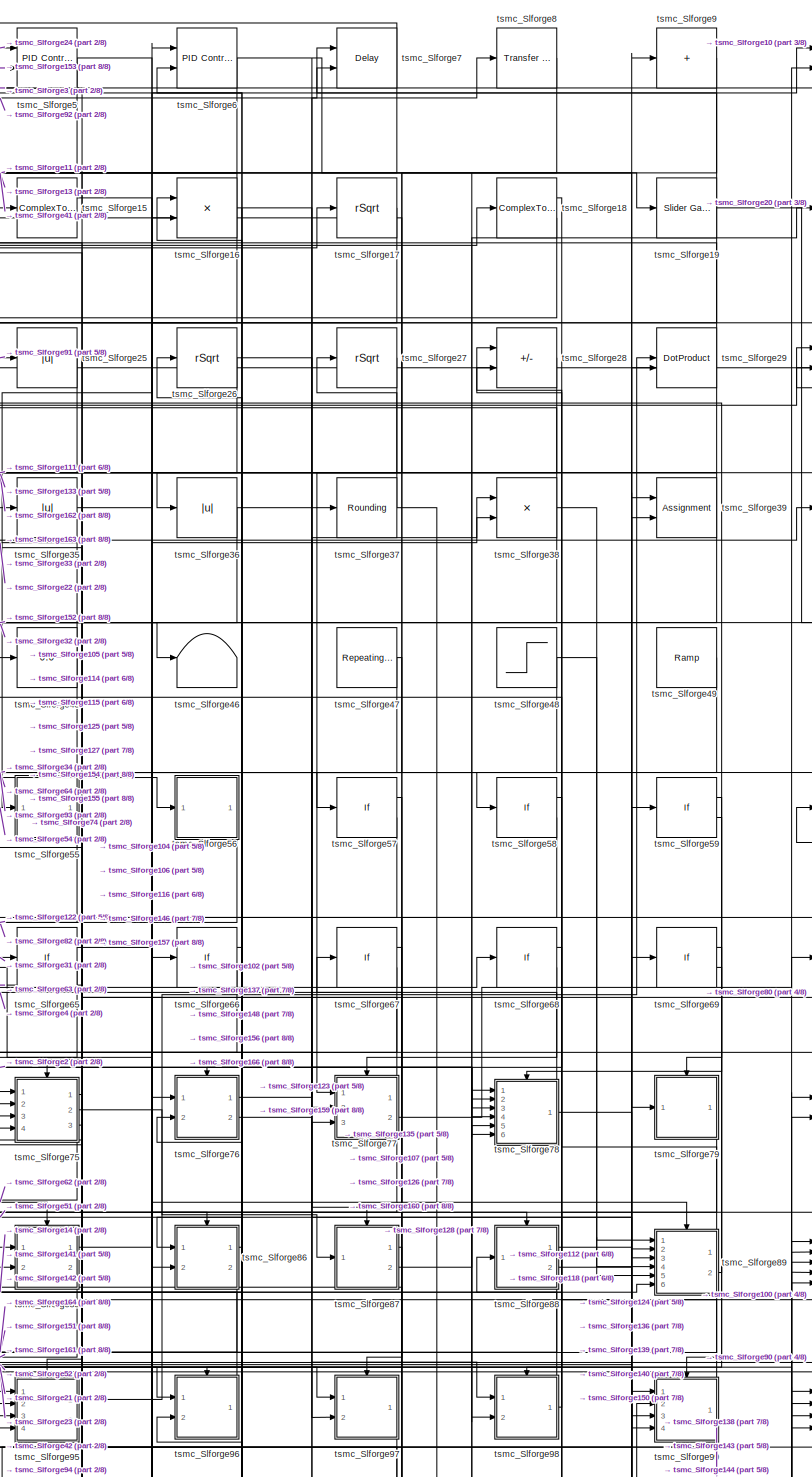
[diagram: root canvas - part 1/8, top center region]
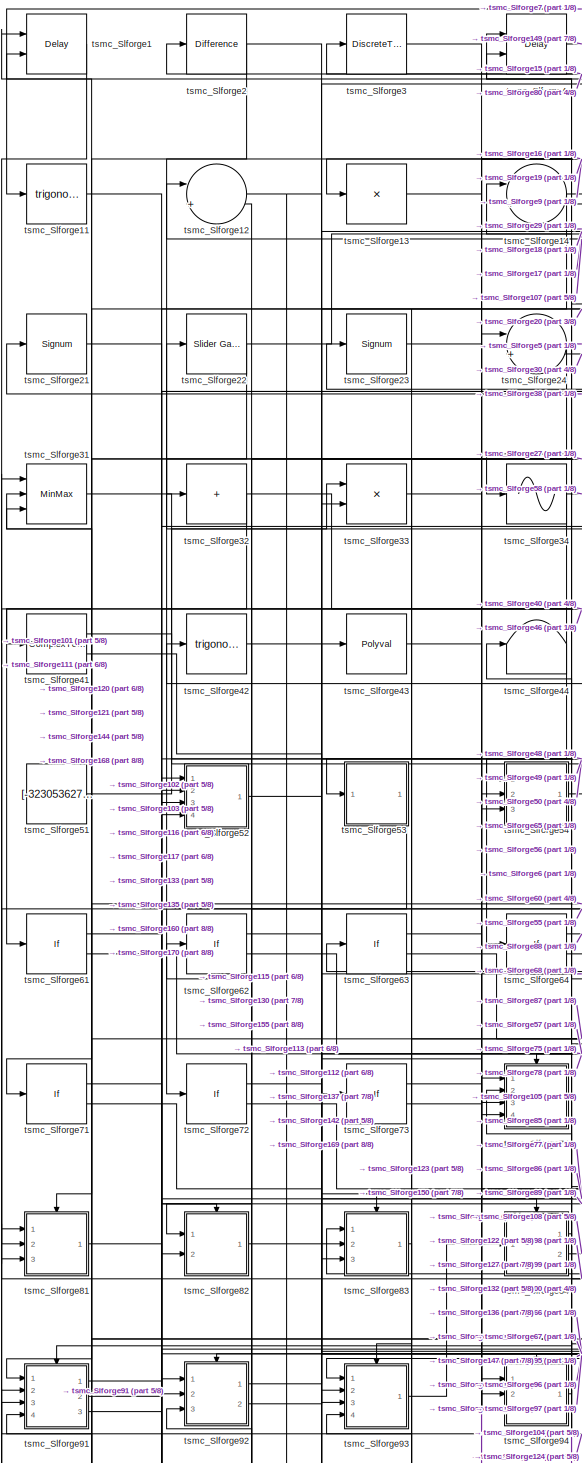
[diagram: root canvas - part 2/8, top left region]
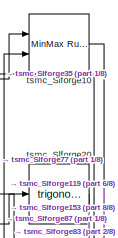
[diagram: root canvas - part 3/8, top right region]
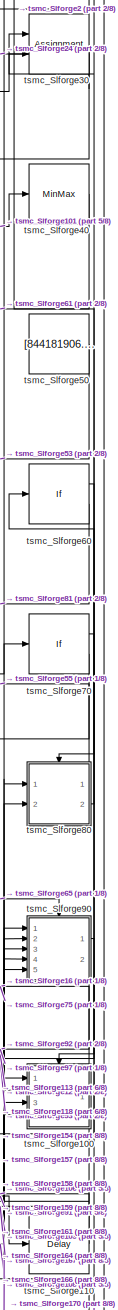
[diagram: root canvas - part 4/8, middle right region]
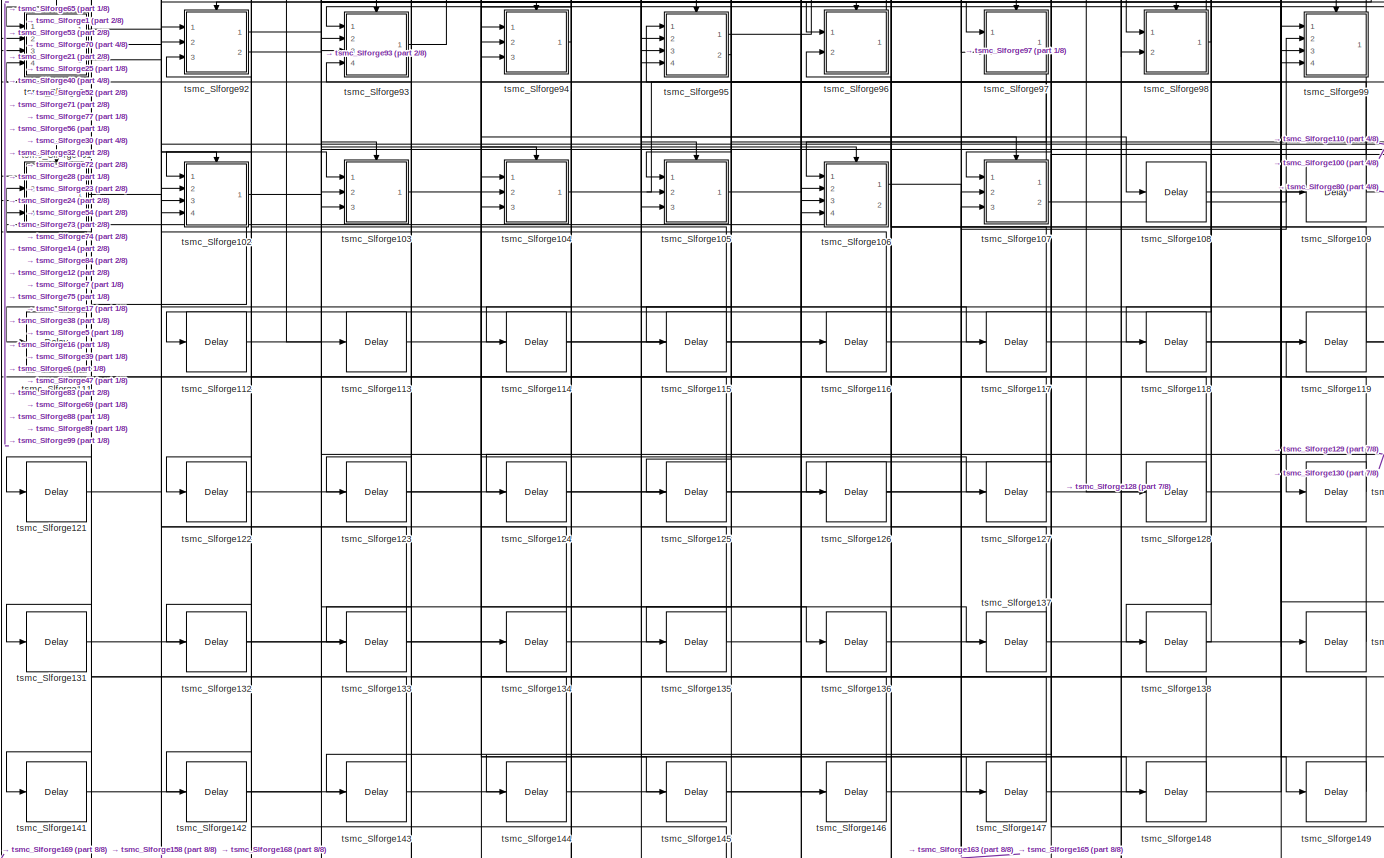
[diagram: root canvas - part 5/8, full width, bottom band]
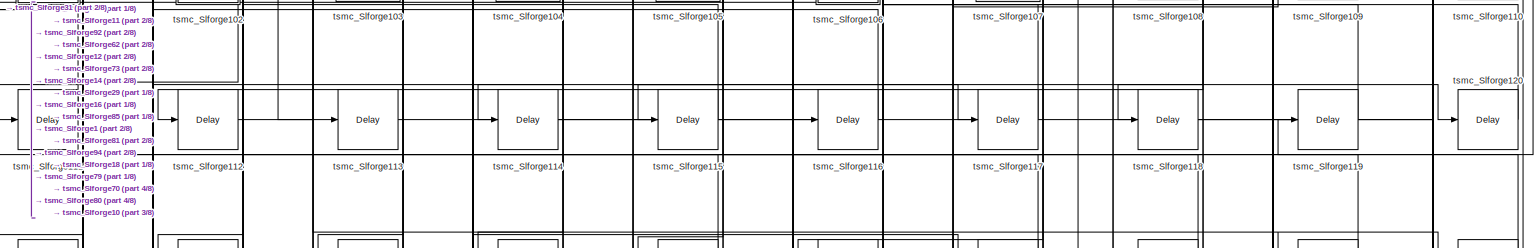
[diagram: root canvas - part 6/8, full width, bottom band]
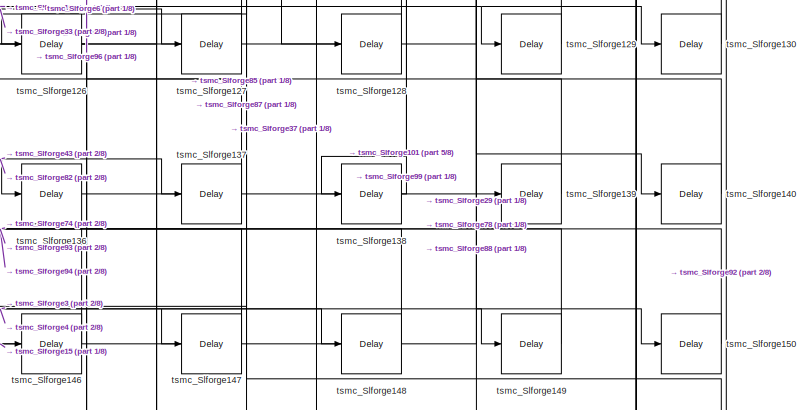
[diagram: root canvas - part 7/8, bottom right region]
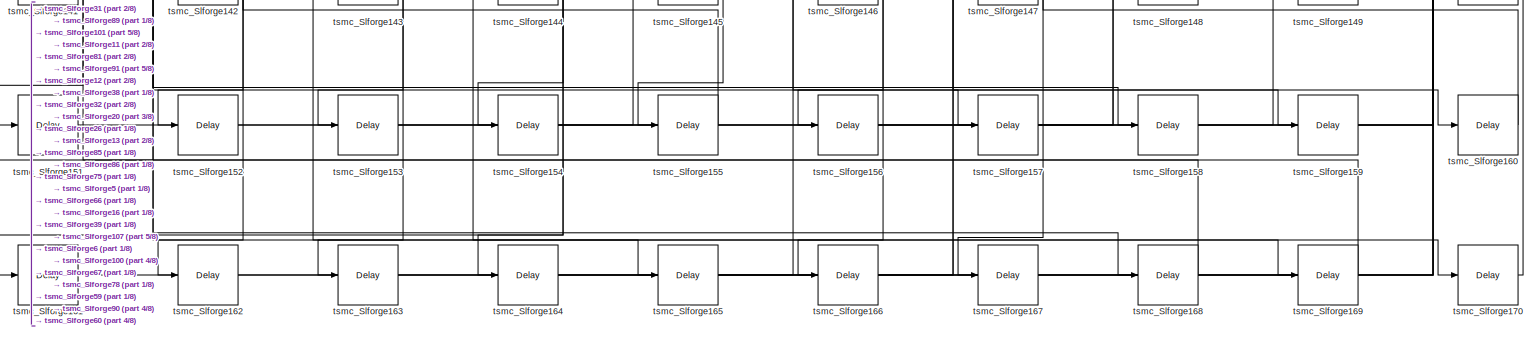
[diagram: root canvas - part 8/8, full width, bottom band]
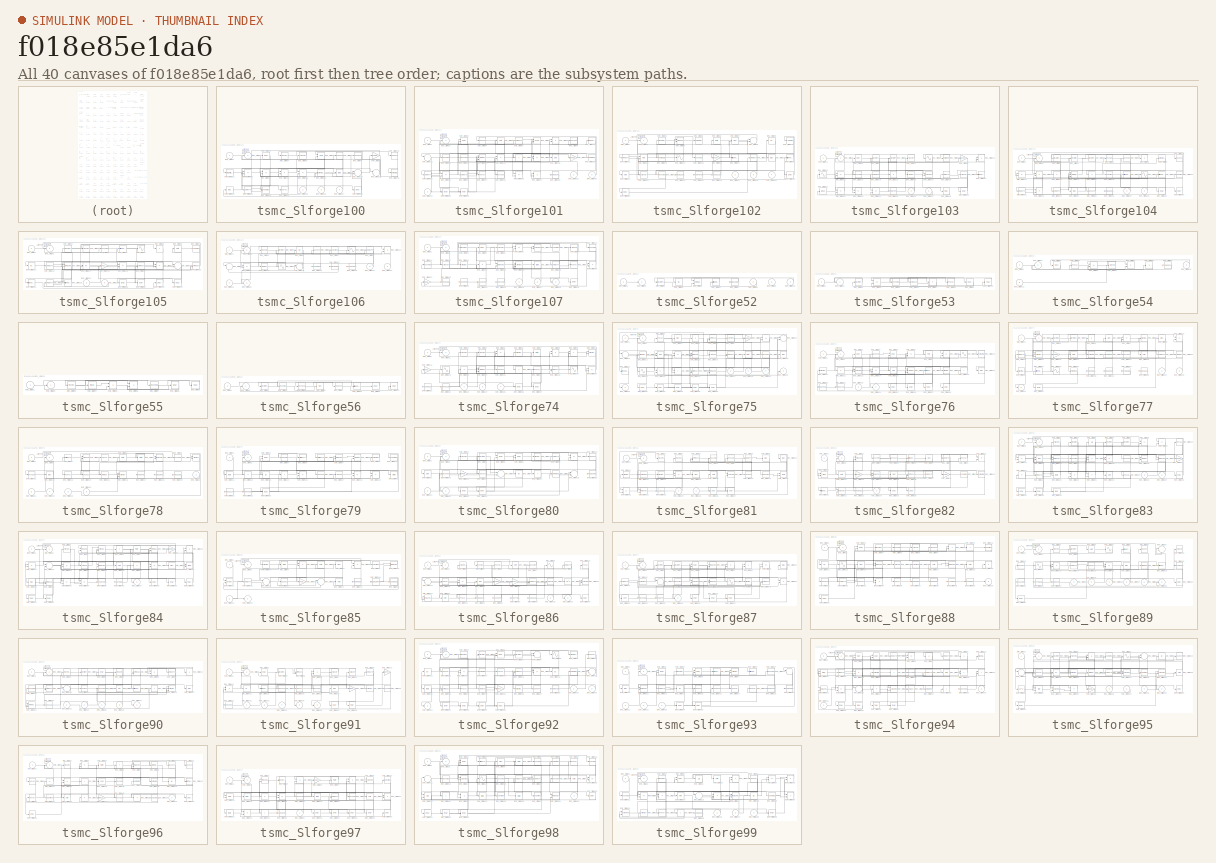
[diagram: thumbnail index - all 40 canvases of the model, root first then tree order]
MODEL slx_f018e85e1da6
KIND model
CONFIG AbsTol = auto
CONFIG EnableMultiTasking = off
CONFIG FixedStep = auto
CONFIG MaxStep = auto
CONFIG MinStep = auto
CONFIG RelTol = 1e-3
CONFIG SampleTimeConstraint = Unconstrained
CONFIG SolverName = VariableStepAuto
CONFIG StartTime = 0.0
CONFIG StopTime = 10.0
BLOCK [Delay] tsmc_Slforge1
  InputPortMap = u0,e6
  Ports = [2, 1]
  SampleTime = 1
  ShowEnablePort = on
BLOCK [Reference] tsmc_Slforge10  REF=simulink/Math
Operations/MinMax
Running
Resettable
  Ports = [2, 1]
  SourceBlock = simulink/Math\nOperations/MinMax\nRunning\nResettable
  SourceProductBaseCode = SL
  SourceType = MinMax Running Resettable
BLOCK [SubSystem] tsmc_Slforge100
  Ports = [4, 1, 0, 0, 0, 0, 0, 1]
  RequestExecContextInheritance = off
  TreatAsAtomicUnit = on
BLOCK [ActionPort] tsmc_Slforge100/Action Port
  ActionPortLabel = if { }
BLOCK [Inport] tsmc_Slforge100/tsmc_Slforge1
BLOCK [Squeeze] tsmc_Slforge100/tsmc_Slforge10
BLOCK [Math] tsmc_Slforge100/tsmc_Slforge11
  Operator = magnitude^2
  Ports = [1, 1]
  SignedPower = on
BLOCK [Sum] tsmc_Slforge100/tsmc_Slforge12
  IconShape = rectangular
  Inputs = +-
  Ports = [2, 1]
BLOCK [Sum] tsmc_Slforge100/tsmc_Slforge13
  IconShape = rectangular
  Inputs = --
  Ports = [2, 1]
BLOCK [Product] tsmc_Slforge100/tsmc_Slforge14
  Ports = [2, 1]
BLOCK [Sum] tsmc_Slforge100/tsmc_Slforge15
  IconShape = rectangular
  Inputs = +-
  Ports = [2, 1]
BLOCK [Reference] tsmc_Slforge100/tsmc_Slforge16  REF=simulink/Math
Operations/Slider
Gain
  Ports = [1, 1]
  SourceBlock = simulink/Math\nOperations/Slider\nGain
  SourceProductBaseCode = SL
  SourceType = Slider Gain
BLOCK [Sqrt] tsmc_Slforge100/tsmc_Slforge17
  AlgorithmType = Newton-Raphson
  Operator = rSqrt
BLOCK [Sum] tsmc_Slforge100/tsmc_Slforge18
  Inputs = |++
  Ports = [2, 1]
BLOCK [Sum] tsmc_Slforge100/tsmc_Slforge19
  Inputs = |++
  Ports = [2, 1]
BLOCK [Outport] tsmc_Slforge100/tsmc_Slforge2
  VectorParamsAs1DForOutWhenUnconnected = off
BLOCK [PermuteDimensions] tsmc_Slforge100/tsmc_Slforge20
BLOCK [Bias] tsmc_Slforge100/tsmc_Slforge21
  Bias = [40352577.982975]
  SaturateOnIntegerOverflow = off
BLOCK [ComplexToRealImag] tsmc_Slforge100/tsmc_Slforge22
  Ports = [1, 2]
BLOCK [UnaryMinus] tsmc_Slforge100/tsmc_Slforge23
BLOCK [Polyval] tsmc_Slforge100/tsmc_Slforge24
  Coefs = [ +2.081618890e-019, -1.441693666e-014, +4.719686976e-010, -8.536869453e-006, +1.621573104e-001, -8.087801117e+001 ]
BLOCK [Inport] tsmc_Slforge100/tsmc_Slforge25
  Port = 2
BLOCK [Inport] tsmc_Slforge100/tsmc_Slforge26
  Port = 3
BLOCK [Inport] tsmc_Slforge100/tsmc_Slforge27
  Port = 4
BLOCK [Delay] tsmc_Slforge100/tsmc_Slforge28
  InputPortMap = u0
  Ports = [1, 1]
BLOCK [Delay] tsmc_Slforge100/tsmc_Slforge3
  InputPortMap = u0
  Ports = [1, 1]
BLOCK [Reference] tsmc_Slforge100/tsmc_Slforge4  REF=simulink/Discrete/Transfer Fcn
Real Zero
  Ports = [1, 1]
  SourceBlock = simulink/Discrete/Transfer Fcn\nReal Zero
  SourceProductBaseCode = SL
  SourceType = Transfer Fcn Real Zero
BLOCK [Reference] tsmc_Slforge100/tsmc_Slforge5  REF=simulink/Discrete/Transfer Fcn
First Order
  Ports = [1, 1]
  SourceBlock = simulink/Discrete/Transfer Fcn\nFirst Order
  SourceProductBaseCode = SL
  SourceType = First Order Transfer Fcn
BLOCK [Math] tsmc_Slforge100/tsmc_Slforge6
  Operator = pow
  Ports = [2, 1]
  SignedPower = on
BLOCK [Squeeze] tsmc_Slforge100/tsmc_Slforge7
BLOCK [Squeeze] tsmc_Slforge100/tsmc_Slforge8
BLOCK [Gain] tsmc_Slforge100/tsmc_Slforge9
  Gain = [571889699.729792]
BLOCK [SubSystem] tsmc_Slforge101
  Ports = [4, 1, 0, 0, 0, 0, 0, 1]
  RequestExecContextInheritance = off
  TreatAsAtomicUnit = on
BLOCK [ActionPort] tsmc_Slforge101/Action Port
  ActionPortLabel = else { }
BLOCK [Inport] tsmc_Slforge101/tsmc_Slforge1
BLOCK [Math] tsmc_Slforge101/tsmc_Slforge10
  Operator = transpose
  Ports = [1, 1]
  SignedPower = on
BLOCK [Sum] tsmc_Slforge101/tsmc_Slforge11
  Inputs = |++
  Ports = [2, 1]
BLOCK [Rounding] tsmc_Slforge101/tsmc_Slforge12
BLOCK [Rounding] tsmc_Slforge101/tsmc_Slforge13
BLOCK [MinMax] tsmc_Slforge101/tsmc_Slforge14
  Inputs = 3
  Ports = [3, 1]
BLOCK [Product] tsmc_Slforge101/tsmc_Slforge15
  Ports = [2, 1]
BLOCK [Sum] tsmc_Slforge101/tsmc_Slforge16
  IconShape = rectangular
  Inputs = +
  Ports = [1, 1]
BLOCK [Sum] tsmc_Slforge101/tsmc_Slforge17
  IconShape = rectangular
  Inputs = +-
  Ports = [2, 1]
BLOCK [Sqrt] tsmc_Slforge101/tsmc_Slforge18
BLOCK [Gain] tsmc_Slforge101/tsmc_Slforge19
  Gain = [834462822.156965]
BLOCK [Outport] tsmc_Slforge101/tsmc_Slforge2
  VectorParamsAs1DForOutWhenUnconnected = off
BLOCK [PermuteDimensions] tsmc_Slforge101/tsmc_Slforge20
BLOCK [ComplexToMagnitudeAngle] tsmc_Slforge101/tsmc_Slforge21
  Ports = [1, 2]
BLOCK [Sum] tsmc_Slforge101/tsmc_Slforge22
  IconShape = rectangular
  Inputs = +-
  Ports = [2, 1]
BLOCK [ComplexToRealImag] tsmc_Slforge101/tsmc_Slforge23
  Ports = [1, 2]
BLOCK [Polyval] tsmc_Slforge101/tsmc_Slforge24
  Coefs = [ +2.081618890e-019, -1.441693666e-014, +4.719686976e-010, -8.536869453e-006, +1.621573104e-001, -8.087801117e+001 ]
BLOCK [Reshape] tsmc_Slforge101/tsmc_Slforge25
  Ports = [1, 1]
BLOCK [Sum] tsmc_Slforge101/tsmc_Slforge26
  IconShape = rectangular
  Inputs = +-
  Ports = [2, 1]
BLOCK [Product] tsmc_Slforge101/tsmc_Slforge27
  Inputs = **
  Ports = [2, 1]
BLOCK [Constant] tsmc_Slforge101/tsmc_Slforge28
  SampleTime = 1
  Value = [62993914.049214]
BLOCK [Inport] tsmc_Slforge101/tsmc_Slforge29
  Port = 2
BLOCK [Delay] tsmc_Slforge101/tsmc_Slforge3
  InputPortMap = u0,e6
  Ports = [2, 1]
  ShowEnablePort = on
BLOCK [Inport] tsmc_Slforge101/tsmc_Slforge30
  Port = 3
BLOCK [Inport] tsmc_Slforge101/tsmc_Slforge31
  Port = 4
BLOCK [Delay] tsmc_Slforge101/tsmc_Slforge32
  InputPortMap = u0
  Ports = [1, 1]
BLOCK [Delay] tsmc_Slforge101/tsmc_Slforge33
  InputPortMap = u0
  Ports = [1, 1]
BLOCK [Squeeze] tsmc_Slforge101/tsmc_Slforge4
BLOCK [Sqrt] tsmc_Slforge101/tsmc_Slforge5
BLOCK [ComplexToMagnitudeAngle] tsmc_Slforge101/tsmc_Slforge6
  Ports = [1, 2]
BLOCK [Math] tsmc_Slforge101/tsmc_Slforge7
  Operator = hypot
  Ports = [2, 1]
  SignedPower = on
BLOCK [Product] tsmc_Slforge101/tsmc_Slforge8
  Ports = [2, 1]
BLOCK [Reshape] tsmc_Slforge101/tsmc_Slforge9
  Ports = [1, 1]
BLOCK [SubSystem] tsmc_Slforge102
  Ports = [4, 1, 0, 0, 0, 0, 0, 1]
  RequestExecContextInheritance = off
  TreatAsAtomicUnit = on
BLOCK [ActionPort] tsmc_Slforge102/Action Port
  ActionPortLabel = if { }
BLOCK [Inport] tsmc_Slforge102/tsmc_Slforge1
BLOCK [Math] tsmc_Slforge102/tsmc_Slforge10
  Operator = square
  Ports = [1, 1]
  SignedPower = on
BLOCK [ComplexToMagnitudeAngle] tsmc_Slforge102/tsmc_Slforge11
  Ports = [1, 2]
BLOCK [Math] tsmc_Slforge102/tsmc_Slforge12
  Operator = rem
  Ports = [2, 1]
  SignedPower = on
BLOCK [PermuteDimensions] tsmc_Slforge102/tsmc_Slforge13
BLOCK [Sin] tsmc_Slforge102/tsmc_Slforge14
  Ports = [1, 1]
  SampleTime = 0
  TimeSource = Use external signal
BLOCK [Rounding] tsmc_Slforge102/tsmc_Slforge15
BLOCK [Gain] tsmc_Slforge102/tsmc_Slforge16
  Gain = [457377543.752378]
BLOCK [Trigonometry] tsmc_Slforge102/tsmc_Slforge17
  Ports = [1, 1]
BLOCK [ComplexToRealImag] tsmc_Slforge102/tsmc_Slforge18
  Ports = [1, 2]
BLOCK [Bias] tsmc_Slforge102/tsmc_Slforge19
  Bias = [580814701.517795]
  SaturateOnIntegerOverflow = off
BLOCK [Outport] tsmc_Slforge102/tsmc_Slforge2
  VectorParamsAs1DForOutWhenUnconnected = off
BLOCK [Trigonometry] tsmc_Slforge102/tsmc_Slforge20
  Ports = [1, 1]
BLOCK [Sqrt] tsmc_Slforge102/tsmc_Slforge21
BLOCK [Signum] tsmc_Slforge102/tsmc_Slforge22
BLOCK [Rounding] tsmc_Slforge102/tsmc_Slforge23
BLOCK [Constant] tsmc_Slforge102/tsmc_Slforge24
  SampleTime = 1
  Value = [-908182238.139109]
BLOCK [Constant] tsmc_Slforge102/tsmc_Slforge25
  SampleTime = 1
  Value = [753964543.628307]
BLOCK [Constant] tsmc_Slforge102/tsmc_Slforge26
  SampleTime = 1
  Value = [112633132.955301]
BLOCK [Inport] tsmc_Slforge102/tsmc_Slforge27
  Port = 2
BLOCK [Inport] tsmc_Slforge102/tsmc_Slforge28
  Port = 3
BLOCK [Inport] tsmc_Slforge102/tsmc_Slforge29
  Port = 4
BLOCK [DiscreteFilter] tsmc_Slforge102/tsmc_Slforge3
  InputPortMap = u0
  Ports = [1, 1]
BLOCK [Delay] tsmc_Slforge102/tsmc_Slforge30
  InputPortMap = u0
  Ports = [1, 1]
BLOCK [Delay] tsmc_Slforge102/tsmc_Slforge31
  InputPortMap = u0
  Ports = [1, 1]
BLOCK [Reference] tsmc_Slforge102/tsmc_Slforge4  REF=simulink/Continuous/PID Controller (2DOF)
  Ports = [2, 1]
  SourceBlock = simulink/Continuous/PID Controller (2DOF)
  SourceProductBaseCode = SL
  SourceType = PID 2dof
BLOCK [PermuteDimensions] tsmc_Slforge102/tsmc_Slforge5
BLOCK [Sqrt] tsmc_Slforge102/tsmc_Slforge6
  AlgorithmType = Newton-Raphson
  Operator = rSqrt
BLOCK [Bias] tsmc_Slforge102/tsmc_Slforge7
  Bias = [38937798.233369]
  SaturateOnIntegerOverflow = off
BLOCK [Sum] tsmc_Slforge102/tsmc_Slforge8
  Inputs = |++
  Ports = [2, 1]
BLOCK [Abs] tsmc_Slforge102/tsmc_Slforge9
  SaturateOnIntegerOverflow = off
BLOCK [SubSystem] tsmc_Slforge103
  Ports = [3, 1, 0, 0, 0, 0, 0, 1]
  RequestExecContextInheritance = off
  TreatAsAtomicUnit = on
BLOCK [ActionPort] tsmc_Slforge103/Action Port
  ActionPortLabel = else { }
BLOCK [Inport] tsmc_Slforge103/tsmc_Slforge1
BLOCK [Product] tsmc_Slforge103/tsmc_Slforge10
  Ports = [2, 1]
BLOCK [Sin] tsmc_Slforge103/tsmc_Slforge11
  Ports = [1, 1]
  SampleTime = 0
  TimeSource = Use external signal
BLOCK [Sum] tsmc_Slforge103/tsmc_Slforge12
  IconShape = rectangular
  Inputs = +-
  Ports = [2, 1]
BLOCK [Rounding] tsmc_Slforge103/tsmc_Slforge13
BLOCK [PermuteDimensions] tsmc_Slforge103/tsmc_Slforge14
BLOCK [Product] tsmc_Slforge103/tsmc_Slforge15
  Inputs = *
  Ports = [1, 1]
BLOCK [MinMax] tsmc_Slforge103/tsmc_Slforge16
  Function = max
  Ports = [1, 1]
BLOCK [Assignment] tsmc_Slforge103/tsmc_Slforge17
  DiagnosticForDimensions = Warning
  IndexOptions = Index vector (dialog)
  Indices = 1
  OutputSizes = 1
  Ports = [2, 1]
BLOCK [ComplexToRealImag] tsmc_Slforge103/tsmc_Slforge18
  Ports = [1, 2]
BLOCK [Signum] tsmc_Slforge103/tsmc_Slforge19
BLOCK [Outport] tsmc_Slforge103/tsmc_Slforge2
  VectorParamsAs1DForOutWhenUnconnected = off
BLOCK [Trigonometry] tsmc_Slforge103/tsmc_Slforge20
  Ports = [1, 1]
BLOCK [Math] tsmc_Slforge103/tsmc_Slforge21
  Operator = log10
  Ports = [1, 1]
  SignedPower = on
BLOCK [Sum] tsmc_Slforge103/tsmc_Slforge22
  IconShape = rectangular
  Inputs = --
  Ports = [2, 1]
BLOCK [Sum] tsmc_Slforge103/tsmc_Slforge23
  IconShape = rectangular
  Inputs = +-
  Ports = [2, 1]
BLOCK [Sum] tsmc_Slforge103/tsmc_Slforge24
  IconShape = rectangular
  Inputs = +-
  Ports = [2, 1]
BLOCK [Constant] tsmc_Slforge103/tsmc_Slforge25
  SampleTime = 1
  Value = [803857343.460681]
BLOCK [Inport] tsmc_Slforge103/tsmc_Slforge26
  Port = 2
BLOCK [Inport] tsmc_Slforge103/tsmc_Slforge27
  Port = 3
BLOCK [Delay] tsmc_Slforge103/tsmc_Slforge28
  InputPortMap = u0
  Ports = [1, 1]
BLOCK [Delay] tsmc_Slforge103/tsmc_Slforge29
  InputPortMap = u0
  Ports = [1, 1]
BLOCK [Delay] tsmc_Slforge103/tsmc_Slforge3
  InputPortMap = u0
  Ports = [1, 1]
BLOCK [DiscreteStateSpace] tsmc_Slforge103/tsmc_Slforge4
  SampleTime = -1
BLOCK [DiscreteFilter] tsmc_Slforge103/tsmc_Slforge5
  InputPortMap = u0
  Ports = [1, 1]
BLOCK [Reference] tsmc_Slforge103/tsmc_Slforge6  REF=simulink/Discrete/Transfer Fcn
First Order
  Ports = [1, 1]
  SourceBlock = simulink/Discrete/Transfer Fcn\nFirst Order
  SourceProductBaseCode = SL
  SourceType = First Order Transfer Fcn
BLOCK [Sin] tsmc_Slforge103/tsmc_Slforge7
  Ports = [1, 1]
  SampleTime = 0
  TimeSource = Use external signal
BLOCK [PermuteDimensions] tsmc_Slforge103/tsmc_Slforge8
BLOCK [Gain] tsmc_Slforge103/tsmc_Slforge9
  Gain = [-816431654.639215]
BLOCK [SubSystem] tsmc_Slforge104
  Ports = [3, 1, 0, 0, 0, 0, 0, 1]
  RequestExecContextInheritance = off
  TreatAsAtomicUnit = on
BLOCK [ActionPort] tsmc_Slforge104/Action Port
  ActionPortLabel = if { }
BLOCK [Inport] tsmc_Slforge104/tsmc_Slforge1
BLOCK [Squeeze] tsmc_Slforge104/tsmc_Slforge10
BLOCK [Sum] tsmc_Slforge104/tsmc_Slforge11
  IconShape = rectangular
  Inputs = +-
  Ports = [2, 1]
BLOCK [Product] tsmc_Slforge104/tsmc_Slforge12
  Inputs = **
  Ports = [2, 1]
BLOCK [Product] tsmc_Slforge104/tsmc_Slforge13
  Inputs = *
  Ports = [1, 1]
BLOCK [MinMax] tsmc_Slforge104/tsmc_Slforge14
  Inputs = 3
  Ports = [3, 1]
BLOCK [Product] tsmc_Slforge104/tsmc_Slforge15
  Inputs = *
  Ports = [1, 1]
BLOCK [UnaryMinus] tsmc_Slforge104/tsmc_Slforge16
BLOCK [Trigonometry] tsmc_Slforge104/tsmc_Slforge17
  Ports = [1, 1]
BLOCK [Sin] tsmc_Slforge104/tsmc_Slforge18
  Ports = [1, 1]
  SampleTime = 0
  TimeSource = Use external signal
BLOCK [Trigonometry] tsmc_Slforge104/tsmc_Slforge19
  Ports = [1, 1]
BLOCK [Outport] tsmc_Slforge104/tsmc_Slforge2
  VectorParamsAs1DForOutWhenUnconnected = off
BLOCK [UnaryMinus] tsmc_Slforge104/tsmc_Slforge20
BLOCK [ComplexToRealImag] tsmc_Slforge104/tsmc_Slforge21
  Ports = [1, 2]
BLOCK [Product] tsmc_Slforge104/tsmc_Slforge22
  Inputs = **
  Ports = [2, 1]
BLOCK [ComplexToMagnitudeAngle] tsmc_Slforge104/tsmc_Slforge23
  Ports = [1, 2]
BLOCK [Bias] tsmc_Slforge104/tsmc_Slforge24
  Bias = [471750109.876930]
  SaturateOnIntegerOverflow = off
BLOCK [Squeeze] tsmc_Slforge104/tsmc_Slforge25
BLOCK [Constant] tsmc_Slforge104/tsmc_Slforge26
  SampleTime = 1
  Value = [328866239.654391]
BLOCK [Inport] tsmc_Slforge104/tsmc_Slforge27
  Port = 2
BLOCK [Inport] tsmc_Slforge104/tsmc_Slforge28
  Port = 3
BLOCK [Delay] tsmc_Slforge104/tsmc_Slforge29
  InputPortMap = u0
  Ports = [1, 1]
BLOCK [DiscreteStateSpace] tsmc_Slforge104/tsmc_Slforge3
  SampleTime = -1
BLOCK [Delay] tsmc_Slforge104/tsmc_Slforge30
  InputPortMap = u0
  Ports = [1, 1]
BLOCK [DiscreteFir] tsmc_Slforge104/tsmc_Slforge4
  InputPortMap = u0
  OutputPortMap = o0
  Ports = [1, 1]
BLOCK [DiscreteFir] tsmc_Slforge104/tsmc_Slforge5
  InputPortMap = u0
  OutputPortMap = o0
  Ports = [1, 1]
BLOCK [Reshape] tsmc_Slforge104/tsmc_Slforge6
  Ports = [1, 1]
BLOCK [Reshape] tsmc_Slforge104/tsmc_Slforge7
  Ports = [1, 1]
BLOCK [Product] tsmc_Slforge104/tsmc_Slforge8
  Inputs = *
  Ports = [1, 1]
BLOCK [Reference] tsmc_Slforge104/tsmc_Slforge9  REF=simulink/Math
Operations/Slider
Gain
  Ports = [1, 1]
  SourceBlock = simulink/Math\nOperations/Slider\nGain
  SourceProductBaseCode = SL
  SourceType = Slider Gain
BLOCK [SubSystem] tsmc_Slforge105
  Ports = [3, 1, 0, 0, 0, 0, 0, 1]
  RequestExecContextInheritance = off
  TreatAsAtomicUnit = on
BLOCK [ActionPort] tsmc_Slforge105/Action Port
  ActionPortLabel = else { }
BLOCK [Inport] tsmc_Slforge105/tsmc_Slforge1
BLOCK [UnaryMinus] tsmc_Slforge105/tsmc_Slforge10
BLOCK [Abs] tsmc_Slforge105/tsmc_Slforge11
  SaturateOnIntegerOverflow = off
BLOCK [ComplexToMagnitudeAngle] tsmc_Slforge105/tsmc_Slforge12
  Ports = [1, 2]
BLOCK [Reference] tsmc_Slforge105/tsmc_Slforge13  REF=simulink/Math
Operations/MinMax
Running
Resettable
  Ports = [2, 1]
  SourceBlock = simulink/Math\nOperations/MinMax\nRunning\nResettable
  SourceProductBaseCode = SL
  SourceType = MinMax Running Resettable
BLOCK [Abs] tsmc_Slforge105/tsmc_Slforge14
  SaturateOnIntegerOverflow = off
BLOCK [Gain] tsmc_Slforge105/tsmc_Slforge15
  Gain = [-434110884.143707]
BLOCK [Sum] tsmc_Slforge105/tsmc_Slforge16
  IconShape = rectangular
  Inputs = +-
  Ports = [2, 1]
BLOCK [DotProduct] tsmc_Slforge105/tsmc_Slforge17
  OutDataTypeStr = Inherit: Inherit via internal rule
BLOCK [Product] tsmc_Slforge105/tsmc_Slforge18
  Inputs = **
  Ports = [2, 1]
BLOCK [Sum] tsmc_Slforge105/tsmc_Slforge19
  Inputs = |++
  Ports = [2, 1]
BLOCK [Outport] tsmc_Slforge105/tsmc_Slforge2
  VectorParamsAs1DForOutWhenUnconnected = off
BLOCK [DotProduct] tsmc_Slforge105/tsmc_Slforge20
  OutDataTypeStr = Inherit: Inherit via internal rule
BLOCK [Trigonometry] tsmc_Slforge105/tsmc_Slforge21
  Ports = [1, 1]
BLOCK [ComplexToMagnitudeAngle] tsmc_Slforge105/tsmc_Slforge22
  Ports = [1, 2]
BLOCK [Trigonometry] tsmc_Slforge105/tsmc_Slforge23
  Ports = [1, 1]
BLOCK [Inport] tsmc_Slforge105/tsmc_Slforge24
  Port = 2
BLOCK [Inport] tsmc_Slforge105/tsmc_Slforge25
  Port = 3
BLOCK [Delay] tsmc_Slforge105/tsmc_Slforge26
  InputPortMap = u0
  Ports = [1, 1]
BLOCK [Delay] tsmc_Slforge105/tsmc_Slforge27
  InputPortMap = u0
  Ports = [1, 1]
BLOCK [Delay] tsmc_Slforge105/tsmc_Slforge28
  InputPortMap = u0
  Ports = [1, 1]
BLOCK [Delay] tsmc_Slforge105/tsmc_Slforge29
  InputPortMap = u0
  Ports = [1, 1]
BLOCK [DiscreteFir] tsmc_Slforge105/tsmc_Slforge3
  InputPortMap = u0
  OutputPortMap = o0
  Ports = [1, 1]
BLOCK [Reference] tsmc_Slforge105/tsmc_Slforge4  REF=simulink/Discrete/Transfer Fcn
Lead or Lag
  Ports = [1, 1]
  SourceBlock = simulink/Discrete/Transfer Fcn\nLead or Lag
  SourceProductBaseCode = SL
  SourceType = Lead or Lag Compensator
BLOCK [Rounding] tsmc_Slforge105/tsmc_Slforge5
BLOCK [Trigonometry] tsmc_Slforge105/tsmc_Slforge6
  Ports = [1, 1]
BLOCK [Sin] tsmc_Slforge105/tsmc_Slforge7
  Ports = [1, 1]
  SampleTime = 0
  TimeSource = Use external signal
BLOCK [Sum] tsmc_Slforge105/tsmc_Slforge8
  IconShape = rectangular
  Inputs = +
  Ports = [1, 1]
BLOCK [Sqrt] tsmc_Slforge105/tsmc_Slforge9
BLOCK [SubSystem] tsmc_Slforge106
  Ports = [4, 2, 0, 0, 0, 0, 0, 1]
  RequestExecContextInheritance = off
  TreatAsAtomicUnit = on
BLOCK [ActionPort] tsmc_Slforge106/Action Port
  ActionPortLabel = if { }
BLOCK [Inport] tsmc_Slforge106/tsmc_Slforge1
BLOCK [Product] tsmc_Slforge106/tsmc_Slforge10
  Inputs = **
  Ports = [2, 1]
BLOCK [Sum] tsmc_Slforge106/tsmc_Slforge11
  Inputs = |++
  Ports = [2, 1]
BLOCK [Sum] tsmc_Slforge106/tsmc_Slforge12
  IconShape = rectangular
  Inputs = -+
  Ports = [2, 1]
BLOCK [MinMax] tsmc_Slforge106/tsmc_Slforge13
  Ports = [1, 1]
BLOCK [Sin] tsmc_Slforge106/tsmc_Slforge14
  Ports = [1, 1]
  SampleTime = 0
  TimeSource = Use external signal
BLOCK [Sum] tsmc_Slforge106/tsmc_Slforge15
  Inputs = |++
  Ports = [2, 1]
BLOCK [Constant] tsmc_Slforge106/tsmc_Slforge16
  SampleTime = 1
  Value = [513793503.182090]
BLOCK [Constant] tsmc_Slforge106/tsmc_Slforge17
  SampleTime = 1
  Value = [948875065.565698]
BLOCK [Constant] tsmc_Slforge106/tsmc_Slforge18
  SampleTime = 1
  Value = [547454489.929457]
BLOCK [Inport] tsmc_Slforge106/tsmc_Slforge19
  Port = 2
BLOCK [Outport] tsmc_Slforge106/tsmc_Slforge2
  VectorParamsAs1DForOutWhenUnconnected = off
BLOCK [Inport] tsmc_Slforge106/tsmc_Slforge20
  Port = 3
BLOCK [Inport] tsmc_Slforge106/tsmc_Slforge21
  Port = 4
BLOCK [Outport] tsmc_Slforge106/tsmc_Slforge22
  Port = 2
  VectorParamsAs1DForOutWhenUnconnected = off
BLOCK [Reference] tsmc_Slforge106/tsmc_Slforge3  REF=simulink/Continuous/PID Controller
  Ports = [1, 1]
  SourceBlock = simulink/Continuous/PID Controller
  SourceProductBaseCode = SL
  SourceType = PID 1dof
BLOCK [DiscreteTransferFcn] tsmc_Slforge106/tsmc_Slforge4
  InputPortMap = u0
  Ports = [1, 1]
BLOCK [UnitDelay] tsmc_Slforge106/tsmc_Slforge5
  HasFrameUpgradeWarning = on
  SampleTime = -1
BLOCK [Squeeze] tsmc_Slforge106/tsmc_Slforge6
BLOCK [UnaryMinus] tsmc_Slforge106/tsmc_Slforge7
BLOCK [Sin] tsmc_Slforge106/tsmc_Slforge8
  Ports = [1, 1]
  SampleTime = 0
  TimeSource = Use external signal
BLOCK [ComplexToMagnitudeAngle] tsmc_Slforge106/tsmc_Slforge9
  Ports = [1, 2]
BLOCK [SubSystem] tsmc_Slforge107
  Ports = [3, 2, 0, 0, 0, 0, 0, 1]
  RequestExecContextInheritance = off
  TreatAsAtomicUnit = on
BLOCK [ActionPort] tsmc_Slforge107/Action Port
  ActionPortLabel = else { }
BLOCK [Inport] tsmc_Slforge107/tsmc_Slforge1
BLOCK [Rounding] tsmc_Slforge107/tsmc_Slforge10
BLOCK [Rounding] tsmc_Slforge107/tsmc_Slforge11
BLOCK [Signum] tsmc_Slforge107/tsmc_Slforge12
BLOCK [MinMax] tsmc_Slforge107/tsmc_Slforge13
  Ports = [1, 1]
BLOCK [Product] tsmc_Slforge107/tsmc_Slforge14
  Inputs = *
  Ports = [1, 1]
BLOCK [Reference] tsmc_Slforge107/tsmc_Slforge15  REF=simulink/Math
Operations/MinMax
Running
Resettable
  Ports = [2, 1]
  SourceBlock = simulink/Math\nOperations/MinMax\nRunning\nResettable
  SourceProductBaseCode = SL
  SourceType = MinMax Running Resettable
BLOCK [MinMax] tsmc_Slforge107/tsmc_Slforge16
  Function = max
  Inputs = 3
  Ports = [3, 1]
BLOCK [Sqrt] tsmc_Slforge107/tsmc_Slforge17
  AlgorithmType = Newton-Raphson
  Operator = rSqrt
BLOCK [ComplexToRealImag] tsmc_Slforge107/tsmc_Slforge18
  Ports = [1, 2]
BLOCK [Polyval] tsmc_Slforge107/tsmc_Slforge19
  Coefs = [ +2.081618890e-019, -1.441693666e-014, +4.719686976e-010, -8.536869453e-006, +1.621573104e-001, -8.087801117e+001 ]
BLOCK [Outport] tsmc_Slforge107/tsmc_Slforge2
  VectorParamsAs1DForOutWhenUnconnected = off
BLOCK [Product] tsmc_Slforge107/tsmc_Slforge20
  Ports = [2, 1]
BLOCK [Gain] tsmc_Slforge107/tsmc_Slforge21
  Gain = [-396150231.679020]
BLOCK [Constant] tsmc_Slforge107/tsmc_Slforge22
  SampleTime = 1
  Value = [-270196089.218416]
BLOCK [Constant] tsmc_Slforge107/tsmc_Slforge23
  SampleTime = 1
  Value = [-775229093.544479]
BLOCK [Constant] tsmc_Slforge107/tsmc_Slforge24
  SampleTime = 1
  Value = [-413126145.957520]
BLOCK [Constant] tsmc_Slforge107/tsmc_Slforge25
  SampleTime = 1
  Value = [369157296.296194]
BLOCK [Inport] tsmc_Slforge107/tsmc_Slforge26
  Port = 2
BLOCK [Inport] tsmc_Slforge107/tsmc_Slforge27
  Port = 3
BLOCK [Outport] tsmc_Slforge107/tsmc_Slforge28
  Port = 2
  VectorParamsAs1DForOutWhenUnconnected = off
BLOCK [Delay] tsmc_Slforge107/tsmc_Slforge29
  InputPortMap = u0
  Ports = [1, 1]
BLOCK [DiscreteZeroPole] tsmc_Slforge107/tsmc_Slforge3
  Gain = 1
  Poles = [0 0.5]
  SampleTime = -1
BLOCK [Delay] tsmc_Slforge107/tsmc_Slforge4
  InputPortMap = u0
  Ports = [1, 1]
BLOCK [Reference] tsmc_Slforge107/tsmc_Slforge5  REF=simulink/Discrete/Transfer Fcn
Real Zero
  Ports = [1, 1]
  SourceBlock = simulink/Discrete/Transfer Fcn\nReal Zero
  SourceProductBaseCode = SL
  SourceType = Transfer Fcn Real Zero
BLOCK [Sum] tsmc_Slforge107/tsmc_Slforge6
  IconShape = rectangular
  Inputs = +-
  Ports = [2, 1]
BLOCK [Assignment] tsmc_Slforge107/tsmc_Slforge7
  DiagnosticForDimensions = Warning
  IndexOptions = Index vector (dialog)
  Indices = 1
  OutputSizes = 1
  Ports = [2, 1]
BLOCK [UnaryMinus] tsmc_Slforge107/tsmc_Slforge8
BLOCK [Signum] tsmc_Slforge107/tsmc_Slforge9
BLOCK [Delay] tsmc_Slforge108
  InputPortMap = u0
  Ports = [1, 1]
  SampleTime = 1
BLOCK [Delay] tsmc_Slforge109
  InputPortMap = u0
  Ports = [1, 1]
  SampleTime = 1
BLOCK [Trigonometry] tsmc_Slforge11
  Ports = [1, 1]
BLOCK [Delay] tsmc_Slforge110
  InputPortMap = u0
  Ports = [1, 1]
  SampleTime = 1
BLOCK [Delay] tsmc_Slforge111
  InputPortMap = u0
  Ports = [1, 1]
  SampleTime = 1
BLOCK [Delay] tsmc_Slforge112
  InputPortMap = u0
  Ports = [1, 1]
  SampleTime = 1
BLOCK [Delay] tsmc_Slforge113
  InputPortMap = u0
  Ports = [1, 1]
  SampleTime = 1
BLOCK [Delay] tsmc_Slforge114
  InputPortMap = u0
  Ports = [1, 1]
  SampleTime = 1
BLOCK [Delay] tsmc_Slforge115
  InputPortMap = u0
  Ports = [1, 1]
  SampleTime = 1
BLOCK [Delay] tsmc_Slforge116
  InputPortMap = u0
  Ports = [1, 1]
  SampleTime = 1
BLOCK [Delay] tsmc_Slforge117
  InputPortMap = u0
  Ports = [1, 1]
  SampleTime = 1
BLOCK [Delay] tsmc_Slforge118
  InputPortMap = u0
  Ports = [1, 1]
  SampleTime = 1
BLOCK [Delay] tsmc_Slforge119
  InputPortMap = u0
  Ports = [1, 1]
  SampleTime = 1
BLOCK [Sum] tsmc_Slforge12
  Inputs = |++
  Ports = [2, 1]
BLOCK [Delay] tsmc_Slforge120
  InputPortMap = u0
  Ports = [1, 1]
  SampleTime = 1
BLOCK [Delay] tsmc_Slforge121
  InputPortMap = u0
  Ports = [1, 1]
  SampleTime = 1
BLOCK [Delay] tsmc_Slforge122
  InputPortMap = u0
  Ports = [1, 1]
  SampleTime = 1
BLOCK [Delay] tsmc_Slforge123
  InputPortMap = u0
  Ports = [1, 1]
  SampleTime = 1
BLOCK [Delay] tsmc_Slforge124
  InputPortMap = u0
  Ports = [1, 1]
  SampleTime = 1
BLOCK [Delay] tsmc_Slforge125
  InputPortMap = u0
  Ports = [1, 1]
  SampleTime = 1
BLOCK [Delay] tsmc_Slforge126
  InputPortMap = u0
  Ports = [1, 1]
  SampleTime = 1
BLOCK [Delay] tsmc_Slforge127
  InputPortMap = u0
  Ports = [1, 1]
  SampleTime = 1
BLOCK [Delay] tsmc_Slforge128
  InputPortMap = u0
  Ports = [1, 1]
  SampleTime = 1
BLOCK [Delay] tsmc_Slforge129
  InputPortMap = u0
  Ports = [1, 1]
  SampleTime = 1
BLOCK [Product] tsmc_Slforge13
  Inputs = *
  Ports = [1, 1]
BLOCK [Delay] tsmc_Slforge130
  InputPortMap = u0
  Ports = [1, 1]
  SampleTime = 1
BLOCK [Delay] tsmc_Slforge131
  InputPortMap = u0
  Ports = [1, 1]
  SampleTime = 1
BLOCK [Delay] tsmc_Slforge132
  InputPortMap = u0
  Ports = [1, 1]
  SampleTime = 1
BLOCK [Delay] tsmc_Slforge133
  InputPortMap = u0
  Ports = [1, 1]
  SampleTime = 1
BLOCK [Delay] tsmc_Slforge134
  InputPortMap = u0
  Ports = [1, 1]
  SampleTime = 1
BLOCK [Delay] tsmc_Slforge135
  InputPortMap = u0
  Ports = [1, 1]
  SampleTime = 1
BLOCK [Delay] tsmc_Slforge136
  InputPortMap = u0
  Ports = [1, 1]
  SampleTime = 1
BLOCK [Delay] tsmc_Slforge137
  InputPortMap = u0
  Ports = [1, 1]
  SampleTime = 1
BLOCK [Delay] tsmc_Slforge138
  InputPortMap = u0
  Ports = [1, 1]
  SampleTime = 1
BLOCK [Delay] tsmc_Slforge139
  InputPortMap = u0
  Ports = [1, 1]
  SampleTime = 1
BLOCK [Sum] tsmc_Slforge14
  Inputs = |++
  Ports = [2, 1]
BLOCK [Delay] tsmc_Slforge140
  InputPortMap = u0
  Ports = [1, 1]
  SampleTime = 1
BLOCK [Delay] tsmc_Slforge141
  InputPortMap = u0
  Ports = [1, 1]
  SampleTime = 1
BLOCK [Delay] tsmc_Slforge142
  InputPortMap = u0
  Ports = [1, 1]
  SampleTime = 1
BLOCK [Delay] tsmc_Slforge143
  InputPortMap = u0
  Ports = [1, 1]
  SampleTime = 1
BLOCK [Delay] tsmc_Slforge144
  InputPortMap = u0
  Ports = [1, 1]
  SampleTime = 1
BLOCK [Delay] tsmc_Slforge145
  InputPortMap = u0
  Ports = [1, 1]
  SampleTime = 1
BLOCK [Delay] tsmc_Slforge146
  InputPortMap = u0
  Ports = [1, 1]
  SampleTime = 1
BLOCK [Delay] tsmc_Slforge147
  InputPortMap = u0
  Ports = [1, 1]
  SampleTime = 1
BLOCK [Delay] tsmc_Slforge148
  InputPortMap = u0
  Ports = [1, 1]
  SampleTime = 1
BLOCK [Delay] tsmc_Slforge149
  InputPortMap = u0
  Ports = [1, 1]
  SampleTime = 1
BLOCK [ComplexToMagnitudeAngle] tsmc_Slforge15
  Ports = [1, 2]
BLOCK [Delay] tsmc_Slforge150
  InputPortMap = u0
  Ports = [1, 1]
  SampleTime = 1
BLOCK [Delay] tsmc_Slforge151
  InputPortMap = u0
  Ports = [1, 1]
  SampleTime = 1
BLOCK [Delay] tsmc_Slforge152
  InputPortMap = u0
  Ports = [1, 1]
  SampleTime = 1
BLOCK [Delay] tsmc_Slforge153
  InputPortMap = u0
  Ports = [1, 1]
  SampleTime = 1
BLOCK [Delay] tsmc_Slforge154
  InputPortMap = u0
  Ports = [1, 1]
  SampleTime = 1
BLOCK [Delay] tsmc_Slforge155
  InputPortMap = u0
  Ports = [1, 1]
  SampleTime = 1
BLOCK [Delay] tsmc_Slforge156
  InputPortMap = u0
  Ports = [1, 1]
  SampleTime = 1
BLOCK [Delay] tsmc_Slforge157
  InputPortMap = u0
  Ports = [1, 1]
  SampleTime = 1
BLOCK [Delay] tsmc_Slforge158
  InputPortMap = u0
  Ports = [1, 1]
  SampleTime = 1
BLOCK [Delay] tsmc_Slforge159
  InputPortMap = u0
  Ports = [1, 1]
  SampleTime = 1
BLOCK [Product] tsmc_Slforge16
  Inputs = **
  Ports = [2, 1]
BLOCK [Delay] tsmc_Slforge160
  InputPortMap = u0
  Ports = [1, 1]
  SampleTime = 1
BLOCK [Delay] tsmc_Slforge161
  InputPortMap = u0
  Ports = [1, 1]
  SampleTime = 1
BLOCK [Delay] tsmc_Slforge162
  InputPortMap = u0
  Ports = [1, 1]
  SampleTime = 1
BLOCK [Delay] tsmc_Slforge163
  InputPortMap = u0
  Ports = [1, 1]
  SampleTime = 1
BLOCK [Delay] tsmc_Slforge164
  InputPortMap = u0
  Ports = [1, 1]
  SampleTime = 1
BLOCK [Delay] tsmc_Slforge165
  InputPortMap = u0
  Ports = [1, 1]
  SampleTime = 1
BLOCK [Delay] tsmc_Slforge166
  InputPortMap = u0
  Ports = [1, 1]
  SampleTime = 1
BLOCK [Delay] tsmc_Slforge167
  InputPortMap = u0
  Ports = [1, 1]
  SampleTime = 1
BLOCK [Delay] tsmc_Slforge168
  InputPortMap = u0
  Ports = [1, 1]
  SampleTime = 1
BLOCK [Delay] tsmc_Slforge169
  InputPortMap = u0
  Ports = [1, 1]
  SampleTime = 1
BLOCK [Sqrt] tsmc_Slforge17
  AlgorithmType = Newton-Raphson
  Operator = rSqrt
BLOCK [Delay] tsmc_Slforge170
  InputPortMap = u0
  Ports = [1, 1]
  SampleTime = 1
BLOCK [ComplexToMagnitudeAngle] tsmc_Slforge18
  Ports = [1, 2]
BLOCK [Reference] tsmc_Slforge19  REF=simulink/Math
Operations/Slider
Gain
  Ports = [1, 1]
  SourceBlock = simulink/Math\nOperations/Slider\nGain
  SourceProductBaseCode = SL
  SourceType = Slider Gain
BLOCK [Reference] tsmc_Slforge2  REF=simulink/Discrete/Difference
  Ports = [1, 1]
  SourceBlock = simulink/Discrete/Difference
  SourceProductBaseCode = SL
  SourceType = Difference
BLOCK [Trigonometry] tsmc_Slforge20
  Ports = [1, 1]
BLOCK [Signum] tsmc_Slforge21
BLOCK [Reference] tsmc_Slforge22  REF=simulink/Math
Operations/Slider
Gain
  Ports = [1, 1]
  SourceBlock = simulink/Math\nOperations/Slider\nGain
  SourceProductBaseCode = SL
  SourceType = Slider Gain
BLOCK [Signum] tsmc_Slforge23
BLOCK [Sum] tsmc_Slforge24
  Inputs = |++
  Ports = [2, 1]
BLOCK [Abs] tsmc_Slforge25
  SaturateOnIntegerOverflow = off
BLOCK [Sqrt] tsmc_Slforge26
  AlgorithmType = Newton-Raphson
  Operator = rSqrt
BLOCK [Sqrt] tsmc_Slforge27
  AlgorithmType = Newton-Raphson
  Operator = rSqrt
BLOCK [Sum] tsmc_Slforge28
  IconShape = rectangular
  Inputs = +-
  Ports = [2, 1]
BLOCK [DotProduct] tsmc_Slforge29
  OutDataTypeStr = Inherit: Inherit via internal rule
BLOCK [DiscreteTransferFcn] tsmc_Slforge3
  InputPortMap = u0
  Ports = [1, 1]
  SampleTime = 1
BLOCK [Assignment] tsmc_Slforge30
  DiagnosticForDimensions = Warning
  IndexOptions = Index vector (dialog)
  Indices = 1
  OutputSizes = 1
  Ports = [2, 1]
BLOCK [MinMax] tsmc_Slforge31
  Function = max
  Inputs = 3
  Ports = [3, 1]
BLOCK [Sum] tsmc_Slforge32
  IconShape = rectangular
  Inputs = +
  Ports = [1, 1]
BLOCK [Product] tsmc_Slforge33
  Inputs = **
  Ports = [2, 1]
BLOCK [Sin] tsmc_Slforge34
  Ports = [1, 1]
  SampleTime = 0
  TimeSource = Use external signal
BLOCK [Abs] tsmc_Slforge35
  SaturateOnIntegerOverflow = off
BLOCK [Abs] tsmc_Slforge36
  SaturateOnIntegerOverflow = off
BLOCK [Rounding] tsmc_Slforge37
BLOCK [Product] tsmc_Slforge38
  Ports = [2, 1]
BLOCK [Assignment] tsmc_Slforge39
  DiagnosticForDimensions = Warning
  IndexOptions = Index vector (dialog)
  Indices = 1
  OutputSizes = 1
  Ports = [2, 1]
BLOCK [Delay] tsmc_Slforge4
  DelayLengthSource = Input port
  InputPortMap = u0,p1
  Ports = [2, 1]
  SampleTime = 1
BLOCK [MinMax] tsmc_Slforge40
  Function = max
  Ports = [1, 1]
BLOCK [ComplexToMagnitudeAngle] tsmc_Slforge41
  Ports = [1, 2]
BLOCK [Trigonometry] tsmc_Slforge42
  Ports = [1, 1]
BLOCK [Polyval] tsmc_Slforge43
  Coefs = [ +2.081618890e-019, -1.441693666e-014, +4.719686976e-010, -8.536869453e-006, +1.621573104e-001, -8.087801117e+001 ]
BLOCK [Terminator] tsmc_Slforge44
BLOCK [Display] tsmc_Slforge45
  Decimation = 1
  Ports = [1]
BLOCK [Terminator] tsmc_Slforge46
BLOCK [Reference] tsmc_Slforge47  REF=simulink/Sources/Repeating
Sequence
Interpolated
  Ports = [0, 1]
  SourceBlock = simulink/Sources/Repeating\nSequence\nInterpolated
  SourceProductBaseCode = SL
  SourceType = Repeating Sequence Interpolated
BLOCK [Step] tsmc_Slforge48
  After = [-716731590.646786]
  Before = [335295422.757427]
  SampleTime = 0
  Time = [25.000000]
BLOCK [Reference] tsmc_Slforge49  REF=simulink/Sources/Ramp
  Ports = [0, 1]
  SourceBlock = simulink/Sources/Ramp
  SourceProductBaseCode = SL
  SourceType = Ramp
BLOCK [Reference] tsmc_Slforge5  REF=slpidlib/PID Controller (2DOF)
  Ports = [2, 1]
  SourceBlock = slpidlib/PID Controller (2DOF)
  SourceProductBaseCode = SL
  SourceType = PID 2dof
BLOCK [Constant] tsmc_Slforge50
  SampleTime = 1
  Value = [844181906.319014]
BLOCK [Constant] tsmc_Slforge51
  SampleTime = 1
  Value = [-323053627.840698]
BLOCK [SubSystem] tsmc_Slforge52
  Ports = [4, 1]
  RequestExecContextInheritance = off
BLOCK [Inport] tsmc_Slforge52/tsmc_Slforge1
BLOCK [Inport] tsmc_Slforge52/tsmc_Slforge10
  Port = 4
BLOCK [Outport] tsmc_Slforge52/tsmc_Slforge2
  VectorParamsAs1DForOutWhenUnconnected = off
BLOCK [DiscreteFir] tsmc_Slforge52/tsmc_Slforge3
  InputPortMap = u0
  OutputPortMap = o0
  Ports = [1, 1]
  SampleTime = 1
BLOCK [Abs] tsmc_Slforge52/tsmc_Slforge4
  SaturateOnIntegerOverflow = off
BLOCK [MinMax] tsmc_Slforge52/tsmc_Slforge5
  Function = max
  Inputs = 2
  Ports = [2, 1]
BLOCK [Trigonometry] tsmc_Slforge52/tsmc_Slforge6
  Ports = [1, 1]
BLOCK [Constant] tsmc_Slforge52/tsmc_Slforge7
  SampleTime = 1
  Value = [-458811386.285586]
BLOCK [Inport] tsmc_Slforge52/tsmc_Slforge8
  Port = 2
BLOCK [Inport] tsmc_Slforge52/tsmc_Slforge9
  Port = 3
BLOCK [SubSystem] tsmc_Slforge53
  Ports = [1, 1]
  RequestExecContextInheritance = off
BLOCK [Inport] tsmc_Slforge53/tsmc_Slforge1
BLOCK [Delay] tsmc_Slforge53/tsmc_Slforge10
  InputPortMap = u0
  Ports = [1, 1]
  SampleTime = 1
BLOCK [Outport] tsmc_Slforge53/tsmc_Slforge2
  VectorParamsAs1DForOutWhenUnconnected = off
BLOCK [DiscreteFilter] tsmc_Slforge53/tsmc_Slforge3
  InputPortMap = u0
  Ports = [1, 1]
  SampleTime = 1
BLOCK [Sum] tsmc_Slforge53/tsmc_Slforge4
  IconShape = rectangular
  Inputs = +-
  Ports = [2, 1]
BLOCK [Rounding] tsmc_Slforge53/tsmc_Slforge5
BLOCK [ComplexToRealImag] tsmc_Slforge53/tsmc_Slforge6
  Ports = [1, 2]
BLOCK [Product] tsmc_Slforge53/tsmc_Slforge7
  Inputs = *
  Ports = [1, 1]
BLOCK [Polyval] tsmc_Slforge53/tsmc_Slforge8
  Coefs = [ +2.081618890e-019, -1.441693666e-014, +4.719686976e-010, -8.536869453e-006, +1.621573104e-001, -8.087801117e+001 ]
BLOCK [Delay] tsmc_Slforge53/tsmc_Slforge9
  InputPortMap = u0
  Ports = [1, 1]
  SampleTime = 1
BLOCK [SubSystem] tsmc_Slforge54
  Ports = [3, 1]
  RequestExecContextInheritance = off
BLOCK [Inport] tsmc_Slforge54/tsmc_Slforge1
BLOCK [Inport] tsmc_Slforge54/tsmc_Slforge10
  Port = 2
BLOCK [Inport] tsmc_Slforge54/tsmc_Slforge11
  Port = 3
BLOCK [Outport] tsmc_Slforge54/tsmc_Slforge2
  VectorParamsAs1DForOutWhenUnconnected = off
BLOCK [Delay] tsmc_Slforge54/tsmc_Slforge3
  InputPortMap = u0
  Ports = [1, 1]
  SampleTime = 1
BLOCK [Polyval] tsmc_Slforge54/tsmc_Slforge4
  Coefs = [ +2.081618890e-019, -1.441693666e-014, +4.719686976e-010, -8.536869453e-006, +1.621573104e-001, -8.087801117e+001 ]
BLOCK [Sum] tsmc_Slforge54/tsmc_Slforge5
  IconShape = rectangular
  Inputs = +-
  Ports = [2, 1]
BLOCK [Signum] tsmc_Slforge54/tsmc_Slforge6
BLOCK [Product] tsmc_Slforge54/tsmc_Slforge7
  Ports = [2, 1]
BLOCK [Product] tsmc_Slforge54/tsmc_Slforge8
  Inputs = *
  Ports = [1, 1]
BLOCK [Constant] tsmc_Slforge54/tsmc_Slforge9
  SampleTime = 1
  Value = [57292007.464946]
BLOCK [SubSystem] tsmc_Slforge55
  Ports = [1, 1]
  RequestExecContextInheritance = off
BLOCK [Inport] tsmc_Slforge55/tsmc_Slforge1
BLOCK [Outport] tsmc_Slforge55/tsmc_Slforge2
  VectorParamsAs1DForOutWhenUnconnected = off
BLOCK [Reference] tsmc_Slforge55/tsmc_Slforge3  REF=simulink/Discrete/Transfer Fcn
First Order
  Ports = [1, 1]
  SourceBlock = simulink/Discrete/Transfer Fcn\nFirst Order
  SourceProductBaseCode = SL
  SourceType = First Order Transfer Fcn
BLOCK [Math] tsmc_Slforge55/tsmc_Slforge4
  Operator = log10
  Ports = [1, 1]
  SignedPower = on
BLOCK [Product] tsmc_Slforge55/tsmc_Slforge5
  Ports = [2, 1]
BLOCK [Product] tsmc_Slforge55/tsmc_Slforge6
  Inputs = **
  Ports = [2, 1]
BLOCK [Rounding] tsmc_Slforge55/tsmc_Slforge7
BLOCK [Delay] tsmc_Slforge55/tsmc_Slforge8
  InputPortMap = u0
  Ports = [1, 1]
  SampleTime = 1
BLOCK [Delay] tsmc_Slforge55/tsmc_Slforge9
  InputPortMap = u0
  Ports = [1, 1]
  SampleTime = 1
BLOCK [SubSystem] tsmc_Slforge56
  Ports = [1, 1]
  RequestExecContextInheritance = off
BLOCK [Inport] tsmc_Slforge56/tsmc_Slforge1
BLOCK [Delay] tsmc_Slforge56/tsmc_Slforge10
  InputPortMap = u0
  Ports = [1, 1]
  SampleTime = 1
BLOCK [Outport] tsmc_Slforge56/tsmc_Slforge2
  VectorParamsAs1DForOutWhenUnconnected = off
BLOCK [DiscreteFir] tsmc_Slforge56/tsmc_Slforge3
  InputPortMap = u0
  OutputPortMap = o0
  Ports = [1, 1]
  SampleTime = 1
BLOCK [Rounding] tsmc_Slforge56/tsmc_Slforge4
BLOCK [Reshape] tsmc_Slforge56/tsmc_Slforge5
  Ports = [1, 1]
BLOCK [Bias] tsmc_Slforge56/tsmc_Slforge6
  Bias = [938444470.111902]
  SaturateOnIntegerOverflow = off
BLOCK [Squeeze] tsmc_Slforge56/tsmc_Slforge7
BLOCK [Trigonometry] tsmc_Slforge56/tsmc_Slforge8
  Ports = [1, 1]
BLOCK [Delay] tsmc_Slforge56/tsmc_Slforge9
  InputPortMap = u0
  Ports = [1, 1]
  SampleTime = 1
BLOCK [If] tsmc_Slforge57
  IfExpression = u1 >= 0
  Ports = [1, 2]
  SampleTime = 1
BLOCK [If] tsmc_Slforge58
  IfExpression = u1 >= 0
  Ports = [1, 2]
  SampleTime = 1
BLOCK [If] tsmc_Slforge59
  IfExpression = u1 >= 0
  Ports = [1, 2]
  SampleTime = 1
BLOCK [Reference] tsmc_Slforge6  REF=slpidlib/PID Controller (2DOF)
  Ports = [2, 1]
  SourceBlock = slpidlib/PID Controller (2DOF)
  SourceProductBaseCode = SL
  SourceType = PID 2dof
BLOCK [If] tsmc_Slforge60
  IfExpression = u1 >= 0
  Ports = [1, 2]
  SampleTime = 1
BLOCK [If] tsmc_Slforge61
  IfExpression = u1 >= 0
  Ports = [1, 2]
  SampleTime = 1
BLOCK [If] tsmc_Slforge62
  IfExpression = u1 >= 0
  Ports = [1, 2]
  SampleTime = 1
BLOCK [If] tsmc_Slforge63
  IfExpression = u1 >= 0
  Ports = [1, 2]
  SampleTime = 1
BLOCK [If] tsmc_Slforge64
  IfExpression = u1 >= 0
  Ports = [1, 2]
  SampleTime = 1
BLOCK [If] tsmc_Slforge65
  IfExpression = u1 >= 0
  Ports = [1, 2]
  SampleTime = 1
BLOCK [If] tsmc_Slforge66
  IfExpression = u1 >= 0
  Ports = [1, 2]
  SampleTime = 1
BLOCK [If] tsmc_Slforge67
  IfExpression = u1 >= 0
  Ports = [1, 2]
  SampleTime = 1
BLOCK [If] tsmc_Slforge68
  IfExpression = u1 >= 0
  Ports = [1, 2]
  SampleTime = 1
BLOCK [If] tsmc_Slforge69
  IfExpression = u1 >= 0
  Ports = [1, 2]
  SampleTime = 1
BLOCK [Delay] tsmc_Slforge7
  DelayLengthSource = Input port
  InputPortMap = u0,p1
  Ports = [2, 1]
  SampleTime = 1
BLOCK [If] tsmc_Slforge70
  IfExpression = u1 >= 0
  Ports = [1, 2]
  SampleTime = 1
BLOCK [If] tsmc_Slforge71
  IfExpression = u1 >= 0
  Ports = [1, 2]
  SampleTime = 1
BLOCK [If] tsmc_Slforge72
  IfExpression = u1 >= 0
  Ports = [1, 2]
  SampleTime = 1
BLOCK [If] tsmc_Slforge73
  IfExpression = u1 >= 0
  Ports = [1, 2]
  SampleTime = 1
BLOCK [SubSystem] tsmc_Slforge74
  Ports = [4, 1, 0, 0, 0, 0, 0, 1]
  RequestExecContextInheritance = off
  TreatAsAtomicUnit = on
BLOCK [ActionPort] tsmc_Slforge74/Action Port
  ActionPortLabel = if { }
BLOCK [Inport] tsmc_Slforge74/tsmc_Slforge1
BLOCK [MinMax] tsmc_Slforge74/tsmc_Slforge10
  Function = max
  Inputs = 2
  Ports = [2, 1]
BLOCK [Gain] tsmc_Slforge74/tsmc_Slforge11
  Gain = [-950435742.515709]
BLOCK [Sin] tsmc_Slforge74/tsmc_Slforge12
  Ports = [1, 1]
  SampleTime = 0
  TimeSource = Use external signal
BLOCK [Product] tsmc_Slforge74/tsmc_Slforge13
  Inputs = *
  Ports = [1, 1]
BLOCK [MinMax] tsmc_Slforge74/tsmc_Slforge14
  Inputs = 3
  Ports = [3, 1]
BLOCK [Squeeze] tsmc_Slforge74/tsmc_Slforge15
BLOCK [Sum] tsmc_Slforge74/tsmc_Slforge16
  IconShape = rectangular
  Inputs = +
  Ports = [1, 1]
BLOCK [Polyval] tsmc_Slforge74/tsmc_Slforge17
  Coefs = [ +2.081618890e-019, -1.441693666e-014, +4.719686976e-010, -8.536869453e-006, +1.621573104e-001, -8.087801117e+001 ]
BLOCK [DotProduct] tsmc_Slforge74/tsmc_Slforge18
  OutDataTypeStr = Inherit: Inherit via internal rule
BLOCK [Sin] tsmc_Slforge74/tsmc_Slforge19
  Ports = [1, 1]
  SampleTime = 0
  TimeSource = Use external signal
BLOCK [Outport] tsmc_Slforge74/tsmc_Slforge2
  VectorParamsAs1DForOutWhenUnconnected = off
BLOCK [Sum] tsmc_Slforge74/tsmc_Slforge20
  IconShape = rectangular
  Inputs = -+
  Ports = [2, 1]
BLOCK [Constant] tsmc_Slforge74/tsmc_Slforge21
  SampleTime = 1
  Value = [772260001.144114]
BLOCK [Constant] tsmc_Slforge74/tsmc_Slforge22
  SampleTime = 1
  Value = [-948406195.487638]
BLOCK [Inport] tsmc_Slforge74/tsmc_Slforge23
  Port = 2
BLOCK [Inport] tsmc_Slforge74/tsmc_Slforge24
  Port = 3
BLOCK [Inport] tsmc_Slforge74/tsmc_Slforge25
  Port = 4
BLOCK [Delay] tsmc_Slforge74/tsmc_Slforge26
  InputPortMap = u0
  Ports = [1, 1]
BLOCK [Delay] tsmc_Slforge74/tsmc_Slforge27
  InputPortMap = u0
  Ports = [1, 1]
BLOCK [Reference] tsmc_Slforge74/tsmc_Slforge3  REF=simulink/Discrete/Transfer Fcn
Real Zero
  Ports = [1, 1]
  SourceBlock = simulink/Discrete/Transfer Fcn\nReal Zero
  SourceProductBaseCode = SL
  SourceType = Transfer Fcn Real Zero
BLOCK [Reference] tsmc_Slforge74/tsmc_Slforge4  REF=simulink/Discrete/Transfer Fcn
Lead or Lag
  Ports = [1, 1]
  SourceBlock = simulink/Discrete/Transfer Fcn\nLead or Lag
  SourceProductBaseCode = SL
  SourceType = Lead or Lag Compensator
BLOCK [Sum] tsmc_Slforge74/tsmc_Slforge5
  IconShape = rectangular
  Inputs = +-
  Ports = [2, 1]
BLOCK [Reference] tsmc_Slforge74/tsmc_Slforge6  REF=simulink/Math
Operations/Slider
Gain
  Ports = [1, 1]
  SourceBlock = simulink/Math\nOperations/Slider\nGain
  SourceProductBaseCode = SL
  SourceType = Slider Gain
BLOCK [Sqrt] tsmc_Slforge74/tsmc_Slforge7
  AlgorithmType = Newton-Raphson
  Operator = rSqrt
BLOCK [Product] tsmc_Slforge74/tsmc_Slforge8
  Ports = [2, 1]
BLOCK [Sum] tsmc_Slforge74/tsmc_Slforge9
  IconShape = rectangular
  Ports = [2, 1]
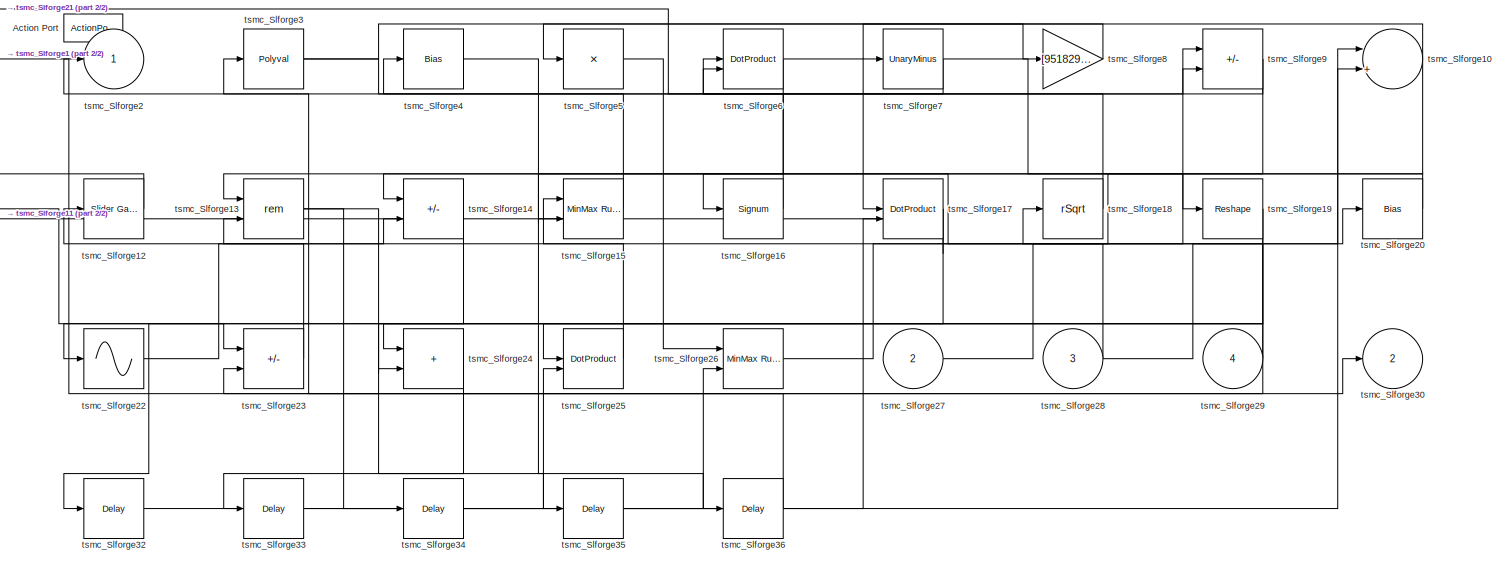
[diagram: tsmc_Slforge75 - part 1/2, most of the canvas]
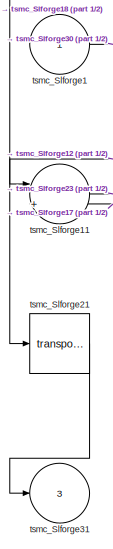
[diagram: tsmc_Slforge75 - part 2/2, left side, full height]
BLOCK [SubSystem] tsmc_Slforge75
  Ports = [4, 3, 0, 0, 0, 0, 0, 1]
  RequestExecContextInheritance = off
  TreatAsAtomicUnit = on
BLOCK [ActionPort] tsmc_Slforge75/Action Port
  ActionPortLabel = else { }
BLOCK [Inport] tsmc_Slforge75/tsmc_Slforge1
BLOCK [Sum] tsmc_Slforge75/tsmc_Slforge10
  Inputs = |++
  Ports = [2, 1]
BLOCK [Sum] tsmc_Slforge75/tsmc_Slforge11
  Inputs = |++
  Ports = [2, 1]
BLOCK [Reference] tsmc_Slforge75/tsmc_Slforge12  REF=simulink/Math
Operations/Slider
Gain
  Ports = [1, 1]
  SourceBlock = simulink/Math\nOperations/Slider\nGain
  SourceProductBaseCode = SL
  SourceType = Slider Gain
BLOCK [Math] tsmc_Slforge75/tsmc_Slforge13
  Operator = rem
  Ports = [2, 1]
  SignedPower = on
BLOCK [Sum] tsmc_Slforge75/tsmc_Slforge14
  IconShape = rectangular
  Inputs = +-
  Ports = [2, 1]
BLOCK [Reference] tsmc_Slforge75/tsmc_Slforge15  REF=simulink/Math
Operations/MinMax
Running
Resettable
  Ports = [2, 1]
  SourceBlock = simulink/Math\nOperations/MinMax\nRunning\nResettable
  SourceProductBaseCode = SL
  SourceType = MinMax Running Resettable
BLOCK [Signum] tsmc_Slforge75/tsmc_Slforge16
BLOCK [DotProduct] tsmc_Slforge75/tsmc_Slforge17
  OutDataTypeStr = Inherit: Inherit via internal rule
BLOCK [Sqrt] tsmc_Slforge75/tsmc_Slforge18
  AlgorithmType = Newton-Raphson
  Operator = rSqrt
BLOCK [Reshape] tsmc_Slforge75/tsmc_Slforge19
  Ports = [1, 1]
BLOCK [Outport] tsmc_Slforge75/tsmc_Slforge2
  VectorParamsAs1DForOutWhenUnconnected = off
BLOCK [Bias] tsmc_Slforge75/tsmc_Slforge20
  Bias = [558837190.754831]
  SaturateOnIntegerOverflow = off
BLOCK [Math] tsmc_Slforge75/tsmc_Slforge21
  Operator = transpose
  Ports = [1, 1]
  SignedPower = on
BLOCK [Sin] tsmc_Slforge75/tsmc_Slforge22
  Ports = [1, 1]
  SampleTime = 0
  TimeSource = Use external signal
BLOCK [Sum] tsmc_Slforge75/tsmc_Slforge23
  IconShape = rectangular
  Inputs = -+
  Ports = [2, 1]
BLOCK [Sum] tsmc_Slforge75/tsmc_Slforge24
  IconShape = rectangular
  Ports = [2, 1]
BLOCK [DotProduct] tsmc_Slforge75/tsmc_Slforge25
  OutDataTypeStr = Inherit: Inherit via internal rule
BLOCK [Reference] tsmc_Slforge75/tsmc_Slforge26  REF=simulink/Math
Operations/MinMax
Running
Resettable
  Ports = [2, 1]
  SourceBlock = simulink/Math\nOperations/MinMax\nRunning\nResettable
  SourceProductBaseCode = SL
  SourceType = MinMax Running Resettable
BLOCK [Inport] tsmc_Slforge75/tsmc_Slforge27
  Port = 2
BLOCK [Inport] tsmc_Slforge75/tsmc_Slforge28
  Port = 3
BLOCK [Inport] tsmc_Slforge75/tsmc_Slforge29
  Port = 4
BLOCK [Polyval] tsmc_Slforge75/tsmc_Slforge3
  Coefs = [ +2.081618890e-019, -1.441693666e-014, +4.719686976e-010, -8.536869453e-006, +1.621573104e-001, -8.087801117e+001 ]
BLOCK [Outport] tsmc_Slforge75/tsmc_Slforge30
  Port = 2
  VectorParamsAs1DForOutWhenUnconnected = off
BLOCK [Outport] tsmc_Slforge75/tsmc_Slforge31
  Port = 3
  VectorParamsAs1DForOutWhenUnconnected = off
BLOCK [Delay] tsmc_Slforge75/tsmc_Slforge32
  InputPortMap = u0
  Ports = [1, 1]
BLOCK [Delay] tsmc_Slforge75/tsmc_Slforge33
  InputPortMap = u0
  Ports = [1, 1]
BLOCK [Delay] tsmc_Slforge75/tsmc_Slforge34
  InputPortMap = u0
  Ports = [1, 1]
BLOCK [Delay] tsmc_Slforge75/tsmc_Slforge35
  InputPortMap = u0
  Ports = [1, 1]
BLOCK [Delay] tsmc_Slforge75/tsmc_Slforge36
  InputPortMap = u0
  Ports = [1, 1]
BLOCK [Bias] tsmc_Slforge75/tsmc_Slforge4
  Bias = [-478906388.955563]
  SaturateOnIntegerOverflow = off
BLOCK [Product] tsmc_Slforge75/tsmc_Slforge5
  Inputs = *
  Ports = [1, 1]
BLOCK [DotProduct] tsmc_Slforge75/tsmc_Slforge6
  OutDataTypeStr = Inherit: Inherit via internal rule
BLOCK [UnaryMinus] tsmc_Slforge75/tsmc_Slforge7
BLOCK [Gain] tsmc_Slforge75/tsmc_Slforge8
  Gain = [951829256.572201]
BLOCK [Sum] tsmc_Slforge75/tsmc_Slforge9
  IconShape = rectangular
  Inputs = +-
  Ports = [2, 1]
BLOCK [SubSystem] tsmc_Slforge76
  Ports = [2, 2, 0, 0, 0, 0, 0, 1]
  RequestExecContextInheritance = off
  TreatAsAtomicUnit = on
BLOCK [ActionPort] tsmc_Slforge76/Action Port
  ActionPortLabel = if { }
BLOCK [Inport] tsmc_Slforge76/tsmc_Slforge1
BLOCK [PermuteDimensions] tsmc_Slforge76/tsmc_Slforge10
BLOCK [Reference] tsmc_Slforge76/tsmc_Slforge11  REF=simulink/Math
Operations/Slider
Gain
  Ports = [1, 1]
  SourceBlock = simulink/Math\nOperations/Slider\nGain
  SourceProductBaseCode = SL
  SourceType = Slider Gain
BLOCK [Product] tsmc_Slforge76/tsmc_Slforge12
  Inputs = *
  Ports = [1, 1]
BLOCK [Assignment] tsmc_Slforge76/tsmc_Slforge13
  DiagnosticForDimensions = Warning
  IndexOptions = Index vector (dialog)
  Indices = 1
  OutputSizes = 1
  Ports = [2, 1]
BLOCK [Sum] tsmc_Slforge76/tsmc_Slforge14
  IconShape = rectangular
  Inputs = +-
  Ports = [2, 1]
BLOCK [Sqrt] tsmc_Slforge76/tsmc_Slforge15
BLOCK [MinMax] tsmc_Slforge76/tsmc_Slforge16
  Function = max
  Inputs = 3
  Ports = [3, 1]
BLOCK [Trigonometry] tsmc_Slforge76/tsmc_Slforge17
  Ports = [1, 1]
BLOCK [Reference] tsmc_Slforge76/tsmc_Slforge18  REF=simulink/Math
Operations/Slider
Gain
  Ports = [1, 1]
  SourceBlock = simulink/Math\nOperations/Slider\nGain
  SourceProductBaseCode = SL
  SourceType = Slider Gain
BLOCK [Sum] tsmc_Slforge76/tsmc_Slforge19
  IconShape = rectangular
  Inputs = +
  Ports = [1, 1]
BLOCK [Outport] tsmc_Slforge76/tsmc_Slforge2
  VectorParamsAs1DForOutWhenUnconnected = off
BLOCK [Bias] tsmc_Slforge76/tsmc_Slforge20
  Bias = [872641712.418496]
  SaturateOnIntegerOverflow = off
BLOCK [Constant] tsmc_Slforge76/tsmc_Slforge21
  SampleTime = 1
  Value = [-855607815.894000]
BLOCK [Constant] tsmc_Slforge76/tsmc_Slforge22
  SampleTime = 1
  Value = [-549961710.513613]
BLOCK [Inport] tsmc_Slforge76/tsmc_Slforge23
  Port = 2
BLOCK [Outport] tsmc_Slforge76/tsmc_Slforge24
  Port = 2
  VectorParamsAs1DForOutWhenUnconnected = off
BLOCK [Delay] tsmc_Slforge76/tsmc_Slforge25
  InputPortMap = u0
  Ports = [1, 1]
BLOCK [Delay] tsmc_Slforge76/tsmc_Slforge26
  InputPortMap = u0
  Ports = [1, 1]
BLOCK [Delay] tsmc_Slforge76/tsmc_Slforge27
  InputPortMap = u0
  Ports = [1, 1]
BLOCK [Delay] tsmc_Slforge76/tsmc_Slforge28
  InputPortMap = u0
  Ports = [1, 1]
BLOCK [Delay] tsmc_Slforge76/tsmc_Slforge3
  InputPortMap = u0
  Ports = [1, 1]
BLOCK [Reference] tsmc_Slforge76/tsmc_Slforge4  REF=simulink/Discrete/Tapped Delay
  Ports = [1, 1]
  SourceBlock = simulink/Discrete/Tapped Delay
  SourceProductBaseCode = SL
  SourceType = Tapped Delay Line
BLOCK [Delay] tsmc_Slforge76/tsmc_Slforge5
  DelayLengthSource = Input port
  InputPortMap = u0,p1
  Ports = [2, 1]
BLOCK [Sum] tsmc_Slforge76/tsmc_Slforge6
  IconShape = rectangular
  Inputs = --
  Ports = [2, 1]
BLOCK [Sqrt] tsmc_Slforge76/tsmc_Slforge7
BLOCK [Sum] tsmc_Slforge76/tsmc_Slforge8
  IconShape = rectangular
  Inputs = --
  Ports = [2, 1]
BLOCK [Sin] tsmc_Slforge76/tsmc_Slforge9
  Ports = [1, 1]
  SampleTime = 0
  TimeSource = Use external signal
BLOCK [SubSystem] tsmc_Slforge77
  Ports = [3, 2, 0, 0, 0, 0, 0, 1]
  RequestExecContextInheritance = off
  TreatAsAtomicUnit = on
BLOCK [ActionPort] tsmc_Slforge77/Action Port
  ActionPortLabel = else { }
BLOCK [Inport] tsmc_Slforge77/tsmc_Slforge1
BLOCK [Sum] tsmc_Slforge77/tsmc_Slforge10
  IconShape = rectangular
  Inputs = --
  Ports = [2, 1]
BLOCK [ComplexToMagnitudeAngle] tsmc_Slforge77/tsmc_Slforge11
  Ports = [1, 2]
BLOCK [MinMax] tsmc_Slforge77/tsmc_Slforge12
  Inputs = 3
  Ports = [3, 1]
BLOCK [Gain] tsmc_Slforge77/tsmc_Slforge13
  Gain = [272905049.869819]
BLOCK [Sqrt] tsmc_Slforge77/tsmc_Slforge14
  AlgorithmType = Newton-Raphson
  Operator = rSqrt
BLOCK [PermuteDimensions] tsmc_Slforge77/tsmc_Slforge15
BLOCK [PermuteDimensions] tsmc_Slforge77/tsmc_Slforge16
BLOCK [Reshape] tsmc_Slforge77/tsmc_Slforge17
  Ports = [1, 1]
BLOCK [Sqrt] tsmc_Slforge77/tsmc_Slforge18
BLOCK [ComplexToMagnitudeAngle] tsmc_Slforge77/tsmc_Slforge19
  Ports = [1, 2]
BLOCK [Outport] tsmc_Slforge77/tsmc_Slforge2
  VectorParamsAs1DForOutWhenUnconnected = off
BLOCK [MinMax] tsmc_Slforge77/tsmc_Slforge20
  Ports = [1, 1]
BLOCK [Reference] tsmc_Slforge77/tsmc_Slforge21  REF=simulink/Math
Operations/Slider
Gain
  Ports = [1, 1]
  SourceBlock = simulink/Math\nOperations/Slider\nGain
  SourceProductBaseCode = SL
  SourceType = Slider Gain
BLOCK [Trigonometry] tsmc_Slforge77/tsmc_Slforge22
  Ports = [1, 1]
BLOCK [Sin] tsmc_Slforge77/tsmc_Slforge23
  Ports = [1, 1]
  SampleTime = 0
  TimeSource = Use external signal
BLOCK [PermuteDimensions] tsmc_Slforge77/tsmc_Slforge24
BLOCK [Constant] tsmc_Slforge77/tsmc_Slforge25
  SampleTime = 1
  Value = [142843851.051336]
BLOCK [Constant] tsmc_Slforge77/tsmc_Slforge26
  SampleTime = 1
  Value = [680566533.537189]
BLOCK [Constant] tsmc_Slforge77/tsmc_Slforge27
  SampleTime = 1
  Value = [901465358.675163]
BLOCK [Constant] tsmc_Slforge77/tsmc_Slforge28
  SampleTime = 1
  Value = [-766301813.246709]
BLOCK [Inport] tsmc_Slforge77/tsmc_Slforge29
  Port = 2
BLOCK [DiscreteStateSpace] tsmc_Slforge77/tsmc_Slforge3
  SampleTime = -1
BLOCK [Inport] tsmc_Slforge77/tsmc_Slforge30
  Port = 3
BLOCK [Outport] tsmc_Slforge77/tsmc_Slforge31
  Port = 2
  VectorParamsAs1DForOutWhenUnconnected = off
BLOCK [Delay] tsmc_Slforge77/tsmc_Slforge32
  InputPortMap = u0
  Ports = [1, 1]
BLOCK [DiscreteZeroPole] tsmc_Slforge77/tsmc_Slforge4
  Gain = 1
  Poles = [0 0.5]
  SampleTime = -1
BLOCK [Product] tsmc_Slforge77/tsmc_Slforge5
  Inputs = *
  Ports = [1, 1]
BLOCK [Bias] tsmc_Slforge77/tsmc_Slforge6
  Bias = [-66873792.462859]
  SaturateOnIntegerOverflow = off
BLOCK [Sum] tsmc_Slforge77/tsmc_Slforge7
  IconShape = rectangular
  Inputs = +-
  Ports = [2, 1]
BLOCK [Reference] tsmc_Slforge77/tsmc_Slforge8  REF=simulink/Math
Operations/Slider
Gain
  Ports = [1, 1]
  SourceBlock = simulink/Math\nOperations/Slider\nGain
  SourceProductBaseCode = SL
  SourceType = Slider Gain
BLOCK [Bias] tsmc_Slforge77/tsmc_Slforge9
  Bias = [26740750.623576]
  SaturateOnIntegerOverflow = off
BLOCK [SubSystem] tsmc_Slforge78
  Ports = [6, 1, 0, 0, 0, 0, 0, 1]
  RequestExecContextInheritance = off
  TreatAsAtomicUnit = on
BLOCK [ActionPort] tsmc_Slforge78/Action Port
  ActionPortLabel = if { }
BLOCK [Inport] tsmc_Slforge78/tsmc_Slforge1
BLOCK [MinMax] tsmc_Slforge78/tsmc_Slforge10
  Function = max
  Inputs = 2
  Ports = [2, 1]
BLOCK [Reshape] tsmc_Slforge78/tsmc_Slforge11
  Ports = [1, 1]
BLOCK [Bias] tsmc_Slforge78/tsmc_Slforge12
  Bias = [772438842.352747]
  SaturateOnIntegerOverflow = off
BLOCK [Polyval] tsmc_Slforge78/tsmc_Slforge13
  Coefs = [ +2.081618890e-019, -1.441693666e-014, +4.719686976e-010, -8.536869453e-006, +1.621573104e-001, -8.087801117e+001 ]
BLOCK [Squeeze] tsmc_Slforge78/tsmc_Slforge14
BLOCK [MinMax] tsmc_Slforge78/tsmc_Slforge15
  Function = max
  Ports = [1, 1]
BLOCK [MinMax] tsmc_Slforge78/tsmc_Slforge16
  Function = max
  Inputs = 3
  Ports = [3, 1]
BLOCK [Constant] tsmc_Slforge78/tsmc_Slforge17
  SampleTime = 1
  Value = [-48406649.687781]
BLOCK [Constant] tsmc_Slforge78/tsmc_Slforge18
  SampleTime = 1
  Value = [-479832900.428704]
BLOCK [Constant] tsmc_Slforge78/tsmc_Slforge19
  SampleTime = 1
  Value = [314816186.317253]
BLOCK [Outport] tsmc_Slforge78/tsmc_Slforge2
  VectorParamsAs1DForOutWhenUnconnected = off
BLOCK [Inport] tsmc_Slforge78/tsmc_Slforge20
  Port = 2
BLOCK [Inport] tsmc_Slforge78/tsmc_Slforge21
  Port = 3
BLOCK [Inport] tsmc_Slforge78/tsmc_Slforge22
  Port = 4
BLOCK [Inport] tsmc_Slforge78/tsmc_Slforge23
  Port = 5
BLOCK [Inport] tsmc_Slforge78/tsmc_Slforge24
  Port = 6
BLOCK [Reference] tsmc_Slforge78/tsmc_Slforge3  REF=simulink/Discrete/Difference
  Ports = [1, 1]
  SourceBlock = simulink/Discrete/Difference
  SourceProductBaseCode = SL
  SourceType = Difference
BLOCK [Reference] tsmc_Slforge78/tsmc_Slforge4  REF=simulink/Continuous/PID Controller (2DOF)
  Ports = [2, 1]
  SourceBlock = simulink/Continuous/PID Controller (2DOF)
  SourceProductBaseCode = SL
  SourceType = PID 2dof
BLOCK [Polyval] tsmc_Slforge78/tsmc_Slforge5
  Coefs = [ +2.081618890e-019, -1.441693666e-014, +4.719686976e-010, -8.536869453e-006, +1.621573104e-001, -8.087801117e+001 ]
BLOCK [Sqrt] tsmc_Slforge78/tsmc_Slforge6
  AlgorithmType = Newton-Raphson
  Operator = rSqrt
BLOCK [Sqrt] tsmc_Slforge78/tsmc_Slforge7
  AlgorithmType = Newton-Raphson
  Operator = rSqrt
BLOCK [Reference] tsmc_Slforge78/tsmc_Slforge8  REF=simulink/Math
Operations/MinMax
Running
Resettable
  Ports = [2, 1]
  SourceBlock = simulink/Math\nOperations/MinMax\nRunning\nResettable
  SourceProductBaseCode = SL
  SourceType = MinMax Running Resettable
BLOCK [Rounding] tsmc_Slforge78/tsmc_Slforge9
BLOCK [SubSystem] tsmc_Slforge79
  Ports = [1, 1, 0, 0, 0, 0, 0, 1]
  RequestExecContextInheritance = off
  TreatAsAtomicUnit = on
BLOCK [ActionPort] tsmc_Slforge79/Action Port
  ActionPortLabel = else { }
BLOCK [Inport] tsmc_Slforge79/tsmc_Slforge1
BLOCK [UnaryMinus] tsmc_Slforge79/tsmc_Slforge10
BLOCK [Sqrt] tsmc_Slforge79/tsmc_Slforge11
  AlgorithmType = Newton-Raphson
  Operator = rSqrt
BLOCK [Product] tsmc_Slforge79/tsmc_Slforge12
  Inputs = *
  Ports = [1, 1]
BLOCK [Abs] tsmc_Slforge79/tsmc_Slforge13
  SaturateOnIntegerOverflow = off
BLOCK [Sum] tsmc_Slforge79/tsmc_Slforge14
  IconShape = rectangular
  Inputs = +
  Ports = [1, 1]
BLOCK [Sum] tsmc_Slforge79/tsmc_Slforge15
  IconShape = rectangular
  Inputs = +-
  Ports = [2, 1]
BLOCK [Squeeze] tsmc_Slforge79/tsmc_Slforge16
BLOCK [Signum] tsmc_Slforge79/tsmc_Slforge17
BLOCK [Sum] tsmc_Slforge79/tsmc_Slforge18
  IconShape = rectangular
  Inputs = +-
  Ports = [2, 1]
BLOCK [Product] tsmc_Slforge79/tsmc_Slforge19
  Inputs = **
  Ports = [2, 1]
BLOCK [Outport] tsmc_Slforge79/tsmc_Slforge2
  VectorParamsAs1DForOutWhenUnconnected = off
BLOCK [Math] tsmc_Slforge79/tsmc_Slforge20
  Ports = [1, 1]
  SignedPower = on
BLOCK [Constant] tsmc_Slforge79/tsmc_Slforge21
  SampleTime = 1
  Value = [678233117.129764]
BLOCK [Constant] tsmc_Slforge79/tsmc_Slforge22
  SampleTime = 1
  Value = [-306944065.535399]
BLOCK [Delay] tsmc_Slforge79/tsmc_Slforge23
  InputPortMap = u0
  Ports = [1, 1]
BLOCK [Delay] tsmc_Slforge79/tsmc_Slforge3
  InputPortMap = u0,e6
  Ports = [2, 1]
  ShowEnablePort = on
BLOCK [Reference] tsmc_Slforge79/tsmc_Slforge4  REF=simulink/Discrete/Tapped Delay
  Ports = [1, 1]
  SourceBlock = simulink/Discrete/Tapped Delay
  SourceProductBaseCode = SL
  SourceType = Tapped Delay Line
BLOCK [Reference] tsmc_Slforge79/tsmc_Slforge5  REF=simulink/Discrete/Difference
  Ports = [1, 1]
  SourceBlock = simulink/Discrete/Difference
  SourceProductBaseCode = SL
  SourceType = Difference
BLOCK [Reference] tsmc_Slforge79/tsmc_Slforge6  REF=simulink/Discrete/Difference
  Ports = [1, 1]
  SourceBlock = simulink/Discrete/Difference
  SourceProductBaseCode = SL
  SourceType = Difference
BLOCK [Reference] tsmc_Slforge79/tsmc_Slforge7  REF=simulink/Math
Operations/MinMax
Running
Resettable
  Ports = [2, 1]
  SourceBlock = simulink/Math\nOperations/MinMax\nRunning\nResettable
  SourceProductBaseCode = SL
  SourceType = MinMax Running Resettable
BLOCK [MinMax] tsmc_Slforge79/tsmc_Slforge8
  Inputs = 2
  Ports = [2, 1]
BLOCK [PermuteDimensions] tsmc_Slforge79/tsmc_Slforge9
BLOCK [Reference] tsmc_Slforge8  REF=simulink/Discrete/Transfer Fcn
Real Zero
  Ports = [1, 1]
  SourceBlock = simulink/Discrete/Transfer Fcn\nReal Zero
  SourceProductBaseCode = SL
  SourceType = Transfer Fcn Real Zero
BLOCK [SubSystem] tsmc_Slforge80
  Ports = [2, 2, 0, 0, 0, 0, 0, 1]
  RequestExecContextInheritance = off
  TreatAsAtomicUnit = on
BLOCK [ActionPort] tsmc_Slforge80/Action Port
  ActionPortLabel = if { }
BLOCK [Inport] tsmc_Slforge80/tsmc_Slforge1
BLOCK [Squeeze] tsmc_Slforge80/tsmc_Slforge10
BLOCK [Sqrt] tsmc_Slforge80/tsmc_Slforge11
BLOCK [Reshape] tsmc_Slforge80/tsmc_Slforge12
  Ports = [1, 1]
BLOCK [Gain] tsmc_Slforge80/tsmc_Slforge13
  Gain = [-764094660.607144]
BLOCK [Squeeze] tsmc_Slforge80/tsmc_Slforge14
BLOCK [Sum] tsmc_Slforge80/tsmc_Slforge15
  Inputs = |++
  Ports = [2, 1]
BLOCK [Abs] tsmc_Slforge80/tsmc_Slforge16
  SaturateOnIntegerOverflow = off
BLOCK [Sum] tsmc_Slforge80/tsmc_Slforge17
  IconShape = rectangular
  Inputs = +
  Ports = [1, 1]
BLOCK [PermuteDimensions] tsmc_Slforge80/tsmc_Slforge18
BLOCK [Sum] tsmc_Slforge80/tsmc_Slforge19
  Inputs = |++
  Ports = [2, 1]
BLOCK [Outport] tsmc_Slforge80/tsmc_Slforge2
  VectorParamsAs1DForOutWhenUnconnected = off
BLOCK [Constant] tsmc_Slforge80/tsmc_Slforge20
  SampleTime = 1
  Value = [275262453.457790]
BLOCK [Inport] tsmc_Slforge80/tsmc_Slforge21
  Port = 2
BLOCK [Outport] tsmc_Slforge80/tsmc_Slforge22
  Port = 2
  VectorParamsAs1DForOutWhenUnconnected = off
BLOCK [Delay] tsmc_Slforge80/tsmc_Slforge23
  InputPortMap = u0
  Ports = [1, 1]
BLOCK [Delay] tsmc_Slforge80/tsmc_Slforge24
  InputPortMap = u0
  Ports = [1, 1]
BLOCK [Reference] tsmc_Slforge80/tsmc_Slforge3  REF=simulink/Discrete/Transfer Fcn
Lead or Lag
  Ports = [1, 1]
  SourceBlock = simulink/Discrete/Transfer Fcn\nLead or Lag
  SourceProductBaseCode = SL
  SourceType = Lead or Lag Compensator
BLOCK [DiscreteStateSpace] tsmc_Slforge80/tsmc_Slforge4
  SampleTime = -1
BLOCK [Delay] tsmc_Slforge80/tsmc_Slforge5
  DelayLengthSource = Input port
  InputPortMap = u0,p1
  Ports = [2, 1]
BLOCK [Delay] tsmc_Slforge80/tsmc_Slforge6
  DelayLengthSource = Input port
  InputPortMap = u0,p1
  Ports = [2, 1]
BLOCK [Reference] tsmc_Slforge80/tsmc_Slforge7  REF=simulink/Math
Operations/Slider
Gain
  Ports = [1, 1]
  SourceBlock = simulink/Math\nOperations/Slider\nGain
  SourceProductBaseCode = SL
  SourceType = Slider Gain
BLOCK [ComplexToMagnitudeAngle] tsmc_Slforge80/tsmc_Slforge8
  Ports = [1, 2]
BLOCK [Sum] tsmc_Slforge80/tsmc_Slforge9
  IconShape = rectangular
  Inputs = +-
  Ports = [2, 1]
BLOCK [SubSystem] tsmc_Slforge81
  Ports = [3, 1, 0, 0, 0, 0, 0, 1]
  RequestExecContextInheritance = off
  TreatAsAtomicUnit = on
BLOCK [ActionPort] tsmc_Slforge81/Action Port
  ActionPortLabel = else { }
BLOCK [Inport] tsmc_Slforge81/tsmc_Slforge1
BLOCK [Bias] tsmc_Slforge81/tsmc_Slforge10
  Bias = [-344768732.207249]
  SaturateOnIntegerOverflow = off
BLOCK [Reference] tsmc_Slforge81/tsmc_Slforge11  REF=simulink/Math
Operations/Slider
Gain
  Ports = [1, 1]
  SourceBlock = simulink/Math\nOperations/Slider\nGain
  SourceProductBaseCode = SL
  SourceType = Slider Gain
BLOCK [PermuteDimensions] tsmc_Slforge81/tsmc_Slforge12
BLOCK [Reference] tsmc_Slforge81/tsmc_Slforge13  REF=simulink/Math
Operations/Slider
Gain
  Ports = [1, 1]
  SourceBlock = simulink/Math\nOperations/Slider\nGain
  SourceProductBaseCode = SL
  SourceType = Slider Gain
BLOCK [Sum] tsmc_Slforge81/tsmc_Slforge14
  IconShape = rectangular
  Inputs = +-
  Ports = [2, 1]
BLOCK [Bias] tsmc_Slforge81/tsmc_Slforge15
  Bias = [-933685166.648832]
  SaturateOnIntegerOverflow = off
BLOCK [Sqrt] tsmc_Slforge81/tsmc_Slforge16
BLOCK [Assignment] tsmc_Slforge81/tsmc_Slforge17
  DiagnosticForDimensions = Warning
  IndexOptions = Index vector (dialog)
  Indices = 1
  OutputSizes = 1
  Ports = [2, 1]
BLOCK [Squeeze] tsmc_Slforge81/tsmc_Slforge18
BLOCK [Rounding] tsmc_Slforge81/tsmc_Slforge19
BLOCK [Outport] tsmc_Slforge81/tsmc_Slforge2
  VectorParamsAs1DForOutWhenUnconnected = off
BLOCK [Math] tsmc_Slforge81/tsmc_Slforge20
  Operator = pow
  Ports = [2, 1]
  SignedPower = on
BLOCK [Sum] tsmc_Slforge81/tsmc_Slforge21
  IconShape = rectangular
  Inputs = -+
  Ports = [2, 1]
BLOCK [Reference] tsmc_Slforge81/tsmc_Slforge22  REF=simulink/Math
Operations/MinMax
Running
Resettable
  Ports = [2, 1]
  SourceBlock = simulink/Math\nOperations/MinMax\nRunning\nResettable
  SourceProductBaseCode = SL
  SourceType = MinMax Running Resettable
BLOCK [Constant] tsmc_Slforge81/tsmc_Slforge23
  SampleTime = 1
  Value = [662195432.123307]
BLOCK [Inport] tsmc_Slforge81/tsmc_Slforge24
  Port = 2
BLOCK [Inport] tsmc_Slforge81/tsmc_Slforge25
  Port = 3
BLOCK [Delay] tsmc_Slforge81/tsmc_Slforge26
  InputPortMap = u0
  Ports = [1, 1]
BLOCK [Delay] tsmc_Slforge81/tsmc_Slforge27
  InputPortMap = u0
  Ports = [1, 1]
BLOCK [Reference] tsmc_Slforge81/tsmc_Slforge3  REF=simulink/Discrete/Transfer Fcn
Lead or Lag
  Ports = [1, 1]
  SourceBlock = simulink/Discrete/Transfer Fcn\nLead or Lag
  SourceProductBaseCode = SL
  SourceType = Lead or Lag Compensator
BLOCK [Reference] tsmc_Slforge81/tsmc_Slforge4  REF=simulink/Discrete/Transfer Fcn
First Order
  Ports = [1, 1]
  SourceBlock = simulink/Discrete/Transfer Fcn\nFirst Order
  SourceProductBaseCode = SL
  SourceType = First Order Transfer Fcn
BLOCK [DotProduct] tsmc_Slforge81/tsmc_Slforge5
  OutDataTypeStr = Inherit: Inherit via internal rule
BLOCK [Rounding] tsmc_Slforge81/tsmc_Slforge6
BLOCK [Reshape] tsmc_Slforge81/tsmc_Slforge7
  Ports = [1, 1]
BLOCK [ComplexToMagnitudeAngle] tsmc_Slforge81/tsmc_Slforge8
  Ports = [1, 2]
BLOCK [Bias] tsmc_Slforge81/tsmc_Slforge9
  Bias = [902734951.405075]
  SaturateOnIntegerOverflow = off
BLOCK [SubSystem] tsmc_Slforge82
  Ports = [2, 1, 0, 0, 0, 0, 0, 1]
  RequestExecContextInheritance = off
  TreatAsAtomicUnit = on
BLOCK [ActionPort] tsmc_Slforge82/Action Port
  ActionPortLabel = if { }
BLOCK [Inport] tsmc_Slforge82/tsmc_Slforge1
BLOCK [Product] tsmc_Slforge82/tsmc_Slforge10
  Inputs = **
  Ports = [2, 1]
BLOCK [Math] tsmc_Slforge82/tsmc_Slforge11
  Operator = mod
  Ports = [2, 1]
  SignedPower = on
BLOCK [Sqrt] tsmc_Slforge82/tsmc_Slforge12
BLOCK [Gain] tsmc_Slforge82/tsmc_Slforge13
  Gain = [-481493748.840802]
BLOCK [Reference] tsmc_Slforge82/tsmc_Slforge14  REF=simulink/Math
Operations/MinMax
Running
Resettable
  Ports = [2, 1]
  SourceBlock = simulink/Math\nOperations/MinMax\nRunning\nResettable
  SourceProductBaseCode = SL
  SourceType = MinMax Running Resettable
BLOCK [Bias] tsmc_Slforge82/tsmc_Slforge15
  Bias = [-828014900.881313]
  SaturateOnIntegerOverflow = off
BLOCK [DotProduct] tsmc_Slforge82/tsmc_Slforge16
  OutDataTypeStr = Inherit: Inherit via internal rule
BLOCK [ComplexToRealImag] tsmc_Slforge82/tsmc_Slforge17
  Ports = [1, 2]
BLOCK [Gain] tsmc_Slforge82/tsmc_Slforge18
  Gain = [-647598959.475434]
BLOCK [UnaryMinus] tsmc_Slforge82/tsmc_Slforge19
BLOCK [Outport] tsmc_Slforge82/tsmc_Slforge2
  VectorParamsAs1DForOutWhenUnconnected = off
BLOCK [PermuteDimensions] tsmc_Slforge82/tsmc_Slforge20
BLOCK [Trigonometry] tsmc_Slforge82/tsmc_Slforge21
  Ports = [1, 1]
BLOCK [Reference] tsmc_Slforge82/tsmc_Slforge22  REF=simulink/Math
Operations/MinMax
Running
Resettable
  Ports = [2, 1]
  SourceBlock = simulink/Math\nOperations/MinMax\nRunning\nResettable
  SourceProductBaseCode = SL
  SourceType = MinMax Running Resettable
BLOCK [Constant] tsmc_Slforge82/tsmc_Slforge23
  SampleTime = 1
  Value = [-100635351.188928]
BLOCK [Inport] tsmc_Slforge82/tsmc_Slforge24
  Port = 2
BLOCK [Delay] tsmc_Slforge82/tsmc_Slforge25
  InputPortMap = u0
  Ports = [1, 1]
BLOCK [Delay] tsmc_Slforge82/tsmc_Slforge26
  InputPortMap = u0
  Ports = [1, 1]
BLOCK [Reference] tsmc_Slforge82/tsmc_Slforge3  REF=simulink/Continuous/PID Controller (2DOF)
  Ports = [2, 1]
  SourceBlock = simulink/Continuous/PID Controller (2DOF)
  SourceProductBaseCode = SL
  SourceType = PID 2dof
BLOCK [Rounding] tsmc_Slforge82/tsmc_Slforge4
BLOCK [Squeeze] tsmc_Slforge82/tsmc_Slforge5
BLOCK [Trigonometry] tsmc_Slforge82/tsmc_Slforge6
  Ports = [1, 1]
BLOCK [Bias] tsmc_Slforge82/tsmc_Slforge7
  Bias = [-787005517.541563]
  SaturateOnIntegerOverflow = off
BLOCK [ComplexToMagnitudeAngle] tsmc_Slforge82/tsmc_Slforge8
  Ports = [1, 2]
BLOCK [Polyval] tsmc_Slforge82/tsmc_Slforge9
  Coefs = [ +2.081618890e-019, -1.441693666e-014, +4.719686976e-010, -8.536869453e-006, +1.621573104e-001, -8.087801117e+001 ]
BLOCK [SubSystem] tsmc_Slforge83
  Ports = [3, 1, 0, 0, 0, 0, 0, 1]
  RequestExecContextInheritance = off
  TreatAsAtomicUnit = on
BLOCK [ActionPort] tsmc_Slforge83/Action Port
  ActionPortLabel = else { }
BLOCK [Inport] tsmc_Slforge83/tsmc_Slforge1
BLOCK [Polyval] tsmc_Slforge83/tsmc_Slforge10
  Coefs = [ +2.081618890e-019, -1.441693666e-014, +4.719686976e-010, -8.536869453e-006, +1.621573104e-001, -8.087801117e+001 ]
BLOCK [Sum] tsmc_Slforge83/tsmc_Slforge11
  IconShape = rectangular
  Inputs = +-
  Ports = [2, 1]
BLOCK [Math] tsmc_Slforge83/tsmc_Slforge12
  Operator = rem
  Ports = [2, 1]
  SignedPower = on
BLOCK [Reference] tsmc_Slforge83/tsmc_Slforge13  REF=simulink/Math
Operations/MinMax
Running
Resettable
  Ports = [2, 1]
  SourceBlock = simulink/Math\nOperations/MinMax\nRunning\nResettable
  SourceProductBaseCode = SL
  SourceType = MinMax Running Resettable
BLOCK [Rounding] tsmc_Slforge83/tsmc_Slforge14
BLOCK [Product] tsmc_Slforge83/tsmc_Slforge15
  Inputs = **
  Ports = [2, 1]
BLOCK [Sum] tsmc_Slforge83/tsmc_Slforge16
  IconShape = rectangular
  Inputs = +-
  Ports = [2, 1]
BLOCK [Reshape] tsmc_Slforge83/tsmc_Slforge17
  Ports = [1, 1]
BLOCK [MinMax] tsmc_Slforge83/tsmc_Slforge18
  Inputs = 2
  Ports = [2, 1]
BLOCK [Reference] tsmc_Slforge83/tsmc_Slforge19  REF=simulink/Math
Operations/MinMax
Running
Resettable
  Ports = [2, 1]
  SourceBlock = simulink/Math\nOperations/MinMax\nRunning\nResettable
  SourceProductBaseCode = SL
  SourceType = MinMax Running Resettable
BLOCK [Outport] tsmc_Slforge83/tsmc_Slforge2
  VectorParamsAs1DForOutWhenUnconnected = off
BLOCK [Gain] tsmc_Slforge83/tsmc_Slforge20
  Gain = [667066968.601262]
BLOCK [Product] tsmc_Slforge83/tsmc_Slforge21
  Inputs = *
  Ports = [1, 1]
BLOCK [ComplexToRealImag] tsmc_Slforge83/tsmc_Slforge22
  Ports = [1, 2]
BLOCK [Sqrt] tsmc_Slforge83/tsmc_Slforge23
  AlgorithmType = Newton-Raphson
  Operator = rSqrt
BLOCK [Product] tsmc_Slforge83/tsmc_Slforge24
  Inputs = **
  Ports = [2, 1]
BLOCK [Product] tsmc_Slforge83/tsmc_Slforge25
  Ports = [2, 1]
BLOCK [Sqrt] tsmc_Slforge83/tsmc_Slforge26
BLOCK [Polyval] tsmc_Slforge83/tsmc_Slforge27
  Coefs = [ +2.081618890e-019, -1.441693666e-014, +4.719686976e-010, -8.536869453e-006, +1.621573104e-001, -8.087801117e+001 ]
BLOCK [Inport] tsmc_Slforge83/tsmc_Slforge28
  Port = 2
BLOCK [Inport] tsmc_Slforge83/tsmc_Slforge29
  Port = 3
BLOCK [Reference] tsmc_Slforge83/tsmc_Slforge3  REF=simulink/Discrete/Transfer Fcn
Real Zero
  Ports = [1, 1]
  SourceBlock = simulink/Discrete/Transfer Fcn\nReal Zero
  SourceProductBaseCode = SL
  SourceType = Transfer Fcn Real Zero
BLOCK [Delay] tsmc_Slforge83/tsmc_Slforge30
  InputPortMap = u0
  Ports = [1, 1]
BLOCK [Delay] tsmc_Slforge83/tsmc_Slforge31
  InputPortMap = u0
  Ports = [1, 1]
BLOCK [Delay] tsmc_Slforge83/tsmc_Slforge32
  InputPortMap = u0
  Ports = [1, 1]
BLOCK [Delay] tsmc_Slforge83/tsmc_Slforge33
  InputPortMap = u0
  Ports = [1, 1]
BLOCK [DiscreteIntegrator] tsmc_Slforge83/tsmc_Slforge4
  ICPrevOutput = DiscIntNeverNeededParam
  ICPrevScaledInput = DiscIntNeverNeededParam
  InitialConditionSetting = Auto
  Ports = [1, 1]
  SampleTime = -1
BLOCK [UnitDelay] tsmc_Slforge83/tsmc_Slforge5
  HasFrameUpgradeWarning = on
  SampleTime = -1
BLOCK [DiscreteFir] tsmc_Slforge83/tsmc_Slforge6
  InputPortMap = u0
  OutputPortMap = o0
  Ports = [1, 1]
BLOCK [DiscreteFilter] tsmc_Slforge83/tsmc_Slforge7
  InputPortMap = u0
  Ports = [1, 1]
BLOCK [Sum] tsmc_Slforge83/tsmc_Slforge8
  IconShape = rectangular
  Inputs = +-
  Ports = [2, 1]
BLOCK [Product] tsmc_Slforge83/tsmc_Slforge9
  Ports = [2, 1]
BLOCK [SubSystem] tsmc_Slforge84
  Ports = [1, 2, 0, 0, 0, 0, 0, 1]
  RequestExecContextInheritance = off
  TreatAsAtomicUnit = on
BLOCK [ActionPort] tsmc_Slforge84/Action Port
  ActionPortLabel = if { }
BLOCK [Inport] tsmc_Slforge84/tsmc_Slforge1
BLOCK [Product] tsmc_Slforge84/tsmc_Slforge10
  Ports = [2, 1]
BLOCK [Sum] tsmc_Slforge84/tsmc_Slforge11
  IconShape = rectangular
  Inputs = --
  Ports = [2, 1]
BLOCK [Sum] tsmc_Slforge84/tsmc_Slforge12
  Inputs = |++
  Ports = [2, 1]
BLOCK [Product] tsmc_Slforge84/tsmc_Slforge13
  Ports = [2, 1]
BLOCK [Signum] tsmc_Slforge84/tsmc_Slforge14
BLOCK [Reference] tsmc_Slforge84/tsmc_Slforge15  REF=simulink/Math
Operations/MinMax
Running
Resettable
  Ports = [2, 1]
  SourceBlock = simulink/Math\nOperations/MinMax\nRunning\nResettable
  SourceProductBaseCode = SL
  SourceType = MinMax Running Resettable
BLOCK [Sqrt] tsmc_Slforge84/tsmc_Slforge16
BLOCK [Product] tsmc_Slforge84/tsmc_Slforge17
  Inputs = *
  Ports = [1, 1]
BLOCK [Sum] tsmc_Slforge84/tsmc_Slforge18
  IconShape = rectangular
  Inputs = +-
  Ports = [2, 1]
BLOCK [Bias] tsmc_Slforge84/tsmc_Slforge19
  Bias = [684010256.464936]
  SaturateOnIntegerOverflow = off
BLOCK [Outport] tsmc_Slforge84/tsmc_Slforge2
  VectorParamsAs1DForOutWhenUnconnected = off
BLOCK [Math] tsmc_Slforge84/tsmc_Slforge20
  Operator = mod
  Ports = [2, 1]
  SignedPower = on
BLOCK [Bias] tsmc_Slforge84/tsmc_Slforge21
  Bias = [947417164.788493]
  SaturateOnIntegerOverflow = off
BLOCK [DotProduct] tsmc_Slforge84/tsmc_Slforge22
  OutDataTypeStr = Inherit: Inherit via internal rule
BLOCK [Sum] tsmc_Slforge84/tsmc_Slforge23
  IconShape = rectangular
  Inputs = +-
  Ports = [2, 1]
BLOCK [Sum] tsmc_Slforge84/tsmc_Slforge24
  IconShape = rectangular
  Inputs = -+
  Ports = [2, 1]
BLOCK [Constant] tsmc_Slforge84/tsmc_Slforge25
  SampleTime = 1
  Value = [217084486.868487]
BLOCK [Constant] tsmc_Slforge84/tsmc_Slforge26
  SampleTime = 1
  Value = [791273851.159485]
BLOCK [Outport] tsmc_Slforge84/tsmc_Slforge27
  Port = 2
  VectorParamsAs1DForOutWhenUnconnected = off
BLOCK [Delay] tsmc_Slforge84/tsmc_Slforge28
  InputPortMap = u0
  Ports = [1, 1]
BLOCK [Delay] tsmc_Slforge84/tsmc_Slforge29
  InputPortMap = u0
  Ports = [1, 1]
BLOCK [Reference] tsmc_Slforge84/tsmc_Slforge3  REF=simulink/Discrete/Transfer Fcn
Real Zero
  Ports = [1, 1]
  SourceBlock = simulink/Discrete/Transfer Fcn\nReal Zero
  SourceProductBaseCode = SL
  SourceType = Transfer Fcn Real Zero
BLOCK [Delay] tsmc_Slforge84/tsmc_Slforge30
  InputPortMap = u0
  Ports = [1, 1]
BLOCK [Delay] tsmc_Slforge84/tsmc_Slforge31
  InputPortMap = u0
  Ports = [1, 1]
BLOCK [Delay] tsmc_Slforge84/tsmc_Slforge32
  InputPortMap = u0
  Ports = [1, 1]
BLOCK [Reference] tsmc_Slforge84/tsmc_Slforge4  REF=simulink/Continuous/PID Controller (2DOF)
  Ports = [2, 1]
  SourceBlock = simulink/Continuous/PID Controller (2DOF)
  SourceProductBaseCode = SL
  SourceType = PID 2dof
BLOCK [MinMax] tsmc_Slforge84/tsmc_Slforge5
  Function = max
  Inputs = 3
  Ports = [3, 1]
BLOCK [Sum] tsmc_Slforge84/tsmc_Slforge6
  IconShape = rectangular
  Inputs = +
  Ports = [1, 1]
BLOCK [Sqrt] tsmc_Slforge84/tsmc_Slforge7
  AlgorithmType = Newton-Raphson
  Operator = rSqrt
BLOCK [MinMax] tsmc_Slforge84/tsmc_Slforge8
  Function = max
  Inputs = 2
  Ports = [2, 1]
BLOCK [Gain] tsmc_Slforge84/tsmc_Slforge9
  Gain = [-996958643.570432]
BLOCK [SubSystem] tsmc_Slforge85
  Ports = [2, 2, 0, 0, 0, 0, 0, 1]
  RequestExecContextInheritance = off
  TreatAsAtomicUnit = on
BLOCK [ActionPort] tsmc_Slforge85/Action Port
  ActionPortLabel = else { }
BLOCK [Inport] tsmc_Slforge85/tsmc_Slforge1
BLOCK [Reference] tsmc_Slforge85/tsmc_Slforge10  REF=simulink/Math
Operations/MinMax
Running
Resettable
  Ports = [2, 1]
  SourceBlock = simulink/Math\nOperations/MinMax\nRunning\nResettable
  SourceProductBaseCode = SL
  SourceType = MinMax Running Resettable
BLOCK [Math] tsmc_Slforge85/tsmc_Slforge11
  Operator = hypot
  Ports = [2, 1]
  SignedPower = on
BLOCK [ComplexToRealImag] tsmc_Slforge85/tsmc_Slforge12
  Ports = [1, 2]
BLOCK [Sum] tsmc_Slforge85/tsmc_Slforge13
  Inputs = |++
  Ports = [2, 1]
BLOCK [Squeeze] tsmc_Slforge85/tsmc_Slforge14
BLOCK [Gain] tsmc_Slforge85/tsmc_Slforge15
  Gain = [-564250234.623791]
BLOCK [Sum] tsmc_Slforge85/tsmc_Slforge16
  Inputs = |++
  Ports = [2, 1]
BLOCK [Sqrt] tsmc_Slforge85/tsmc_Slforge17
BLOCK [Constant] tsmc_Slforge85/tsmc_Slforge18
  SampleTime = 1
  Value = [578256032.920959]
BLOCK [Constant] tsmc_Slforge85/tsmc_Slforge19
  SampleTime = 1
  Value = [589351854.681151]
BLOCK [Outport] tsmc_Slforge85/tsmc_Slforge2
  VectorParamsAs1DForOutWhenUnconnected = off
BLOCK [Constant] tsmc_Slforge85/tsmc_Slforge20
  SampleTime = 1
  Value = [-120268038.215499]
BLOCK [Inport] tsmc_Slforge85/tsmc_Slforge21
  Port = 2
BLOCK [Outport] tsmc_Slforge85/tsmc_Slforge22
  Port = 2
  VectorParamsAs1DForOutWhenUnconnected = off
BLOCK [Reference] tsmc_Slforge85/tsmc_Slforge3  REF=simulink/Math
Operations/Slider
Gain
  Ports = [1, 1]
  SourceBlock = simulink/Math\nOperations/Slider\nGain
  SourceProductBaseCode = SL
  SourceType = Slider Gain
BLOCK [Sqrt] tsmc_Slforge85/tsmc_Slforge4
  AlgorithmType = Newton-Raphson
  Operator = rSqrt
BLOCK [Product] tsmc_Slforge85/tsmc_Slforge5
  Ports = [2, 1]
BLOCK [Sqrt] tsmc_Slforge85/tsmc_Slforge6
BLOCK [Bias] tsmc_Slforge85/tsmc_Slforge7
  Bias = [-642271219.027506]
  SaturateOnIntegerOverflow = off
BLOCK [Product] tsmc_Slforge85/tsmc_Slforge8
  Inputs = **
  Ports = [2, 1]
BLOCK [UnaryMinus] tsmc_Slforge85/tsmc_Slforge9
BLOCK [SubSystem] tsmc_Slforge86
  Ports = [2, 2, 0, 0, 0, 0, 0, 1]
  RequestExecContextInheritance = off
  TreatAsAtomicUnit = on
BLOCK [ActionPort] tsmc_Slforge86/Action Port
  ActionPortLabel = if { }
BLOCK [Inport] tsmc_Slforge86/tsmc_Slforge1
BLOCK [Polyval] tsmc_Slforge86/tsmc_Slforge10
  Coefs = [ +2.081618890e-019, -1.441693666e-014, +4.719686976e-010, -8.536869453e-006, +1.621573104e-001, -8.087801117e+001 ]
BLOCK [Sum] tsmc_Slforge86/tsmc_Slforge11
  Inputs = |++
  Ports = [2, 1]
BLOCK [Polyval] tsmc_Slforge86/tsmc_Slforge12
  Coefs = [ +2.081618890e-019, -1.441693666e-014, +4.719686976e-010, -8.536869453e-006, +1.621573104e-001, -8.087801117e+001 ]
BLOCK [Sum] tsmc_Slforge86/tsmc_Slforge13
  IconShape = rectangular
  Inputs = +-
  Ports = [2, 1]
BLOCK [Bias] tsmc_Slforge86/tsmc_Slforge14
  Bias = [120399615.316605]
  SaturateOnIntegerOverflow = off
BLOCK [Gain] tsmc_Slforge86/tsmc_Slforge15
  Gain = [474347022.955851]
BLOCK [Gain] tsmc_Slforge86/tsmc_Slforge16
  Gain = [-954146156.000825]
BLOCK [DotProduct] tsmc_Slforge86/tsmc_Slforge17
  OutDataTypeStr = Inherit: Inherit via internal rule
BLOCK [Signum] tsmc_Slforge86/tsmc_Slforge18
BLOCK [Math] tsmc_Slforge86/tsmc_Slforge19
  Operator = 10^u
  Ports = [1, 1]
  SignedPower = on
BLOCK [Outport] tsmc_Slforge86/tsmc_Slforge2
  VectorParamsAs1DForOutWhenUnconnected = off
BLOCK [Assignment] tsmc_Slforge86/tsmc_Slforge20
  DiagnosticForDimensions = Warning
  IndexOptions = Index vector (dialog)
  Indices = 1
  OutputSizes = 1
  Ports = [2, 1]
BLOCK [Reference] tsmc_Slforge86/tsmc_Slforge21  REF=simulink/Math
Operations/MinMax
Running
Resettable
  Ports = [2, 1]
  SourceBlock = simulink/Math\nOperations/MinMax\nRunning\nResettable
  SourceProductBaseCode = SL
  SourceType = MinMax Running Resettable
BLOCK [Sqrt] tsmc_Slforge86/tsmc_Slforge22
BLOCK [Polyval] tsmc_Slforge86/tsmc_Slforge23
  Coefs = [ +2.081618890e-019, -1.441693666e-014, +4.719686976e-010, -8.536869453e-006, +1.621573104e-001, -8.087801117e+001 ]
BLOCK [Constant] tsmc_Slforge86/tsmc_Slforge24
  SampleTime = 1
  Value = [567522517.478324]
BLOCK [Constant] tsmc_Slforge86/tsmc_Slforge25
  SampleTime = 1
  Value = [761140370.882788]
BLOCK [Constant] tsmc_Slforge86/tsmc_Slforge26
  SampleTime = 1
  Value = [337327788.302214]
BLOCK [Constant] tsmc_Slforge86/tsmc_Slforge27
  SampleTime = 1
  Value = [924263129.805910]
BLOCK [Inport] tsmc_Slforge86/tsmc_Slforge28
  Port = 2
BLOCK [Outport] tsmc_Slforge86/tsmc_Slforge29
  Port = 2
  VectorParamsAs1DForOutWhenUnconnected = off
BLOCK [Reference] tsmc_Slforge86/tsmc_Slforge3  REF=simulink/Discrete/Transfer Fcn
Real Zero
  Ports = [1, 1]
  SourceBlock = simulink/Discrete/Transfer Fcn\nReal Zero
  SourceProductBaseCode = SL
  SourceType = Transfer Fcn Real Zero
BLOCK [Delay] tsmc_Slforge86/tsmc_Slforge30
  InputPortMap = u0
  Ports = [1, 1]
BLOCK [Reshape] tsmc_Slforge86/tsmc_Slforge4
  Ports = [1, 1]
BLOCK [Polyval] tsmc_Slforge86/tsmc_Slforge5
  Coefs = [ +2.081618890e-019, -1.441693666e-014, +4.719686976e-010, -8.536869453e-006, +1.621573104e-001, -8.087801117e+001 ]
BLOCK [Sqrt] tsmc_Slforge86/tsmc_Slforge6
BLOCK [Rounding] tsmc_Slforge86/tsmc_Slforge7
BLOCK [Sin] tsmc_Slforge86/tsmc_Slforge8
  Ports = [1, 1]
  SampleTime = 0
  TimeSource = Use external signal
BLOCK [ComplexToRealImag] tsmc_Slforge86/tsmc_Slforge9
  Ports = [1, 2]
BLOCK [SubSystem] tsmc_Slforge87
  Ports = [1, 2, 0, 0, 0, 0, 0, 1]
  RequestExecContextInheritance = off
  TreatAsAtomicUnit = on
BLOCK [ActionPort] tsmc_Slforge87/Action Port
  ActionPortLabel = else { }
BLOCK [Inport] tsmc_Slforge87/tsmc_Slforge1
BLOCK [Bias] tsmc_Slforge87/tsmc_Slforge10
  Bias = [796354684.838629]
  SaturateOnIntegerOverflow = off
BLOCK [ComplexToRealImag] tsmc_Slforge87/tsmc_Slforge11
  Ports = [1, 2]
BLOCK [PermuteDimensions] tsmc_Slforge87/tsmc_Slforge12
BLOCK [Sum] tsmc_Slforge87/tsmc_Slforge13
  Inputs = |++
  Ports = [2, 1]
BLOCK [Rounding] tsmc_Slforge87/tsmc_Slforge14
BLOCK [Assignment] tsmc_Slforge87/tsmc_Slforge15
  DiagnosticForDimensions = Warning
  IndexOptions = Index vector (dialog)
  Indices = 1
  OutputSizes = 1
  Ports = [2, 1]
BLOCK [Reference] tsmc_Slforge87/tsmc_Slforge16  REF=simulink/Math
Operations/MinMax
Running
Resettable
  Ports = [2, 1]
  SourceBlock = simulink/Math\nOperations/MinMax\nRunning\nResettable
  SourceProductBaseCode = SL
  SourceType = MinMax Running Resettable
BLOCK [Sin] tsmc_Slforge87/tsmc_Slforge17
  Ports = [1, 1]
  SampleTime = 0
  TimeSource = Use external signal
BLOCK [Reference] tsmc_Slforge87/tsmc_Slforge18  REF=simulink/Math
Operations/Slider
Gain
  Ports = [1, 1]
  SourceBlock = simulink/Math\nOperations/Slider\nGain
  SourceProductBaseCode = SL
  SourceType = Slider Gain
BLOCK [DotProduct] tsmc_Slforge87/tsmc_Slforge19
  OutDataTypeStr = Inherit: Inherit via internal rule
BLOCK [Outport] tsmc_Slforge87/tsmc_Slforge2
  VectorParamsAs1DForOutWhenUnconnected = off
BLOCK [Product] tsmc_Slforge87/tsmc_Slforge20
  Inputs = **
  Ports = [2, 1]
BLOCK [Math] tsmc_Slforge87/tsmc_Slforge21
  Operator = conj
  Ports = [1, 1]
  SignedPower = on
BLOCK [Constant] tsmc_Slforge87/tsmc_Slforge22
  SampleTime = 1
  Value = [790544158.777945]
BLOCK [Constant] tsmc_Slforge87/tsmc_Slforge23
  SampleTime = 1
  Value = [751453744.434792]
BLOCK [Outport] tsmc_Slforge87/tsmc_Slforge24
  Port = 2
  VectorParamsAs1DForOutWhenUnconnected = off
BLOCK [Delay] tsmc_Slforge87/tsmc_Slforge25
  InputPortMap = u0
  Ports = [1, 1]
BLOCK [Delay] tsmc_Slforge87/tsmc_Slforge26
  InputPortMap = u0
  Ports = [1, 1]
BLOCK [Delay] tsmc_Slforge87/tsmc_Slforge27
  InputPortMap = u0
  Ports = [1, 1]
BLOCK [DiscreteStateSpace] tsmc_Slforge87/tsmc_Slforge3
  SampleTime = -1
BLOCK [DiscreteFir] tsmc_Slforge87/tsmc_Slforge4
  InputPortMap = u0
  OutputPortMap = o0
  Ports = [1, 1]
BLOCK [Delay] tsmc_Slforge87/tsmc_Slforge5
  InputPortMap = u0,e6
  Ports = [2, 1]
  ShowEnablePort = on
BLOCK [Reference] tsmc_Slforge87/tsmc_Slforge6  REF=simulink/Math
Operations/MinMax
Running
Resettable
  Ports = [2, 1]
  SourceBlock = simulink/Math\nOperations/MinMax\nRunning\nResettable
  SourceProductBaseCode = SL
  SourceType = MinMax Running Resettable
BLOCK [Sum] tsmc_Slforge87/tsmc_Slforge7
  IconShape = rectangular
  Inputs = -+
  Ports = [2, 1]
BLOCK [Product] tsmc_Slforge87/tsmc_Slforge8
  Ports = [2, 1]
BLOCK [Sum] tsmc_Slforge87/tsmc_Slforge9
  IconShape = rectangular
  Inputs = +-
  Ports = [2, 1]
BLOCK [SubSystem] tsmc_Slforge88
  Ports = [1, 2, 0, 0, 0, 0, 0, 1]
  RequestExecContextInheritance = off
  TreatAsAtomicUnit = on
BLOCK [ActionPort] tsmc_Slforge88/Action Port
  ActionPortLabel = if { }
BLOCK [Inport] tsmc_Slforge88/tsmc_Slforge1
BLOCK [UnaryMinus] tsmc_Slforge88/tsmc_Slforge10
BLOCK [Abs] tsmc_Slforge88/tsmc_Slforge11
  SaturateOnIntegerOverflow = off
BLOCK [Sin] tsmc_Slforge88/tsmc_Slforge12
  Ports = [1, 1]
  SampleTime = 0
  TimeSource = Use external signal
BLOCK [Bias] tsmc_Slforge88/tsmc_Slforge13
  Bias = [418025824.608965]
  SaturateOnIntegerOverflow = off
BLOCK [Reference] tsmc_Slforge88/tsmc_Slforge14  REF=simulink/Math
Operations/MinMax
Running
Resettable
  Ports = [2, 1]
  SourceBlock = simulink/Math\nOperations/MinMax\nRunning\nResettable
  SourceProductBaseCode = SL
  SourceType = MinMax Running Resettable
BLOCK [Signum] tsmc_Slforge88/tsmc_Slforge15
BLOCK [UnaryMinus] tsmc_Slforge88/tsmc_Slforge16
BLOCK [Sqrt] tsmc_Slforge88/tsmc_Slforge17
BLOCK [Reference] tsmc_Slforge88/tsmc_Slforge18  REF=simulink/Math
Operations/MinMax
Running
Resettable
  Ports = [2, 1]
  SourceBlock = simulink/Math\nOperations/MinMax\nRunning\nResettable
  SourceProductBaseCode = SL
  SourceType = MinMax Running Resettable
BLOCK [Sqrt] tsmc_Slforge88/tsmc_Slforge19
BLOCK [Outport] tsmc_Slforge88/tsmc_Slforge2
  VectorParamsAs1DForOutWhenUnconnected = off
BLOCK [Product] tsmc_Slforge88/tsmc_Slforge20
  Inputs = *
  Ports = [1, 1]
BLOCK [Squeeze] tsmc_Slforge88/tsmc_Slforge21
BLOCK [ComplexToMagnitudeAngle] tsmc_Slforge88/tsmc_Slforge22
  Ports = [1, 2]
BLOCK [Squeeze] tsmc_Slforge88/tsmc_Slforge23
BLOCK [Product] tsmc_Slforge88/tsmc_Slforge24
  Ports = [2, 1]
BLOCK [Polyval] tsmc_Slforge88/tsmc_Slforge25
  Coefs = [ +2.081618890e-019, -1.441693666e-014, +4.719686976e-010, -8.536869453e-006, +1.621573104e-001, -8.087801117e+001 ]
BLOCK [Constant] tsmc_Slforge88/tsmc_Slforge26
  SampleTime = 1
  Value = [-55456298.403188]
BLOCK [Constant] tsmc_Slforge88/tsmc_Slforge27
  SampleTime = 1
  Value = [-76222939.450875]
BLOCK [Constant] tsmc_Slforge88/tsmc_Slforge28
  SampleTime = 1
  Value = [-577738550.939358]
BLOCK [Constant] tsmc_Slforge88/tsmc_Slforge29
  SampleTime = 1
  Value = [-541330952.047100]
BLOCK [Delay] tsmc_Slforge88/tsmc_Slforge3
  InputPortMap = u0,e6
  Ports = [2, 1]
  ShowEnablePort = on
BLOCK [Outport] tsmc_Slforge88/tsmc_Slforge30
  Port = 2
  VectorParamsAs1DForOutWhenUnconnected = off
BLOCK [Delay] tsmc_Slforge88/tsmc_Slforge31
  InputPortMap = u0
  Ports = [1, 1]
BLOCK [DiscreteStateSpace] tsmc_Slforge88/tsmc_Slforge4
  SampleTime = -1
BLOCK [Rounding] tsmc_Slforge88/tsmc_Slforge5
BLOCK [Signum] tsmc_Slforge88/tsmc_Slforge6
BLOCK [Squeeze] tsmc_Slforge88/tsmc_Slforge7
BLOCK [Sum] tsmc_Slforge88/tsmc_Slforge8
  IconShape = rectangular
  Ports = [2, 1]
BLOCK [Sum] tsmc_Slforge88/tsmc_Slforge9
  IconShape = rectangular
  Inputs = +
  Ports = [1, 1]
BLOCK [SubSystem] tsmc_Slforge89
  Ports = [6, 2, 0, 0, 0, 0, 0, 1]
  RequestExecContextInheritance = off
  TreatAsAtomicUnit = on
BLOCK [ActionPort] tsmc_Slforge89/Action Port
  ActionPortLabel = else { }
BLOCK [Inport] tsmc_Slforge89/tsmc_Slforge1
BLOCK [Signum] tsmc_Slforge89/tsmc_Slforge10
BLOCK [Squeeze] tsmc_Slforge89/tsmc_Slforge11
BLOCK [Sin] tsmc_Slforge89/tsmc_Slforge12
  Ports = [1, 1]
  SampleTime = 0
  TimeSource = Use external signal
BLOCK [Product] tsmc_Slforge89/tsmc_Slforge13
  Inputs = **
  Ports = [2, 1]
BLOCK [ComplexToRealImag] tsmc_Slforge89/tsmc_Slforge14
  Ports = [1, 2]
BLOCK [Squeeze] tsmc_Slforge89/tsmc_Slforge15
BLOCK [Sum] tsmc_Slforge89/tsmc_Slforge16
  IconShape = rectangular
  Inputs = +-
  Ports = [2, 1]
BLOCK [Bias] tsmc_Slforge89/tsmc_Slforge17
  Bias = [-174171151.039634]
  SaturateOnIntegerOverflow = off
BLOCK [PermuteDimensions] tsmc_Slforge89/tsmc_Slforge18
BLOCK [Trigonometry] tsmc_Slforge89/tsmc_Slforge19
  Ports = [1, 1]
BLOCK [Outport] tsmc_Slforge89/tsmc_Slforge2
  VectorParamsAs1DForOutWhenUnconnected = off
BLOCK [Constant] tsmc_Slforge89/tsmc_Slforge20
  SampleTime = 1
  Value = [-690748464.108379]
BLOCK [Constant] tsmc_Slforge89/tsmc_Slforge21
  SampleTime = 1
  Value = [124111969.717146]
BLOCK [Constant] tsmc_Slforge89/tsmc_Slforge22
  SampleTime = 1
  Value = [-972749538.232349]
BLOCK [Constant] tsmc_Slforge89/tsmc_Slforge23
  SampleTime = 1
  Value = [-953533127.365943]
BLOCK [Inport] tsmc_Slforge89/tsmc_Slforge24
  Port = 2
BLOCK [Inport] tsmc_Slforge89/tsmc_Slforge25
  Port = 3
BLOCK [Inport] tsmc_Slforge89/tsmc_Slforge26
  Port = 4
BLOCK [Inport] tsmc_Slforge89/tsmc_Slforge27
  Port = 5
BLOCK [Inport] tsmc_Slforge89/tsmc_Slforge28
  Port = 6
BLOCK [Outport] tsmc_Slforge89/tsmc_Slforge29
  Port = 2
  VectorParamsAs1DForOutWhenUnconnected = off
BLOCK [Reference] tsmc_Slforge89/tsmc_Slforge3  REF=simulink/Discrete/Transfer Fcn
Real Zero
  Ports = [1, 1]
  SourceBlock = simulink/Discrete/Transfer Fcn\nReal Zero
  SourceProductBaseCode = SL
  SourceType = Transfer Fcn Real Zero
BLOCK [Delay] tsmc_Slforge89/tsmc_Slforge30
  InputPortMap = u0
  Ports = [1, 1]
BLOCK [Delay] tsmc_Slforge89/tsmc_Slforge31
  InputPortMap = u0
  Ports = [1, 1]
BLOCK [DiscreteFir] tsmc_Slforge89/tsmc_Slforge4
  InputPortMap = u0
  OutputPortMap = o0
  Ports = [1, 1]
BLOCK [Sqrt] tsmc_Slforge89/tsmc_Slforge5
BLOCK [Sin] tsmc_Slforge89/tsmc_Slforge6
  Ports = [1, 1]
  SampleTime = 0
  TimeSource = Use external signal
BLOCK [Trigonometry] tsmc_Slforge89/tsmc_Slforge7
  Ports = [1, 1]
BLOCK [Squeeze] tsmc_Slforge89/tsmc_Slforge8
BLOCK [Sum] tsmc_Slforge89/tsmc_Slforge9
  Inputs = |++
  Ports = [2, 1]
BLOCK [Sum] tsmc_Slforge9
  IconShape = rectangular
  Inputs = +
  Ports = [1, 1]
BLOCK [SubSystem] tsmc_Slforge90
  Ports = [5, 2, 0, 0, 0, 0, 0, 1]
  RequestExecContextInheritance = off
  TreatAsAtomicUnit = on
BLOCK [ActionPort] tsmc_Slforge90/Action Port
  ActionPortLabel = if { }
BLOCK [Inport] tsmc_Slforge90/tsmc_Slforge1
BLOCK [Product] tsmc_Slforge90/tsmc_Slforge10
  Inputs = *
  Ports = [1, 1]
BLOCK [Rounding] tsmc_Slforge90/tsmc_Slforge11
BLOCK [DotProduct] tsmc_Slforge90/tsmc_Slforge12
  OutDataTypeStr = Inherit: Inherit via internal rule
BLOCK [Sum] tsmc_Slforge90/tsmc_Slforge13
  Inputs = |++
  Ports = [2, 1]
BLOCK [Squeeze] tsmc_Slforge90/tsmc_Slforge14
BLOCK [Reshape] tsmc_Slforge90/tsmc_Slforge15
  Ports = [1, 1]
BLOCK [Math] tsmc_Slforge90/tsmc_Slforge16
  Operator = log
  Ports = [1, 1]
  SignedPower = on
BLOCK [Trigonometry] tsmc_Slforge90/tsmc_Slforge17
  Ports = [1, 1]
BLOCK [Sum] tsmc_Slforge90/tsmc_Slforge18
  IconShape = rectangular
  Inputs = +
  Ports = [1, 1]
BLOCK [MinMax] tsmc_Slforge90/tsmc_Slforge19
  Inputs = 3
  Ports = [3, 1]
BLOCK [Outport] tsmc_Slforge90/tsmc_Slforge2
  VectorParamsAs1DForOutWhenUnconnected = off
BLOCK [Bias] tsmc_Slforge90/tsmc_Slforge20
  Bias = [159828129.616630]
  SaturateOnIntegerOverflow = off
BLOCK [MinMax] tsmc_Slforge90/tsmc_Slforge21
  Function = max
  Inputs = 3
  Ports = [3, 1]
BLOCK [Constant] tsmc_Slforge90/tsmc_Slforge22
  SampleTime = 1
  Value = [-157254162.791757]
BLOCK [Inport] tsmc_Slforge90/tsmc_Slforge23
  Port = 2
BLOCK [Inport] tsmc_Slforge90/tsmc_Slforge24
  Port = 3
BLOCK [Inport] tsmc_Slforge90/tsmc_Slforge25
  Port = 4
BLOCK [Inport] tsmc_Slforge90/tsmc_Slforge26
  Port = 5
BLOCK [Outport] tsmc_Slforge90/tsmc_Slforge27
  Port = 2
  VectorParamsAs1DForOutWhenUnconnected = off
BLOCK [Reference] tsmc_Slforge90/tsmc_Slforge3  REF=simulink/Discrete/Transfer Fcn
Lead or Lag
  Ports = [1, 1]
  SourceBlock = simulink/Discrete/Transfer Fcn\nLead or Lag
  SourceProductBaseCode = SL
  SourceType = Lead or Lag Compensator
BLOCK [DiscreteFilter] tsmc_Slforge90/tsmc_Slforge4
  InputPortMap = u0
  Ports = [1, 1]
BLOCK [Delay] tsmc_Slforge90/tsmc_Slforge5
  InputPortMap = u0
  Ports = [1, 1]
BLOCK [Reference] tsmc_Slforge90/tsmc_Slforge6  REF=simulink/Continuous/PID Controller
  Ports = [1, 1]
  SourceBlock = simulink/Continuous/PID Controller
  SourceProductBaseCode = SL
  SourceType = PID 1dof
BLOCK [DotProduct] tsmc_Slforge90/tsmc_Slforge7
  OutDataTypeStr = Inherit: Inherit via internal rule
BLOCK [Product] tsmc_Slforge90/tsmc_Slforge8
  Ports = [2, 1]
BLOCK [ComplexToMagnitudeAngle] tsmc_Slforge90/tsmc_Slforge9
  Ports = [1, 2]
BLOCK [SubSystem] tsmc_Slforge91
  Ports = [4, 3, 0, 0, 0, 0, 0, 1]
  RequestExecContextInheritance = off
  TreatAsAtomicUnit = on
BLOCK [ActionPort] tsmc_Slforge91/Action Port
  ActionPortLabel = else { }
BLOCK [Inport] tsmc_Slforge91/tsmc_Slforge1
BLOCK [Gain] tsmc_Slforge91/tsmc_Slforge10
  Gain = [-850790414.799938]
BLOCK [Product] tsmc_Slforge91/tsmc_Slforge11
  Ports = [2, 1]
BLOCK [Abs] tsmc_Slforge91/tsmc_Slforge12
  SaturateOnIntegerOverflow = off
BLOCK [Trigonometry] tsmc_Slforge91/tsmc_Slforge13
  Ports = [1, 1]
BLOCK [Squeeze] tsmc_Slforge91/tsmc_Slforge14
BLOCK [Polyval] tsmc_Slforge91/tsmc_Slforge15
  Coefs = [ +2.081618890e-019, -1.441693666e-014, +4.719686976e-010, -8.536869453e-006, +1.621573104e-001, -8.087801117e+001 ]
BLOCK [Reshape] tsmc_Slforge91/tsmc_Slforge16
  Ports = [1, 1]
BLOCK [Bias] tsmc_Slforge91/tsmc_Slforge17
  Bias = [386124671.003913]
  SaturateOnIntegerOverflow = off
BLOCK [Gain] tsmc_Slforge91/tsmc_Slforge18
  Gain = [-965621728.411404]
BLOCK [MinMax] tsmc_Slforge91/tsmc_Slforge19
  Function = max
  Ports = [1, 1]
BLOCK [Outport] tsmc_Slforge91/tsmc_Slforge2
  VectorParamsAs1DForOutWhenUnconnected = off
BLOCK [Constant] tsmc_Slforge91/tsmc_Slforge20
  SampleTime = 1
  Value = [-234717465.980855]
BLOCK [Constant] tsmc_Slforge91/tsmc_Slforge21
  SampleTime = 1
  Value = [-994967967.742177]
BLOCK [Inport] tsmc_Slforge91/tsmc_Slforge22
  Port = 2
BLOCK [Inport] tsmc_Slforge91/tsmc_Slforge23
  Port = 3
BLOCK [Inport] tsmc_Slforge91/tsmc_Slforge24
  Port = 4
BLOCK [Outport] tsmc_Slforge91/tsmc_Slforge25
  Port = 2
  VectorParamsAs1DForOutWhenUnconnected = off
BLOCK [Outport] tsmc_Slforge91/tsmc_Slforge26
  Port = 3
  VectorParamsAs1DForOutWhenUnconnected = off
BLOCK [Delay] tsmc_Slforge91/tsmc_Slforge27
  InputPortMap = u0
  Ports = [1, 1]
BLOCK [Delay] tsmc_Slforge91/tsmc_Slforge28
  InputPortMap = u0
  Ports = [1, 1]
BLOCK [Delay] tsmc_Slforge91/tsmc_Slforge3
  InputPortMap = u0
  Ports = [1, 1]
BLOCK [DiscreteFilter] tsmc_Slforge91/tsmc_Slforge4
  InputPortMap = u0
  Ports = [1, 1]
BLOCK [DotProduct] tsmc_Slforge91/tsmc_Slforge5
  OutDataTypeStr = Inherit: Inherit via internal rule
BLOCK [Product] tsmc_Slforge91/tsmc_Slforge6
  Inputs = **
  Ports = [2, 1]
BLOCK [Signum] tsmc_Slforge91/tsmc_Slforge7
BLOCK [Signum] tsmc_Slforge91/tsmc_Slforge8
BLOCK [ComplexToMagnitudeAngle] tsmc_Slforge91/tsmc_Slforge9
  Ports = [1, 2]
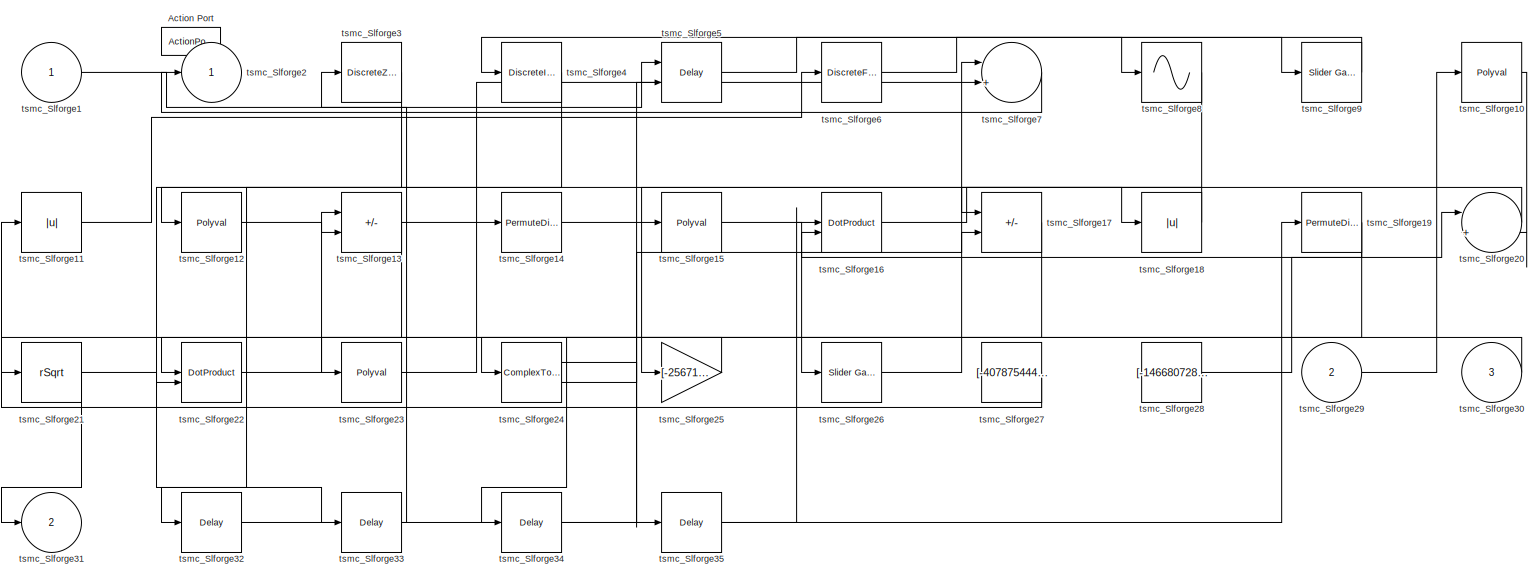
[diagram: tsmc_Slforge92 - part 1/1, most of the canvas]
BLOCK [SubSystem] tsmc_Slforge92
  Ports = [3, 2, 0, 0, 0, 0, 0, 1]
  RequestExecContextInheritance = off
  TreatAsAtomicUnit = on
BLOCK [ActionPort] tsmc_Slforge92/Action Port
  ActionPortLabel = if { }
BLOCK [Inport] tsmc_Slforge92/tsmc_Slforge1
BLOCK [Polyval] tsmc_Slforge92/tsmc_Slforge10
  Coefs = [ +2.081618890e-019, -1.441693666e-014, +4.719686976e-010, -8.536869453e-006, +1.621573104e-001, -8.087801117e+001 ]
BLOCK [Abs] tsmc_Slforge92/tsmc_Slforge11
  SaturateOnIntegerOverflow = off
BLOCK [Polyval] tsmc_Slforge92/tsmc_Slforge12
  Coefs = [ +2.081618890e-019, -1.441693666e-014, +4.719686976e-010, -8.536869453e-006, +1.621573104e-001, -8.087801117e+001 ]
BLOCK [Sum] tsmc_Slforge92/tsmc_Slforge13
  IconShape = rectangular
  Inputs = -+
  Ports = [2, 1]
BLOCK [PermuteDimensions] tsmc_Slforge92/tsmc_Slforge14
BLOCK [Polyval] tsmc_Slforge92/tsmc_Slforge15
  Coefs = [ +2.081618890e-019, -1.441693666e-014, +4.719686976e-010, -8.536869453e-006, +1.621573104e-001, -8.087801117e+001 ]
BLOCK [DotProduct] tsmc_Slforge92/tsmc_Slforge16
  OutDataTypeStr = Inherit: Inherit via internal rule
BLOCK [Sum] tsmc_Slforge92/tsmc_Slforge17
  IconShape = rectangular
  Inputs = -+
  Ports = [2, 1]
BLOCK [Abs] tsmc_Slforge92/tsmc_Slforge18
  SaturateOnIntegerOverflow = off
BLOCK [PermuteDimensions] tsmc_Slforge92/tsmc_Slforge19
BLOCK [Outport] tsmc_Slforge92/tsmc_Slforge2
  VectorParamsAs1DForOutWhenUnconnected = off
BLOCK [Sum] tsmc_Slforge92/tsmc_Slforge20
  Inputs = |++
  Ports = [2, 1]
BLOCK [Sqrt] tsmc_Slforge92/tsmc_Slforge21
  AlgorithmType = Newton-Raphson
  Operator = rSqrt
BLOCK [DotProduct] tsmc_Slforge92/tsmc_Slforge22
  OutDataTypeStr = Inherit: Inherit via internal rule
BLOCK [Polyval] tsmc_Slforge92/tsmc_Slforge23
  Coefs = [ +2.081618890e-019, -1.441693666e-014, +4.719686976e-010, -8.536869453e-006, +1.621573104e-001, -8.087801117e+001 ]
BLOCK [ComplexToMagnitudeAngle] tsmc_Slforge92/tsmc_Slforge24
  Ports = [1, 2]
BLOCK [Gain] tsmc_Slforge92/tsmc_Slforge25
  Gain = [-256712018.319806]
BLOCK [Reference] tsmc_Slforge92/tsmc_Slforge26  REF=simulink/Math
Operations/Slider
Gain
  Ports = [1, 1]
  SourceBlock = simulink/Math\nOperations/Slider\nGain
  SourceProductBaseCode = SL
  SourceType = Slider Gain
BLOCK [Constant] tsmc_Slforge92/tsmc_Slforge27
  SampleTime = 1
  Value = [-407875444.814808]
BLOCK [Constant] tsmc_Slforge92/tsmc_Slforge28
  SampleTime = 1
  Value = [-146680728.315468]
BLOCK [Inport] tsmc_Slforge92/tsmc_Slforge29
  Port = 2
BLOCK [DiscreteZeroPole] tsmc_Slforge92/tsmc_Slforge3
  Gain = 1
  Poles = [0 0.5]
  SampleTime = -1
BLOCK [Inport] tsmc_Slforge92/tsmc_Slforge30
  Port = 3
BLOCK [Outport] tsmc_Slforge92/tsmc_Slforge31
  Port = 2
  VectorParamsAs1DForOutWhenUnconnected = off
BLOCK [Delay] tsmc_Slforge92/tsmc_Slforge32
  InputPortMap = u0
  Ports = [1, 1]
BLOCK [Delay] tsmc_Slforge92/tsmc_Slforge33
  InputPortMap = u0
  Ports = [1, 1]
BLOCK [Delay] tsmc_Slforge92/tsmc_Slforge34
  InputPortMap = u0
  Ports = [1, 1]
BLOCK [Delay] tsmc_Slforge92/tsmc_Slforge35
  InputPortMap = u0
  Ports = [1, 1]
BLOCK [DiscreteIntegrator] tsmc_Slforge92/tsmc_Slforge4
  ICPrevOutput = DiscIntNeverNeededParam
  ICPrevScaledInput = DiscIntNeverNeededParam
  InitialConditionSetting = Auto
  Ports = [1, 1]
  SampleTime = -1
BLOCK [Delay] tsmc_Slforge92/tsmc_Slforge5
  DelayLengthSource = Input port
  InputPortMap = u0,p1
  Ports = [2, 1]
BLOCK [DiscreteFilter] tsmc_Slforge92/tsmc_Slforge6
  InputPortMap = u0
  Ports = [1, 1]
BLOCK [Sum] tsmc_Slforge92/tsmc_Slforge7
  Inputs = |++
  Ports = [2, 1]
BLOCK [Sin] tsmc_Slforge92/tsmc_Slforge8
  Ports = [1, 1]
  SampleTime = 0
  TimeSource = Use external signal
BLOCK [Reference] tsmc_Slforge92/tsmc_Slforge9  REF=simulink/Math
Operations/Slider
Gain
  Ports = [1, 1]
  SourceBlock = simulink/Math\nOperations/Slider\nGain
  SourceProductBaseCode = SL
  SourceType = Slider Gain
BLOCK [SubSystem] tsmc_Slforge93
  Ports = [4, 1, 0, 0, 0, 0, 0, 1]
  RequestExecContextInheritance = off
  TreatAsAtomicUnit = on
BLOCK [ActionPort] tsmc_Slforge93/Action Port
  ActionPortLabel = else { }
BLOCK [Inport] tsmc_Slforge93/tsmc_Slforge1
BLOCK [Sum] tsmc_Slforge93/tsmc_Slforge10
  Inputs = |++
  Ports = [2, 1]
BLOCK [Bias] tsmc_Slforge93/tsmc_Slforge11
  Bias = [-390575493.818071]
  SaturateOnIntegerOverflow = off
BLOCK [Reference] tsmc_Slforge93/tsmc_Slforge12  REF=simulink/Math
Operations/MinMax
Running
Resettable
  Ports = [2, 1]
  SourceBlock = simulink/Math\nOperations/MinMax\nRunning\nResettable
  SourceProductBaseCode = SL
  SourceType = MinMax Running Resettable
BLOCK [ComplexToRealImag] tsmc_Slforge93/tsmc_Slforge13
  Ports = [1, 2]
BLOCK [Abs] tsmc_Slforge93/tsmc_Slforge14
  SaturateOnIntegerOverflow = off
BLOCK [Squeeze] tsmc_Slforge93/tsmc_Slforge15
BLOCK [Squeeze] tsmc_Slforge93/tsmc_Slforge16
BLOCK [Polyval] tsmc_Slforge93/tsmc_Slforge17
  Coefs = [ +2.081618890e-019, -1.441693666e-014, +4.719686976e-010, -8.536869453e-006, +1.621573104e-001, -8.087801117e+001 ]
BLOCK [Polyval] tsmc_Slforge93/tsmc_Slforge18
  Coefs = [ +2.081618890e-019, -1.441693666e-014, +4.719686976e-010, -8.536869453e-006, +1.621573104e-001, -8.087801117e+001 ]
BLOCK [Constant] tsmc_Slforge93/tsmc_Slforge19
  SampleTime = 1
  Value = [296436115.168826]
BLOCK [Outport] tsmc_Slforge93/tsmc_Slforge2
  VectorParamsAs1DForOutWhenUnconnected = off
BLOCK [Constant] tsmc_Slforge93/tsmc_Slforge20
  SampleTime = 1
  Value = [801294350.649234]
BLOCK [Inport] tsmc_Slforge93/tsmc_Slforge21
  Port = 2
BLOCK [Inport] tsmc_Slforge93/tsmc_Slforge22
  Port = 3
BLOCK [Inport] tsmc_Slforge93/tsmc_Slforge23
  Port = 4
BLOCK [Delay] tsmc_Slforge93/tsmc_Slforge24
  InputPortMap = u0
  Ports = [1, 1]
BLOCK [Delay] tsmc_Slforge93/tsmc_Slforge25
  InputPortMap = u0
  Ports = [1, 1]
BLOCK [Delay] tsmc_Slforge93/tsmc_Slforge3
  DelayLengthSource = Input port
  InputPortMap = u0,p1
  Ports = [2, 1]
BLOCK [DiscreteFir] tsmc_Slforge93/tsmc_Slforge4
  InputPortMap = u0
  OutputPortMap = o0
  Ports = [1, 1]
BLOCK [Delay] tsmc_Slforge93/tsmc_Slforge5
  DelayLengthSource = Input port
  InputPortMap = u0,p1
  Ports = [2, 1]
BLOCK [Trigonometry] tsmc_Slforge93/tsmc_Slforge6
  Ports = [1, 1]
BLOCK [MinMax] tsmc_Slforge93/tsmc_Slforge7
  Inputs = 2
  Ports = [2, 1]
BLOCK [Trigonometry] tsmc_Slforge93/tsmc_Slforge8
  Ports = [1, 1]
BLOCK [Rounding] tsmc_Slforge93/tsmc_Slforge9
BLOCK [SubSystem] tsmc_Slforge94
  Ports = [3, 1, 0, 0, 0, 0, 0, 1]
  RequestExecContextInheritance = off
  TreatAsAtomicUnit = on
BLOCK [ActionPort] tsmc_Slforge94/Action Port
  ActionPortLabel = if { }
BLOCK [Inport] tsmc_Slforge94/tsmc_Slforge1
BLOCK [Reference] tsmc_Slforge94/tsmc_Slforge10  REF=simulink/Math
Operations/Slider
Gain
  Ports = [1, 1]
  SourceBlock = simulink/Math\nOperations/Slider\nGain
  SourceProductBaseCode = SL
  SourceType = Slider Gain
BLOCK [Math] tsmc_Slforge94/tsmc_Slforge11
  Operator = mod
  Ports = [2, 1]
  SignedPower = on
BLOCK [ComplexToMagnitudeAngle] tsmc_Slforge94/tsmc_Slforge12
  Ports = [1, 2]
BLOCK [Product] tsmc_Slforge94/tsmc_Slforge13
  Inputs = **
  Ports = [2, 1]
BLOCK [PermuteDimensions] tsmc_Slforge94/tsmc_Slforge14
BLOCK [Sum] tsmc_Slforge94/tsmc_Slforge15
  IconShape = rectangular
  Inputs = +
  Ports = [1, 1]
BLOCK [Rounding] tsmc_Slforge94/tsmc_Slforge16
BLOCK [ComplexToRealImag] tsmc_Slforge94/tsmc_Slforge17
  Ports = [1, 2]
BLOCK [Sqrt] tsmc_Slforge94/tsmc_Slforge18
BLOCK [Sum] tsmc_Slforge94/tsmc_Slforge19
  IconShape = rectangular
  Ports = [2, 1]
BLOCK [Outport] tsmc_Slforge94/tsmc_Slforge2
  VectorParamsAs1DForOutWhenUnconnected = off
BLOCK [Sum] tsmc_Slforge94/tsmc_Slforge20
  IconShape = rectangular
  Ports = [2, 1]
BLOCK [Reference] tsmc_Slforge94/tsmc_Slforge21  REF=simulink/Math
Operations/MinMax
Running
Resettable
  Ports = [2, 1]
  SourceBlock = simulink/Math\nOperations/MinMax\nRunning\nResettable
  SourceProductBaseCode = SL
  SourceType = MinMax Running Resettable
BLOCK [Sum] tsmc_Slforge94/tsmc_Slforge22
  IconShape = rectangular
  Inputs = --
  Ports = [2, 1]
BLOCK [Sum] tsmc_Slforge94/tsmc_Slforge23
  Inputs = |++
  Ports = [2, 1]
BLOCK [Product] tsmc_Slforge94/tsmc_Slforge24
  Inputs = *
  Ports = [1, 1]
BLOCK [Assignment] tsmc_Slforge94/tsmc_Slforge25
  DiagnosticForDimensions = Warning
  IndexOptions = Index vector (dialog)
  Indices = 1
  OutputSizes = 1
  Ports = [2, 1]
BLOCK [Math] tsmc_Slforge94/tsmc_Slforge26
  Operator = log10
  Ports = [1, 1]
  SignedPower = on
BLOCK [PermuteDimensions] tsmc_Slforge94/tsmc_Slforge27
BLOCK [Sum] tsmc_Slforge94/tsmc_Slforge28
  IconShape = rectangular
  Inputs = +
  Ports = [1, 1]
BLOCK [Constant] tsmc_Slforge94/tsmc_Slforge29
  SampleTime = 1
  Value = [483247829.602525]
BLOCK [Delay] tsmc_Slforge94/tsmc_Slforge3
  InputPortMap = u0,e6
  Ports = [2, 1]
  ShowEnablePort = on
BLOCK [Inport] tsmc_Slforge94/tsmc_Slforge30
  Port = 2
BLOCK [Inport] tsmc_Slforge94/tsmc_Slforge31
  Port = 3
BLOCK [Delay] tsmc_Slforge94/tsmc_Slforge32
  InputPortMap = u0
  Ports = [1, 1]
BLOCK [Delay] tsmc_Slforge94/tsmc_Slforge33
  InputPortMap = u0
  Ports = [1, 1]
BLOCK [Delay] tsmc_Slforge94/tsmc_Slforge34
  InputPortMap = u0
  Ports = [1, 1]
BLOCK [Delay] tsmc_Slforge94/tsmc_Slforge35
  InputPortMap = u0
  Ports = [1, 1]
BLOCK [Delay] tsmc_Slforge94/tsmc_Slforge4
  DelayLengthSource = Input port
  InputPortMap = u0,p1
  Ports = [2, 1]
BLOCK [ComplexToMagnitudeAngle] tsmc_Slforge94/tsmc_Slforge5
  Ports = [1, 2]
BLOCK [Sum] tsmc_Slforge94/tsmc_Slforge6
  IconShape = rectangular
  Inputs = +-
  Ports = [2, 1]
BLOCK [Product] tsmc_Slforge94/tsmc_Slforge7
  Inputs = *
  Ports = [1, 1]
BLOCK [ComplexToMagnitudeAngle] tsmc_Slforge94/tsmc_Slforge8
  Ports = [1, 2]
BLOCK [Product] tsmc_Slforge94/tsmc_Slforge9
  Inputs = *
  Ports = [1, 1]
BLOCK [SubSystem] tsmc_Slforge95
  Ports = [4, 2, 0, 0, 0, 0, 0, 1]
  RequestExecContextInheritance = off
  TreatAsAtomicUnit = on
BLOCK [ActionPort] tsmc_Slforge95/Action Port
  ActionPortLabel = else { }
BLOCK [Inport] tsmc_Slforge95/tsmc_Slforge1
BLOCK [Squeeze] tsmc_Slforge95/tsmc_Slforge10
BLOCK [Sum] tsmc_Slforge95/tsmc_Slforge11
  Inputs = |++
  Ports = [2, 1]
BLOCK [Polyval] tsmc_Slforge95/tsmc_Slforge12
  Coefs = [ +2.081618890e-019, -1.441693666e-014, +4.719686976e-010, -8.536869453e-006, +1.621573104e-001, -8.087801117e+001 ]
BLOCK [Abs] tsmc_Slforge95/tsmc_Slforge13
  SaturateOnIntegerOverflow = off
BLOCK [Reference] tsmc_Slforge95/tsmc_Slforge14  REF=simulink/Math
Operations/Slider
Gain
  Ports = [1, 1]
  SourceBlock = simulink/Math\nOperations/Slider\nGain
  SourceProductBaseCode = SL
  SourceType = Slider Gain
BLOCK [Reference] tsmc_Slforge95/tsmc_Slforge15  REF=simulink/Math
Operations/Slider
Gain
  Ports = [1, 1]
  SourceBlock = simulink/Math\nOperations/Slider\nGain
  SourceProductBaseCode = SL
  SourceType = Slider Gain
BLOCK [ComplexToMagnitudeAngle] tsmc_Slforge95/tsmc_Slforge16
  Ports = [1, 2]
BLOCK [Assignment] tsmc_Slforge95/tsmc_Slforge17
  DiagnosticForDimensions = Warning
  IndexOptions = Index vector (dialog)
  Indices = 1
  OutputSizes = 1
  Ports = [2, 1]
BLOCK [UnaryMinus] tsmc_Slforge95/tsmc_Slforge18
BLOCK [Assignment] tsmc_Slforge95/tsmc_Slforge19
  DiagnosticForDimensions = Warning
  IndexOptions = Index vector (dialog)
  Indices = 1
  OutputSizes = 1
  Ports = [2, 1]
BLOCK [Outport] tsmc_Slforge95/tsmc_Slforge2
  VectorParamsAs1DForOutWhenUnconnected = off
BLOCK [Sqrt] tsmc_Slforge95/tsmc_Slforge20
BLOCK [Math] tsmc_Slforge95/tsmc_Slforge21
  Operator = 10^u
  Ports = [1, 1]
  SignedPower = on
BLOCK [Math] tsmc_Slforge95/tsmc_Slforge22
  Operator = rem
  Ports = [2, 1]
  SignedPower = on
BLOCK [Assignment] tsmc_Slforge95/tsmc_Slforge23
  DiagnosticForDimensions = Warning
  IndexOptions = Index vector (dialog)
  Indices = 1
  OutputSizes = 1
  Ports = [2, 1]
BLOCK [Product] tsmc_Slforge95/tsmc_Slforge24
  Inputs = **
  Ports = [2, 1]
BLOCK [Gain] tsmc_Slforge95/tsmc_Slforge25
  Gain = [-241050901.710005]
BLOCK [Inport] tsmc_Slforge95/tsmc_Slforge26
  Port = 2
BLOCK [Inport] tsmc_Slforge95/tsmc_Slforge27
  Port = 3
BLOCK [Inport] tsmc_Slforge95/tsmc_Slforge28
  Port = 4
BLOCK [Outport] tsmc_Slforge95/tsmc_Slforge29
  Port = 2
  VectorParamsAs1DForOutWhenUnconnected = off
BLOCK [DiscreteFilter] tsmc_Slforge95/tsmc_Slforge3
  InputPortMap = u0
  Ports = [1, 1]
BLOCK [Delay] tsmc_Slforge95/tsmc_Slforge30
  InputPortMap = u0
  Ports = [1, 1]
BLOCK [Delay] tsmc_Slforge95/tsmc_Slforge31
  InputPortMap = u0
  Ports = [1, 1]
BLOCK [Reference] tsmc_Slforge95/tsmc_Slforge4  REF=simulink/Discrete/Transfer Fcn
Lead or Lag
  Ports = [1, 1]
  SourceBlock = simulink/Discrete/Transfer Fcn\nLead or Lag
  SourceProductBaseCode = SL
  SourceType = Lead or Lag Compensator
BLOCK [Product] tsmc_Slforge95/tsmc_Slforge5
  Inputs = **
  Ports = [2, 1]
BLOCK [UnaryMinus] tsmc_Slforge95/tsmc_Slforge6
BLOCK [Sin] tsmc_Slforge95/tsmc_Slforge7
  Ports = [1, 1]
  SampleTime = 0
  TimeSource = Use external signal
BLOCK [Sum] tsmc_Slforge95/tsmc_Slforge8
  Inputs = |++
  Ports = [2, 1]
BLOCK [Abs] tsmc_Slforge95/tsmc_Slforge9
  SaturateOnIntegerOverflow = off
BLOCK [SubSystem] tsmc_Slforge96
  Ports = [2, 1, 0, 0, 0, 0, 0, 1]
  RequestExecContextInheritance = off
  TreatAsAtomicUnit = on
BLOCK [ActionPort] tsmc_Slforge96/Action Port
  ActionPortLabel = if { }
BLOCK [Inport] tsmc_Slforge96/tsmc_Slforge1
BLOCK [Squeeze] tsmc_Slforge96/tsmc_Slforge10
BLOCK [Polyval] tsmc_Slforge96/tsmc_Slforge11
  Coefs = [ +2.081618890e-019, -1.441693666e-014, +4.719686976e-010, -8.536869453e-006, +1.621573104e-001, -8.087801117e+001 ]
BLOCK [Product] tsmc_Slforge96/tsmc_Slforge12
  Inputs = *
  Ports = [1, 1]
BLOCK [Product] tsmc_Slforge96/tsmc_Slforge13
  Inputs = **
  Ports = [2, 1]
BLOCK [Sum] tsmc_Slforge96/tsmc_Slforge14
  IconShape = rectangular
  Inputs = +
  Ports = [1, 1]
BLOCK [Math] tsmc_Slforge96/tsmc_Slforge15
  Operator = conj
  Ports = [1, 1]
  SignedPower = on
BLOCK [Rounding] tsmc_Slforge96/tsmc_Slforge16
BLOCK [PermuteDimensions] tsmc_Slforge96/tsmc_Slforge17
BLOCK [PermuteDimensions] tsmc_Slforge96/tsmc_Slforge18
BLOCK [Abs] tsmc_Slforge96/tsmc_Slforge19
  SaturateOnIntegerOverflow = off
BLOCK [Outport] tsmc_Slforge96/tsmc_Slforge2
  VectorParamsAs1DForOutWhenUnconnected = off
BLOCK [Trigonometry] tsmc_Slforge96/tsmc_Slforge20
  Ports = [1, 1]
BLOCK [Polyval] tsmc_Slforge96/tsmc_Slforge21
  Coefs = [ +2.081618890e-019, -1.441693666e-014, +4.719686976e-010, -8.536869453e-006, +1.621573104e-001, -8.087801117e+001 ]
BLOCK [UnaryMinus] tsmc_Slforge96/tsmc_Slforge22
BLOCK [Sqrt] tsmc_Slforge96/tsmc_Slforge23
BLOCK [Product] tsmc_Slforge96/tsmc_Slforge24
  Inputs = *
  Ports = [1, 1]
BLOCK [Gain] tsmc_Slforge96/tsmc_Slforge25
  Gain = [195514505.361535]
BLOCK [Reshape] tsmc_Slforge96/tsmc_Slforge26
  Ports = [1, 1]
BLOCK [Product] tsmc_Slforge96/tsmc_Slforge27
  Inputs = *
  Ports = [1, 1]
BLOCK [Constant] tsmc_Slforge96/tsmc_Slforge28
  SampleTime = 1
  Value = [336232862.689419]
BLOCK [Inport] tsmc_Slforge96/tsmc_Slforge29
  Port = 2
BLOCK [Reference] tsmc_Slforge96/tsmc_Slforge3  REF=simulink/Discrete/Transfer Fcn
First Order
  Ports = [1, 1]
  SourceBlock = simulink/Discrete/Transfer Fcn\nFirst Order
  SourceProductBaseCode = SL
  SourceType = First Order Transfer Fcn
BLOCK [Delay] tsmc_Slforge96/tsmc_Slforge30
  InputPortMap = u0
  Ports = [1, 1]
BLOCK [Delay] tsmc_Slforge96/tsmc_Slforge31
  InputPortMap = u0
  Ports = [1, 1]
BLOCK [Product] tsmc_Slforge96/tsmc_Slforge4
  Ports = [2, 1]
BLOCK [Sqrt] tsmc_Slforge96/tsmc_Slforge5
  AlgorithmType = Newton-Raphson
  Operator = rSqrt
BLOCK [Sum] tsmc_Slforge96/tsmc_Slforge6
  IconShape = rectangular
  Inputs = +
  Ports = [1, 1]
BLOCK [Reference] tsmc_Slforge96/tsmc_Slforge7  REF=simulink/Math
Operations/MinMax
Running
Resettable
  Ports = [2, 1]
  SourceBlock = simulink/Math\nOperations/MinMax\nRunning\nResettable
  SourceProductBaseCode = SL
  SourceType = MinMax Running Resettable
BLOCK [Reference] tsmc_Slforge96/tsmc_Slforge8  REF=simulink/Math
Operations/Slider
Gain
  Ports = [1, 1]
  SourceBlock = simulink/Math\nOperations/Slider\nGain
  SourceProductBaseCode = SL
  SourceType = Slider Gain
BLOCK [Squeeze] tsmc_Slforge96/tsmc_Slforge9
BLOCK [SubSystem] tsmc_Slforge97
  Ports = [2, 1, 0, 0, 0, 0, 0, 1]
  RequestExecContextInheritance = off
  TreatAsAtomicUnit = on
BLOCK [ActionPort] tsmc_Slforge97/Action Port
  ActionPortLabel = else { }
BLOCK [Inport] tsmc_Slforge97/tsmc_Slforge1
BLOCK [UnaryMinus] tsmc_Slforge97/tsmc_Slforge10
BLOCK [Math] tsmc_Slforge97/tsmc_Slforge11
  Operator = mod
  Ports = [2, 1]
  SignedPower = on
BLOCK [Sqrt] tsmc_Slforge97/tsmc_Slforge12
  AlgorithmType = Newton-Raphson
  Operator = rSqrt
BLOCK [Product] tsmc_Slforge97/tsmc_Slforge13
  Inputs = *
  Ports = [1, 1]
BLOCK [Sum] tsmc_Slforge97/tsmc_Slforge14
  IconShape = rectangular
  Inputs = -+
  Ports = [2, 1]
BLOCK [Squeeze] tsmc_Slforge97/tsmc_Slforge15
BLOCK [Sqrt] tsmc_Slforge97/tsmc_Slforge16
  AlgorithmType = Newton-Raphson
  Operator = rSqrt
BLOCK [DotProduct] tsmc_Slforge97/tsmc_Slforge17
  OutDataTypeStr = Inherit: Inherit via internal rule
BLOCK [Reshape] tsmc_Slforge97/tsmc_Slforge18
  Ports = [1, 1]
BLOCK [Sqrt] tsmc_Slforge97/tsmc_Slforge19
BLOCK [Outport] tsmc_Slforge97/tsmc_Slforge2
  VectorParamsAs1DForOutWhenUnconnected = off
BLOCK [Product] tsmc_Slforge97/tsmc_Slforge20
  Ports = [2, 1]
BLOCK [Sqrt] tsmc_Slforge97/tsmc_Slforge21
  AlgorithmType = Newton-Raphson
  Operator = rSqrt
BLOCK [Product] tsmc_Slforge97/tsmc_Slforge22
  Ports = [2, 1]
BLOCK [Sum] tsmc_Slforge97/tsmc_Slforge23
  IconShape = rectangular
  Inputs = +
  Ports = [1, 1]
BLOCK [Constant] tsmc_Slforge97/tsmc_Slforge24
  SampleTime = 1
  Value = [-511493439.314214]
BLOCK [Inport] tsmc_Slforge97/tsmc_Slforge25
  Port = 2
BLOCK [Delay] tsmc_Slforge97/tsmc_Slforge26
  InputPortMap = u0
  Ports = [1, 1]
BLOCK [Delay] tsmc_Slforge97/tsmc_Slforge27
  InputPortMap = u0
  Ports = [1, 1]
BLOCK [Delay] tsmc_Slforge97/tsmc_Slforge28
  InputPortMap = u0
  Ports = [1, 1]
BLOCK [Delay] tsmc_Slforge97/tsmc_Slforge29
  InputPortMap = u0
  Ports = [1, 1]
BLOCK [Reference] tsmc_Slforge97/tsmc_Slforge3  REF=simulink/Continuous/PID Controller (2DOF)
  Ports = [2, 1]
  SourceBlock = simulink/Continuous/PID Controller (2DOF)
  SourceProductBaseCode = SL
  SourceType = PID 2dof
BLOCK [Delay] tsmc_Slforge97/tsmc_Slforge30
  InputPortMap = u0
  Ports = [1, 1]
BLOCK [Math] tsmc_Slforge97/tsmc_Slforge4
  Operator = transpose
  Ports = [1, 1]
  SignedPower = on
BLOCK [Product] tsmc_Slforge97/tsmc_Slforge5
  Ports = [2, 1]
BLOCK [Gain] tsmc_Slforge97/tsmc_Slforge6
  Gain = [-111827001.508387]
BLOCK [Sqrt] tsmc_Slforge97/tsmc_Slforge7
  AlgorithmType = Newton-Raphson
  Operator = rSqrt
BLOCK [Product] tsmc_Slforge97/tsmc_Slforge8
  Inputs = **
  Ports = [2, 1]
BLOCK [Assignment] tsmc_Slforge97/tsmc_Slforge9
  DiagnosticForDimensions = Warning
  IndexOptions = Index vector (dialog)
  Indices = 1
  OutputSizes = 1
  Ports = [2, 1]
BLOCK [SubSystem] tsmc_Slforge98
  Ports = [2, 1, 0, 0, 0, 0, 0, 1]
  RequestExecContextInheritance = off
  TreatAsAtomicUnit = on
BLOCK [ActionPort] tsmc_Slforge98/Action Port
  ActionPortLabel = if { }
BLOCK [Inport] tsmc_Slforge98/tsmc_Slforge1
BLOCK [Rounding] tsmc_Slforge98/tsmc_Slforge10
BLOCK [Sum] tsmc_Slforge98/tsmc_Slforge11
  Inputs = |++
  Ports = [2, 1]
BLOCK [Rounding] tsmc_Slforge98/tsmc_Slforge12
BLOCK [Assignment] tsmc_Slforge98/tsmc_Slforge13
  DiagnosticForDimensions = Warning
  IndexOptions = Index vector (dialog)
  Indices = 1
  OutputSizes = 1
  Ports = [2, 1]
BLOCK [Sin] tsmc_Slforge98/tsmc_Slforge14
  Ports = [1, 1]
  SampleTime = 0
  TimeSource = Use external signal
BLOCK [Rounding] tsmc_Slforge98/tsmc_Slforge15
BLOCK [ComplexToMagnitudeAngle] tsmc_Slforge98/tsmc_Slforge16
  Ports = [1, 2]
BLOCK [ComplexToRealImag] tsmc_Slforge98/tsmc_Slforge17
  Ports = [1, 2]
BLOCK [Reshape] tsmc_Slforge98/tsmc_Slforge18
  Ports = [1, 1]
BLOCK [Sqrt] tsmc_Slforge98/tsmc_Slforge19
BLOCK [Outport] tsmc_Slforge98/tsmc_Slforge2
  VectorParamsAs1DForOutWhenUnconnected = off
BLOCK [Sum] tsmc_Slforge98/tsmc_Slforge20
  IconShape = rectangular
  Inputs = +-
  Ports = [2, 1]
BLOCK [Math] tsmc_Slforge98/tsmc_Slforge21
  Operator = rem
  Ports = [2, 1]
  SignedPower = on
BLOCK [Sum] tsmc_Slforge98/tsmc_Slforge22
  IconShape = rectangular
  Inputs = +
  Ports = [1, 1]
BLOCK [Product] tsmc_Slforge98/tsmc_Slforge23
  Inputs = **
  Ports = [2, 1]
BLOCK [Sqrt] tsmc_Slforge98/tsmc_Slforge24
  AlgorithmType = Newton-Raphson
  Operator = rSqrt
BLOCK [UnaryMinus] tsmc_Slforge98/tsmc_Slforge25
BLOCK [Sqrt] tsmc_Slforge98/tsmc_Slforge26
  AlgorithmType = Newton-Raphson
  Operator = rSqrt
BLOCK [UnaryMinus] tsmc_Slforge98/tsmc_Slforge27
BLOCK [Reference] tsmc_Slforge98/tsmc_Slforge28  REF=simulink/Math
Operations/MinMax
Running
Resettable
  Ports = [2, 1]
  SourceBlock = simulink/Math\nOperations/MinMax\nRunning\nResettable
  SourceProductBaseCode = SL
  SourceType = MinMax Running Resettable
BLOCK [Inport] tsmc_Slforge98/tsmc_Slforge29
  Port = 2
BLOCK [Delay] tsmc_Slforge98/tsmc_Slforge3
  DelayLengthSource = Input port
  InputPortMap = u0,p1
  Ports = [2, 1]
BLOCK [Delay] tsmc_Slforge98/tsmc_Slforge30
  InputPortMap = u0
  Ports = [1, 1]
BLOCK [Delay] tsmc_Slforge98/tsmc_Slforge31
  InputPortMap = u0
  Ports = [1, 1]
BLOCK [Delay] tsmc_Slforge98/tsmc_Slforge32
  InputPortMap = u0
  Ports = [1, 1]
BLOCK [Delay] tsmc_Slforge98/tsmc_Slforge33
  InputPortMap = u0
  Ports = [1, 1]
BLOCK [Reference] tsmc_Slforge98/tsmc_Slforge4  REF=simulink/Discrete/Difference
  Ports = [1, 1]
  SourceBlock = simulink/Discrete/Difference
  SourceProductBaseCode = SL
  SourceType = Difference
BLOCK [Bias] tsmc_Slforge98/tsmc_Slforge5
  Bias = [-442020874.667789]
  SaturateOnIntegerOverflow = off
BLOCK [Sqrt] tsmc_Slforge98/tsmc_Slforge6
  AlgorithmType = Newton-Raphson
  Operator = rSqrt
BLOCK [Rounding] tsmc_Slforge98/tsmc_Slforge7
BLOCK [PermuteDimensions] tsmc_Slforge98/tsmc_Slforge8
BLOCK [Polyval] tsmc_Slforge98/tsmc_Slforge9
  Coefs = [ +2.081618890e-019, -1.441693666e-014, +4.719686976e-010, -8.536869453e-006, +1.621573104e-001, -8.087801117e+001 ]
BLOCK [SubSystem] tsmc_Slforge99
  Ports = [4, 1, 0, 0, 0, 0, 0, 1]
  RequestExecContextInheritance = off
  TreatAsAtomicUnit = on
BLOCK [ActionPort] tsmc_Slforge99/Action Port
  ActionPortLabel = else { }
BLOCK [Inport] tsmc_Slforge99/tsmc_Slforge1
BLOCK [Product] tsmc_Slforge99/tsmc_Slforge10
  Ports = [2, 1]
BLOCK [Rounding] tsmc_Slforge99/tsmc_Slforge11
BLOCK [Sum] tsmc_Slforge99/tsmc_Slforge12
  IconShape = rectangular
  Inputs = +-
  Ports = [2, 1]
BLOCK [Product] tsmc_Slforge99/tsmc_Slforge13
  Inputs = **
  Ports = [2, 1]
BLOCK [Sqrt] tsmc_Slforge99/tsmc_Slforge14
BLOCK [Sum] tsmc_Slforge99/tsmc_Slforge15
  Inputs = |++
  Ports = [2, 1]
BLOCK [Product] tsmc_Slforge99/tsmc_Slforge16
  Inputs = **
  Ports = [2, 1]
BLOCK [Reference] tsmc_Slforge99/tsmc_Slforge17  REF=simulink/Math
Operations/MinMax
Running
Resettable
  Ports = [2, 1]
  SourceBlock = simulink/Math\nOperations/MinMax\nRunning\nResettable
  SourceProductBaseCode = SL
  SourceType = MinMax Running Resettable
BLOCK [Abs] tsmc_Slforge99/tsmc_Slforge18
  SaturateOnIntegerOverflow = off
BLOCK [UnaryMinus] tsmc_Slforge99/tsmc_Slforge19
BLOCK [Outport] tsmc_Slforge99/tsmc_Slforge2
  VectorParamsAs1DForOutWhenUnconnected = off
BLOCK [Sum] tsmc_Slforge99/tsmc_Slforge20
  IconShape = rectangular
  Ports = [2, 1]
BLOCK [Assignment] tsmc_Slforge99/tsmc_Slforge21
  DiagnosticForDimensions = Warning
  IndexOptions = Index vector (dialog)
  Indices = 1
  OutputSizes = 1
  Ports = [2, 1]
BLOCK [MinMax] tsmc_Slforge99/tsmc_Slforge22
  Ports = [1, 1]
BLOCK [Polyval] tsmc_Slforge99/tsmc_Slforge23
  Coefs = [ +2.081618890e-019, -1.441693666e-014, +4.719686976e-010, -8.536869453e-006, +1.621573104e-001, -8.087801117e+001 ]
BLOCK [Sum] tsmc_Slforge99/tsmc_Slforge24
  IconShape = rectangular
  Inputs = +
  Ports = [1, 1]
BLOCK [Constant] tsmc_Slforge99/tsmc_Slforge25
  SampleTime = 1
  Value = [611988040.780699]
BLOCK [Inport] tsmc_Slforge99/tsmc_Slforge26
  Port = 2
BLOCK [Inport] tsmc_Slforge99/tsmc_Slforge27
  Port = 3
BLOCK [Inport] tsmc_Slforge99/tsmc_Slforge28
  Port = 4
BLOCK [Delay] tsmc_Slforge99/tsmc_Slforge29
  InputPortMap = u0
  Ports = [1, 1]
BLOCK [DiscreteZeroPole] tsmc_Slforge99/tsmc_Slforge3
  Gain = 1
  Poles = [0 0.5]
  SampleTime = -1
BLOCK [Delay] tsmc_Slforge99/tsmc_Slforge4
  InputPortMap = u0,e6
  Ports = [2, 1]
  ShowEnablePort = on
BLOCK [UnitDelay] tsmc_Slforge99/tsmc_Slforge5
  HasFrameUpgradeWarning = on
  SampleTime = -1
BLOCK [Sqrt] tsmc_Slforge99/tsmc_Slforge6
BLOCK [Sum] tsmc_Slforge99/tsmc_Slforge7
  IconShape = rectangular
  Ports = [2, 1]
BLOCK [Polyval] tsmc_Slforge99/tsmc_Slforge8
  Coefs = [ +2.081618890e-019, -1.441693666e-014, +4.719686976e-010, -8.536869453e-006, +1.621573104e-001, -8.087801117e+001 ]
BLOCK [Sum] tsmc_Slforge99/tsmc_Slforge9
  IconShape = rectangular
  Inputs = +-
  Ports = [2, 1]
LINE tsmc_Slforge100/tsmc_Slforge10:1 -> tsmc_Slforge100/tsmc_Slforge20:1
LINE tsmc_Slforge100/tsmc_Slforge11:1 -> tsmc_Slforge100/tsmc_Slforge28:1
LINE tsmc_Slforge100/tsmc_Slforge12:1 -> tsmc_Slforge100/tsmc_Slforge19:1
LINE tsmc_Slforge100/tsmc_Slforge13:1 -> tsmc_Slforge100/tsmc_Slforge17:1
LINE tsmc_Slforge100/tsmc_Slforge14:1 -> tsmc_Slforge100/tsmc_Slforge7:1
LINE tsmc_Slforge100/tsmc_Slforge15:1 -> tsmc_Slforge100/tsmc_Slforge18:2
LINE tsmc_Slforge100/tsmc_Slforge16:1 -> tsmc_Slforge100/tsmc_Slforge8:1
LINE tsmc_Slforge100/tsmc_Slforge17:1 -> tsmc_Slforge100/tsmc_Slforge6:2
LINE tsmc_Slforge100/tsmc_Slforge18:1 -> tsmc_Slforge100/tsmc_Slforge9:1
LINE tsmc_Slforge100/tsmc_Slforge19:1 -> tsmc_Slforge100/tsmc_Slforge2:1
LINE tsmc_Slforge100/tsmc_Slforge1:1 -> tsmc_Slforge100/tsmc_Slforge5:1
LINE tsmc_Slforge100/tsmc_Slforge20:1 -> tsmc_Slforge100/tsmc_Slforge6:1
LINE tsmc_Slforge100/tsmc_Slforge21:1 -> tsmc_Slforge100/tsmc_Slforge24:1
LINE tsmc_Slforge100/tsmc_Slforge22:1 -> tsmc_Slforge100/tsmc_Slforge15:2
NET tsmc_Slforge100/tsmc_Slforge22:2 -> tsmc_Slforge100/tsmc_Slforge12:1, tsmc_Slforge100/tsmc_Slforge14:1
LINE tsmc_Slforge100/tsmc_Slforge23:1 -> tsmc_Slforge100/tsmc_Slforge13:1
LINE tsmc_Slforge100/tsmc_Slforge24:1 -> tsmc_Slforge100/tsmc_Slforge3:1
LINE tsmc_Slforge100/tsmc_Slforge25:1 -> tsmc_Slforge100/tsmc_Slforge14:2
LINE tsmc_Slforge100/tsmc_Slforge26:1 -> tsmc_Slforge100/tsmc_Slforge16:1
LINE tsmc_Slforge100/tsmc_Slforge27:1 -> tsmc_Slforge100/tsmc_Slforge13:2
LINE tsmc_Slforge100/tsmc_Slforge28:1 -> tsmc_Slforge100/tsmc_Slforge18:1
LINE tsmc_Slforge100/tsmc_Slforge3:1 -> tsmc_Slforge100/tsmc_Slforge23:1
LINE tsmc_Slforge100/tsmc_Slforge4:1 -> tsmc_Slforge100/tsmc_Slforge10:1
LINE tsmc_Slforge100/tsmc_Slforge5:1 -> tsmc_Slforge100/tsmc_Slforge4:1
NET tsmc_Slforge100/tsmc_Slforge6:1 -> tsmc_Slforge100/tsmc_Slforge12:2, tsmc_Slforge100/tsmc_Slforge22:1
LINE tsmc_Slforge100/tsmc_Slforge7:1 -> tsmc_Slforge100/tsmc_Slforge15:1
LINE tsmc_Slforge100/tsmc_Slforge8:1 -> tsmc_Slforge100/tsmc_Slforge21:1
NET tsmc_Slforge100/tsmc_Slforge9:1 -> tsmc_Slforge100/tsmc_Slforge11:1, tsmc_Slforge100/tsmc_Slforge19:2
NET tsmc_Slforge100:1 -> tsmc_Slforge103:3, tsmc_Slforge167:1, tsmc_Slforge16:1, tsmc_Slforge75:4
LINE tsmc_Slforge101/tsmc_Slforge10:1 -> tsmc_Slforge101/tsmc_Slforge23:1
LINE tsmc_Slforge101/tsmc_Slforge11:1 -> tsmc_Slforge101/tsmc_Slforge24:1
LINE tsmc_Slforge101/tsmc_Slforge12:1 -> tsmc_Slforge101/tsmc_Slforge3:1
LINE tsmc_Slforge101/tsmc_Slforge13:1 -> tsmc_Slforge101/tsmc_Slforge25:1
LINE tsmc_Slforge101/tsmc_Slforge14:1 -> tsmc_Slforge101/tsmc_Slforge27:2
LINE tsmc_Slforge101/tsmc_Slforge15:1 -> tsmc_Slforge101/tsmc_Slforge18:1
LINE tsmc_Slforge101/tsmc_Slforge16:1 -> tsmc_Slforge101/tsmc_Slforge22:1
LINE tsmc_Slforge101/tsmc_Slforge17:1 -> tsmc_Slforge101/tsmc_Slforge11:1
LINE tsmc_Slforge101/tsmc_Slforge18:1 -> tsmc_Slforge101/tsmc_Slforge7:1
LINE tsmc_Slforge101/tsmc_Slforge19:1 -> tsmc_Slforge101/tsmc_Slforge16:1
LINE tsmc_Slforge101/tsmc_Slforge1:1 -> tsmc_Slforge101/tsmc_Slforge6:1
LINE tsmc_Slforge101/tsmc_Slforge20:1 -> tsmc_Slforge101/tsmc_Slforge26:1
LINE tsmc_Slforge101/tsmc_Slforge21:1 -> tsmc_Slforge101/tsmc_Slforge15:2
NET tsmc_Slforge101/tsmc_Slforge21:2 -> tsmc_Slforge101/tsmc_Slforge33:1, tsmc_Slforge101/tsmc_Slforge7:2
LINE tsmc_Slforge101/tsmc_Slforge22:1 -> tsmc_Slforge101/tsmc_Slforge10:1
LINE tsmc_Slforge101/tsmc_Slforge23:1 -> tsmc_Slforge101/tsmc_Slforge8:1
LINE tsmc_Slforge101/tsmc_Slforge23:2 -> tsmc_Slforge101/tsmc_Slforge17:2
LINE tsmc_Slforge101/tsmc_Slforge24:1 -> tsmc_Slforge101/tsmc_Slforge3:2
NET tsmc_Slforge101/tsmc_Slforge25:1 -> tsmc_Slforge101/tsmc_Slforge21:1, tsmc_Slforge101/tsmc_Slforge22:2
LINE tsmc_Slforge101/tsmc_Slforge26:1 -> tsmc_Slforge101/tsmc_Slforge14:3
LINE tsmc_Slforge101/tsmc_Slforge27:1 -> tsmc_Slforge101/tsmc_Slforge5:1
LINE tsmc_Slforge101/tsmc_Slforge28:1 -> tsmc_Slforge101/tsmc_Slforge27:1
LINE tsmc_Slforge101/tsmc_Slforge29:1 -> tsmc_Slforge101/tsmc_Slforge14:1
LINE tsmc_Slforge101/tsmc_Slforge30:1 -> tsmc_Slforge101/tsmc_Slforge9:1
NET tsmc_Slforge101/tsmc_Slforge31:1 -> tsmc_Slforge101/tsmc_Slforge11:2, tsmc_Slforge101/tsmc_Slforge15:1
LINE tsmc_Slforge101/tsmc_Slforge32:1 -> tsmc_Slforge101/tsmc_Slforge14:2
LINE tsmc_Slforge101/tsmc_Slforge33:1 -> tsmc_Slforge101/tsmc_Slforge13:1
LINE tsmc_Slforge101/tsmc_Slforge3:1 -> tsmc_Slforge101/tsmc_Slforge32:1
LINE tsmc_Slforge101/tsmc_Slforge4:1 -> tsmc_Slforge101/tsmc_Slforge20:1
LINE tsmc_Slforge101/tsmc_Slforge5:1 -> tsmc_Slforge101/tsmc_Slforge12:1
LINE tsmc_Slforge101/tsmc_Slforge6:1 -> tsmc_Slforge101/tsmc_Slforge19:1
LINE tsmc_Slforge101/tsmc_Slforge6:2 -> tsmc_Slforge101/tsmc_Slforge2:1
LINE tsmc_Slforge101/tsmc_Slforge7:1 -> tsmc_Slforge101/tsmc_Slforge17:1
LINE tsmc_Slforge101/tsmc_Slforge8:1 -> tsmc_Slforge101/tsmc_Slforge26:2
NET tsmc_Slforge101/tsmc_Slforge9:1 -> tsmc_Slforge101/tsmc_Slforge4:1, tsmc_Slforge101/tsmc_Slforge8:2
NET tsmc_Slforge101:1 -> tsmc_Slforge158:1, tsmc_Slforge30:1, tsmc_Slforge40:1
LINE tsmc_Slforge102/tsmc_Slforge10:1 -> tsmc_Slforge102/tsmc_Slforge22:1
LINE tsmc_Slforge102/tsmc_Slforge11:1 -> tsmc_Slforge102/tsmc_Slforge20:1
LINE tsmc_Slforge102/tsmc_Slforge11:2 -> tsmc_Slforge102/tsmc_Slforge4:2
LINE tsmc_Slforge102/tsmc_Slforge12:1 -> tsmc_Slforge102/tsmc_Slforge8:1
LINE tsmc_Slforge102/tsmc_Slforge13:1 -> tsmc_Slforge102/tsmc_Slforge14:1
LINE tsmc_Slforge102/tsmc_Slforge14:1 -> tsmc_Slforge102/tsmc_Slforge3:1
LINE tsmc_Slforge102/tsmc_Slforge16:1 -> tsmc_Slforge102/tsmc_Slforge7:1
LINE tsmc_Slforge102/tsmc_Slforge17:1 -> tsmc_Slforge102/tsmc_Slforge12:2
LINE tsmc_Slforge102/tsmc_Slforge18:1 -> tsmc_Slforge102/tsmc_Slforge11:1
LINE tsmc_Slforge102/tsmc_Slforge18:2 -> tsmc_Slforge102/tsmc_Slforge23:1
LINE tsmc_Slforge102/tsmc_Slforge19:1 -> tsmc_Slforge102/tsmc_Slforge21:1
LINE tsmc_Slforge102/tsmc_Slforge1:1 -> tsmc_Slforge102/tsmc_Slforge17:1
LINE tsmc_Slforge102/tsmc_Slforge20:1 -> tsmc_Slforge102/tsmc_Slforge16:1
LINE tsmc_Slforge102/tsmc_Slforge21:1 -> tsmc_Slforge102/tsmc_Slforge4:1
LINE tsmc_Slforge102/tsmc_Slforge22:1 -> tsmc_Slforge102/tsmc_Slforge30:1
LINE tsmc_Slforge102/tsmc_Slforge23:1 -> tsmc_Slforge102/tsmc_Slforge31:1
LINE tsmc_Slforge102/tsmc_Slforge25:1 -> tsmc_Slforge102/tsmc_Slforge9:1
LINE tsmc_Slforge102/tsmc_Slforge26:1 -> tsmc_Slforge102/tsmc_Slforge6:1
LINE tsmc_Slforge102/tsmc_Slforge28:1 -> tsmc_Slforge102/tsmc_Slforge12:1
LINE tsmc_Slforge102/tsmc_Slforge30:1 -> tsmc_Slforge102/tsmc_Slforge10:1
LINE tsmc_Slforge102/tsmc_Slforge31:1 -> tsmc_Slforge102/tsmc_Slforge18:1
LINE tsmc_Slforge102/tsmc_Slforge3:1 -> tsmc_Slforge102/tsmc_Slforge5:1
LINE tsmc_Slforge102/tsmc_Slforge4:1 -> tsmc_Slforge102/tsmc_Slforge15:1
LINE tsmc_Slforge102/tsmc_Slforge6:1 -> tsmc_Slforge102/tsmc_Slforge8:2
LINE tsmc_Slforge102/tsmc_Slforge7:1 -> tsmc_Slforge102/tsmc_Slforge19:1
LINE tsmc_Slforge102/tsmc_Slforge8:1 -> tsmc_Slforge102/tsmc_Slforge2:1
LINE tsmc_Slforge102/tsmc_Slforge9:1 -> tsmc_Slforge102/tsmc_Slforge13:1
NET tsmc_Slforge102:1 -> tsmc_Slforge129:1, tsmc_Slforge130:1, tsmc_Slforge131:1, tsmc_Slforge132:1
LINE tsmc_Slforge103/tsmc_Slforge10:1 -> tsmc_Slforge103/tsmc_Slforge8:1
LINE tsmc_Slforge103/tsmc_Slforge11:1 -> tsmc_Slforge103/tsmc_Slforge18:1
LINE tsmc_Slforge103/tsmc_Slforge12:1 -> tsmc_Slforge103/tsmc_Slforge10:1
LINE tsmc_Slforge103/tsmc_Slforge13:1 -> tsmc_Slforge103/tsmc_Slforge24:1
LINE tsmc_Slforge103/tsmc_Slforge14:1 -> tsmc_Slforge103/tsmc_Slforge9:1
LINE tsmc_Slforge103/tsmc_Slforge15:1 -> tsmc_Slforge103/tsmc_Slforge5:1
LINE tsmc_Slforge103/tsmc_Slforge16:1 -> tsmc_Slforge103/tsmc_Slforge28:1
LINE tsmc_Slforge103/tsmc_Slforge17:1 -> tsmc_Slforge103/tsmc_Slforge16:1
LINE tsmc_Slforge103/tsmc_Slforge18:1 -> tsmc_Slforge103/tsmc_Slforge3:1
LINE tsmc_Slforge103/tsmc_Slforge18:2 -> tsmc_Slforge103/tsmc_Slforge20:1
LINE tsmc_Slforge103/tsmc_Slforge19:1 -> tsmc_Slforge103/tsmc_Slforge22:1
LINE tsmc_Slforge103/tsmc_Slforge1:1 -> tsmc_Slforge103/tsmc_Slforge19:1
LINE tsmc_Slforge103/tsmc_Slforge20:1 -> tsmc_Slforge103/tsmc_Slforge10:2
LINE tsmc_Slforge103/tsmc_Slforge21:1 -> tsmc_Slforge103/tsmc_Slforge14:1
LINE tsmc_Slforge103/tsmc_Slforge22:1 -> tsmc_Slforge103/tsmc_Slforge11:1
LINE tsmc_Slforge103/tsmc_Slforge23:1 -> tsmc_Slforge103/tsmc_Slforge21:1
LINE tsmc_Slforge103/tsmc_Slforge24:1 -> tsmc_Slforge103/tsmc_Slforge15:1
LINE tsmc_Slforge103/tsmc_Slforge25:1 -> tsmc_Slforge103/tsmc_Slforge6:1
NET tsmc_Slforge103/tsmc_Slforge26:1 -> tsmc_Slforge103/tsmc_Slforge12:2, tsmc_Slforge103/tsmc_Slforge23:1
LINE tsmc_Slforge103/tsmc_Slforge27:1 -> tsmc_Slforge103/tsmc_Slforge24:2
LINE tsmc_Slforge103/tsmc_Slforge28:1 -> tsmc_Slforge103/tsmc_Slforge22:2
LINE tsmc_Slforge103/tsmc_Slforge29:1 -> tsmc_Slforge103/tsmc_Slforge4:1
LINE tsmc_Slforge103/tsmc_Slforge3:1 -> tsmc_Slforge103/tsmc_Slforge17:2
NET tsmc_Slforge103/tsmc_Slforge4:1 -> tsmc_Slforge103/tsmc_Slforge17:1, tsmc_Slforge103/tsmc_Slforge23:2
LINE tsmc_Slforge103/tsmc_Slforge5:1 -> tsmc_Slforge103/tsmc_Slforge2:1
LINE tsmc_Slforge103/tsmc_Slforge6:1 -> tsmc_Slforge103/tsmc_Slforge12:1
LINE tsmc_Slforge103/tsmc_Slforge7:1 -> tsmc_Slforge103/tsmc_Slforge13:1
LINE tsmc_Slforge103/tsmc_Slforge8:1 -> tsmc_Slforge103/tsmc_Slforge7:1
LINE tsmc_Slforge103/tsmc_Slforge9:1 -> tsmc_Slforge103/tsmc_Slforge29:1
LINE tsmc_Slforge103:1 -> tsmc_Slforge134:1
LINE tsmc_Slforge104/tsmc_Slforge10:1 -> tsmc_Slforge104/tsmc_Slforge16:1
LINE tsmc_Slforge104/tsmc_Slforge11:1 -> tsmc_Slforge104/tsmc_Slforge6:1
LINE tsmc_Slforge104/tsmc_Slforge12:1 -> tsmc_Slforge104/tsmc_Slforge21:1
LINE tsmc_Slforge104/tsmc_Slforge13:1 -> tsmc_Slforge104/tsmc_Slforge10:1
LINE tsmc_Slforge104/tsmc_Slforge14:1 -> tsmc_Slforge104/tsmc_Slforge5:1
LINE tsmc_Slforge104/tsmc_Slforge15:1 -> tsmc_Slforge104/tsmc_Slforge9:1
LINE tsmc_Slforge104/tsmc_Slforge16:1 -> tsmc_Slforge104/tsmc_Slforge30:1
LINE tsmc_Slforge104/tsmc_Slforge17:1 -> tsmc_Slforge104/tsmc_Slforge23:1
LINE tsmc_Slforge104/tsmc_Slforge18:1 -> tsmc_Slforge104/tsmc_Slforge17:1
LINE tsmc_Slforge104/tsmc_Slforge19:1 -> tsmc_Slforge104/tsmc_Slforge22:1
LINE tsmc_Slforge104/tsmc_Slforge1:1 -> tsmc_Slforge104/tsmc_Slforge4:1
LINE tsmc_Slforge104/tsmc_Slforge20:1 -> tsmc_Slforge104/tsmc_Slforge12:1
LINE tsmc_Slforge104/tsmc_Slforge21:1 -> tsmc_Slforge104/tsmc_Slforge18:1
LINE tsmc_Slforge104/tsmc_Slforge21:2 -> tsmc_Slforge104/tsmc_Slforge19:1
LINE tsmc_Slforge104/tsmc_Slforge22:1 -> tsmc_Slforge104/tsmc_Slforge11:1
LINE tsmc_Slforge104/tsmc_Slforge23:1 -> tsmc_Slforge104/tsmc_Slforge14:3
LINE tsmc_Slforge104/tsmc_Slforge23:2 -> tsmc_Slforge104/tsmc_Slforge2:1
LINE tsmc_Slforge104/tsmc_Slforge24:1 -> tsmc_Slforge104/tsmc_Slforge20:1
LINE tsmc_Slforge104/tsmc_Slforge25:1 -> tsmc_Slforge104/tsmc_Slforge14:1
LINE tsmc_Slforge104/tsmc_Slforge26:1 -> tsmc_Slforge104/tsmc_Slforge22:2
LINE tsmc_Slforge104/tsmc_Slforge27:1 -> tsmc_Slforge104/tsmc_Slforge24:1
LINE tsmc_Slforge104/tsmc_Slforge28:1 -> tsmc_Slforge104/tsmc_Slforge12:2
LINE tsmc_Slforge104/tsmc_Slforge29:1 -> tsmc_Slforge104/tsmc_Slforge14:2
LINE tsmc_Slforge104/tsmc_Slforge30:1 -> tsmc_Slforge104/tsmc_Slforge7:1
LINE tsmc_Slforge104/tsmc_Slforge3:1 -> tsmc_Slforge104/tsmc_Slforge25:1
LINE tsmc_Slforge104/tsmc_Slforge4:1 -> tsmc_Slforge104/tsmc_Slforge8:1
LINE tsmc_Slforge104/tsmc_Slforge5:1 -> tsmc_Slforge104/tsmc_Slforge11:2
LINE tsmc_Slforge104/tsmc_Slforge6:1 -> tsmc_Slforge104/tsmc_Slforge29:1
LINE tsmc_Slforge104/tsmc_Slforge7:1 -> tsmc_Slforge104/tsmc_Slforge15:1
LINE tsmc_Slforge104/tsmc_Slforge8:1 -> tsmc_Slforge104/tsmc_Slforge3:1
LINE tsmc_Slforge104/tsmc_Slforge9:1 -> tsmc_Slforge104/tsmc_Slforge13:1
NET tsmc_Slforge104:1 -> tsmc_Slforge105:2, tsmc_Slforge39:2, tsmc_Slforge74:2, tsmc_Slforge89:6
LINE tsmc_Slforge105/tsmc_Slforge10:1 -> tsmc_Slforge105/tsmc_Slforge14:1
LINE tsmc_Slforge105/tsmc_Slforge11:1 -> tsmc_Slforge105/tsmc_Slforge16:2
LINE tsmc_Slforge105/tsmc_Slforge12:1 -> tsmc_Slforge105/tsmc_Slforge16:1
LINE tsmc_Slforge105/tsmc_Slforge12:2 -> tsmc_Slforge105/tsmc_Slforge6:1
LINE tsmc_Slforge105/tsmc_Slforge13:1 -> tsmc_Slforge105/tsmc_Slforge21:1
LINE tsmc_Slforge105/tsmc_Slforge14:1 -> tsmc_Slforge105/tsmc_Slforge29:1
LINE tsmc_Slforge105/tsmc_Slforge15:1 -> tsmc_Slforge105/tsmc_Slforge18:1
LINE tsmc_Slforge105/tsmc_Slforge16:1 -> tsmc_Slforge105/tsmc_Slforge27:1
LINE tsmc_Slforge105/tsmc_Slforge17:1 -> tsmc_Slforge105/tsmc_Slforge19:1
LINE tsmc_Slforge105/tsmc_Slforge18:1 -> tsmc_Slforge105/tsmc_Slforge11:1
LINE tsmc_Slforge105/tsmc_Slforge19:1 -> tsmc_Slforge105/tsmc_Slforge26:1
LINE tsmc_Slforge105/tsmc_Slforge1:1 -> tsmc_Slforge105/tsmc_Slforge5:1
LINE tsmc_Slforge105/tsmc_Slforge20:1 -> tsmc_Slforge105/tsmc_Slforge2:1
LINE tsmc_Slforge105/tsmc_Slforge21:1 -> tsmc_Slforge105/tsmc_Slforge28:1
LINE tsmc_Slforge105/tsmc_Slforge22:1 -> tsmc_Slforge105/tsmc_Slforge15:1
LINE tsmc_Slforge105/tsmc_Slforge22:2 -> tsmc_Slforge105/tsmc_Slforge20:1
LINE tsmc_Slforge105/tsmc_Slforge23:1 -> tsmc_Slforge105/tsmc_Slforge13:1
LINE tsmc_Slforge105/tsmc_Slforge24:1 -> tsmc_Slforge105/tsmc_Slforge20:2
LINE tsmc_Slforge105/tsmc_Slforge25:1 -> tsmc_Slforge105/tsmc_Slforge22:1
LINE tsmc_Slforge105/tsmc_Slforge26:1 -> tsmc_Slforge105/tsmc_Slforge17:2
LINE tsmc_Slforge105/tsmc_Slforge27:1 -> tsmc_Slforge105/tsmc_Slforge3:1
LINE tsmc_Slforge105/tsmc_Slforge28:1 -> tsmc_Slforge105/tsmc_Slforge13:2
LINE tsmc_Slforge105/tsmc_Slforge29:1 -> tsmc_Slforge105/tsmc_Slforge9:1
NET tsmc_Slforge105/tsmc_Slforge3:1 -> tsmc_Slforge105/tsmc_Slforge19:2, tsmc_Slforge105/tsmc_Slforge8:1
LINE tsmc_Slforge105/tsmc_Slforge4:1 -> tsmc_Slforge105/tsmc_Slforge23:1
LINE tsmc_Slforge105/tsmc_Slforge5:1 -> tsmc_Slforge105/tsmc_Slforge17:1
NET tsmc_Slforge105/tsmc_Slforge6:1 -> tsmc_Slforge105/tsmc_Slforge18:2, tsmc_Slforge105/tsmc_Slforge7:1
LINE tsmc_Slforge105/tsmc_Slforge7:1 -> tsmc_Slforge105/tsmc_Slforge4:1
LINE tsmc_Slforge105/tsmc_Slforge8:1 -> tsmc_Slforge105/tsmc_Slforge12:1
LINE tsmc_Slforge105/tsmc_Slforge9:1 -> tsmc_Slforge105/tsmc_Slforge10:1
LINE tsmc_Slforge105:1 -> tsmc_Slforge38:1
LINE tsmc_Slforge106/tsmc_Slforge10:1 -> tsmc_Slforge106/tsmc_Slforge12:1
LINE tsmc_Slforge106/tsmc_Slforge12:1 -> tsmc_Slforge106/tsmc_Slforge5:1
LINE tsmc_Slforge106/tsmc_Slforge13:1 -> tsmc_Slforge106/tsmc_Slforge9:1
LINE tsmc_Slforge106/tsmc_Slforge14:1 -> tsmc_Slforge106/tsmc_Slforge11:1
LINE tsmc_Slforge106/tsmc_Slforge15:1 -> tsmc_Slforge106/tsmc_Slforge13:1
LINE tsmc_Slforge106/tsmc_Slforge16:1 -> tsmc_Slforge106/tsmc_Slforge4:1
LINE tsmc_Slforge106/tsmc_Slforge17:1 -> tsmc_Slforge106/tsmc_Slforge11:2
LINE tsmc_Slforge106/tsmc_Slforge18:1 -> tsmc_Slforge106/tsmc_Slforge6:1
LINE tsmc_Slforge106/tsmc_Slforge19:1 -> tsmc_Slforge106/tsmc_Slforge7:1
LINE tsmc_Slforge106/tsmc_Slforge1:1 -> tsmc_Slforge106/tsmc_Slforge12:2
LINE tsmc_Slforge106/tsmc_Slforge20:1 -> tsmc_Slforge106/tsmc_Slforge8:1
LINE tsmc_Slforge106/tsmc_Slforge21:1 -> tsmc_Slforge106/tsmc_Slforge15:1
LINE tsmc_Slforge106/tsmc_Slforge3:1 -> tsmc_Slforge106/tsmc_Slforge10:2
LINE tsmc_Slforge106/tsmc_Slforge4:1 -> tsmc_Slforge106/tsmc_Slforge22:1
LINE tsmc_Slforge106/tsmc_Slforge5:1 -> tsmc_Slforge106/tsmc_Slforge15:2
LINE tsmc_Slforge106/tsmc_Slforge7:1 -> tsmc_Slforge106/tsmc_Slforge10:1
LINE tsmc_Slforge106/tsmc_Slforge8:1 -> tsmc_Slforge106/tsmc_Slforge3:1
LINE tsmc_Slforge106/tsmc_Slforge9:1 -> tsmc_Slforge106/tsmc_Slforge14:1
LINE tsmc_Slforge106/tsmc_Slforge9:2 -> tsmc_Slforge106/tsmc_Slforge2:1
LINE tsmc_Slforge106:1 -> tsmc_Slforge109:1
LINE tsmc_Slforge106:2 -> tsmc_Slforge101:2
LINE tsmc_Slforge107/tsmc_Slforge10:1 -> tsmc_Slforge107/tsmc_Slforge15:1
LINE tsmc_Slforge107/tsmc_Slforge11:1 -> tsmc_Slforge107/tsmc_Slforge10:1
LINE tsmc_Slforge107/tsmc_Slforge12:1 -> tsmc_Slforge107/tsmc_Slforge6:2
LINE tsmc_Slforge107/tsmc_Slforge13:1 -> tsmc_Slforge107/tsmc_Slforge15:2
LINE tsmc_Slforge107/tsmc_Slforge14:1 -> tsmc_Slforge107/tsmc_Slforge5:1
LINE tsmc_Slforge107/tsmc_Slforge15:1 -> tsmc_Slforge107/tsmc_Slforge19:1
LINE tsmc_Slforge107/tsmc_Slforge16:1 -> tsmc_Slforge107/tsmc_Slforge29:1
LINE tsmc_Slforge107/tsmc_Slforge17:1 -> tsmc_Slforge107/tsmc_Slforge16:3
LINE tsmc_Slforge107/tsmc_Slforge18:1 -> tsmc_Slforge107/tsmc_Slforge7:1
LINE tsmc_Slforge107/tsmc_Slforge18:2 -> tsmc_Slforge107/tsmc_Slforge9:1
LINE tsmc_Slforge107/tsmc_Slforge19:1 -> tsmc_Slforge107/tsmc_Slforge18:1
LINE tsmc_Slforge107/tsmc_Slforge1:1 -> tsmc_Slforge107/tsmc_Slforge12:1
LINE tsmc_Slforge107/tsmc_Slforge20:1 -> tsmc_Slforge107/tsmc_Slforge13:1
LINE tsmc_Slforge107/tsmc_Slforge21:1 -> tsmc_Slforge107/tsmc_Slforge4:1
LINE tsmc_Slforge107/tsmc_Slforge22:1 -> tsmc_Slforge107/tsmc_Slforge21:1
LINE tsmc_Slforge107/tsmc_Slforge23:1 -> tsmc_Slforge107/tsmc_Slforge20:2
LINE tsmc_Slforge107/tsmc_Slforge24:1 -> tsmc_Slforge107/tsmc_Slforge2:1
LINE tsmc_Slforge107/tsmc_Slforge25:1 -> tsmc_Slforge107/tsmc_Slforge14:1
LINE tsmc_Slforge107/tsmc_Slforge26:1 -> tsmc_Slforge107/tsmc_Slforge11:1
LINE tsmc_Slforge107/tsmc_Slforge27:1 -> tsmc_Slforge107/tsmc_Slforge16:2
LINE tsmc_Slforge107/tsmc_Slforge29:1 -> tsmc_Slforge107/tsmc_Slforge6:1
LINE tsmc_Slforge107/tsmc_Slforge3:1 -> tsmc_Slforge107/tsmc_Slforge20:1
LINE tsmc_Slforge107/tsmc_Slforge4:1 -> tsmc_Slforge107/tsmc_Slforge17:1
LINE tsmc_Slforge107/tsmc_Slforge5:1 -> tsmc_Slforge107/tsmc_Slforge8:1
LINE tsmc_Slforge107/tsmc_Slforge6:1 -> tsmc_Slforge107/tsmc_Slforge7:2
LINE tsmc_Slforge107/tsmc_Slforge7:1 -> tsmc_Slforge107/tsmc_Slforge16:1
LINE tsmc_Slforge107/tsmc_Slforge8:1 -> tsmc_Slforge107/tsmc_Slforge3:1
LINE tsmc_Slforge107/tsmc_Slforge9:1 -> tsmc_Slforge107/tsmc_Slforge28:1
LINE tsmc_Slforge107:1 -> tsmc_Slforge12:1
NET tsmc_Slforge107:2 -> tsmc_Slforge83:1, tsmc_Slforge99:2
LINE tsmc_Slforge108:1 -> tsmc_Slforge80:1
LINE tsmc_Slforge109:1 -> tsmc_Slforge91:2
LINE tsmc_Slforge10:1 -> tsmc_Slforge119:1
LINE tsmc_Slforge110:1 -> tsmc_Slforge106:1
LINE tsmc_Slforge111:1 -> tsmc_Slforge31:1
LINE tsmc_Slforge112:1 -> tsmc_Slforge73:1
LINE tsmc_Slforge113:1 -> tsmc_Slforge80:2
LINE tsmc_Slforge114:1 -> tsmc_Slforge16:2
LINE tsmc_Slforge115:1 -> tsmc_Slforge62:1
LINE tsmc_Slforge116:1 -> tsmc_Slforge92:1
LINE tsmc_Slforge117:1 -> tsmc_Slforge81:1
LINE tsmc_Slforge118:1 -> tsmc_Slforge70:1
LINE tsmc_Slforge119:1 -> tsmc_Slforge94:1
NET tsmc_Slforge11:1 -> tsmc_Slforge117:1, tsmc_Slforge160:1, tsmc_Slforge54:3
LINE tsmc_Slforge120:1 -> tsmc_Slforge1:1
LINE tsmc_Slforge121:1 -> tsmc_Slforge52:4
LINE tsmc_Slforge122:1 -> tsmc_Slforge24:1
LINE tsmc_Slforge123:1 -> tsmc_Slforge77:3
LINE tsmc_Slforge124:1 -> tsmc_Slforge39:1
LINE tsmc_Slforge125:1 -> tsmc_Slforge104:2
LINE tsmc_Slforge126:1 -> tsmc_Slforge76:2
LINE tsmc_Slforge127:1 -> tsmc_Slforge85:2
LINE tsmc_Slforge128:1 -> tsmc_Slforge101:4
LINE tsmc_Slforge129:1 -> tsmc_Slforge101:1
NET tsmc_Slforge12:1 -> tsmc_Slforge100:3, tsmc_Slforge113:1
LINE tsmc_Slforge130:1 -> tsmc_Slforge92:3
LINE tsmc_Slforge131:1 -> tsmc_Slforge106:4
LINE tsmc_Slforge132:1 -> tsmc_Slforge54:2
LINE tsmc_Slforge133:1 -> tsmc_Slforge52:3
LINE tsmc_Slforge134:1 -> tsmc_Slforge104:1
LINE tsmc_Slforge135:1 -> tsmc_Slforge52:1
LINE tsmc_Slforge136:1 -> tsmc_Slforge29:2
LINE tsmc_Slforge137:1 -> tsmc_Slforge6:2
LINE tsmc_Slforge138:1 -> tsmc_Slforge88:1
LINE tsmc_Slforge139:1 -> tsmc_Slforge85:1
NET tsmc_Slforge13:1 -> tsmc_Slforge165:1, tsmc_Slforge19:1, tsmc_Slforge78:4
LINE tsmc_Slforge140:1 -> tsmc_Slforge99:1
LINE tsmc_Slforge141:1 -> tsmc_Slforge69:1
LINE tsmc_Slforge142:1 -> tsmc_Slforge93:2
LINE tsmc_Slforge143:1 -> tsmc_Slforge91:4
LINE tsmc_Slforge144:1 -> tsmc_Slforge1:2
LINE tsmc_Slforge145:1 -> tsmc_Slforge106:3
LINE tsmc_Slforge146:1 -> tsmc_Slforge76:1
LINE tsmc_Slforge147:1 -> tsmc_Slforge74:1
LINE tsmc_Slforge148:1 -> tsmc_Slforge96:2
LINE tsmc_Slforge149:1 -> tsmc_Slforge94:2
NET tsmc_Slforge14:1 -> tsmc_Slforge120:1, tsmc_Slforge121:1
LINE tsmc_Slforge150:1 -> tsmc_Slforge93:4
LINE tsmc_Slforge151:1 -> tsmc_Slforge59:1
LINE tsmc_Slforge152:1 -> tsmc_Slforge78:5
LINE tsmc_Slforge153:1 -> tsmc_Slforge5:2
LINE tsmc_Slforge154:1 -> tsmc_Slforge90:1
LINE tsmc_Slforge155:1 -> tsmc_Slforge12:2
LINE tsmc_Slforge156:1 -> tsmc_Slforge78:1
LINE tsmc_Slforge157:1 -> tsmc_Slforge100:4
LINE tsmc_Slforge158:1 -> tsmc_Slforge90:2
LINE tsmc_Slforge159:1 -> tsmc_Slforge90:4
LINE tsmc_Slforge15:1 -> tsmc_Slforge146:1
LINE tsmc_Slforge15:2 -> tsmc_Slforge3:1
LINE tsmc_Slforge160:1 -> tsmc_Slforge67:1
LINE tsmc_Slforge161:1 -> tsmc_Slforge100:1
LINE tsmc_Slforge162:1 -> tsmc_Slforge66:1
LINE tsmc_Slforge163:1 -> tsmc_Slforge107:2
LINE tsmc_Slforge164:1 -> tsmc_Slforge100:2
LINE tsmc_Slforge165:1 -> tsmc_Slforge107:3
LINE tsmc_Slforge166:1 -> tsmc_Slforge90:5
LINE tsmc_Slforge167:1 -> tsmc_Slforge90:3
LINE tsmc_Slforge168:1 -> tsmc_Slforge31:3
LINE tsmc_Slforge169:1 -> tsmc_Slforge91:3
NET tsmc_Slforge16:1 -> tsmc_Slforge102:3, tsmc_Slforge13:1, tsmc_Slforge166:1, tsmc_Slforge78:2
LINE tsmc_Slforge170:1 -> tsmc_Slforge60:1
LINE tsmc_Slforge17:1 -> tsmc_Slforge106:2
LINE tsmc_Slforge18:1 -> tsmc_Slforge112:1
NET tsmc_Slforge18:2 -> tsmc_Slforge34:1, tsmc_Slforge95:3
NET tsmc_Slforge19:1 -> tsmc_Slforge7:2, tsmc_Slforge95:1, tsmc_Slforge95:4
LINE tsmc_Slforge1:1 -> tsmc_Slforge81:2
NET tsmc_Slforge20:1 -> tsmc_Slforge153:1, tsmc_Slforge83:3
NET tsmc_Slforge21:1 -> tsmc_Slforge103:1, tsmc_Slforge97:1
NET tsmc_Slforge22:1 -> tsmc_Slforge17:1, tsmc_Slforge32:1, tsmc_Slforge74:4, tsmc_Slforge75:1
NET tsmc_Slforge23:1 -> tsmc_Slforge145:1, tsmc_Slforge96:1
NET tsmc_Slforge24:1 -> tsmc_Slforge5:1, tsmc_Slforge71:1
LINE tsmc_Slforge25:1 -> tsmc_Slforge111:1
NET tsmc_Slforge26:1 -> tsmc_Slforge162:1, tsmc_Slforge163:1, tsmc_Slforge89:3
LINE tsmc_Slforge27:1 -> tsmc_Slforge33:2
NET tsmc_Slforge28:1 -> tsmc_Slforge102:1, tsmc_Slforge133:1
NET tsmc_Slforge29:1 -> tsmc_Slforge114:1, tsmc_Slforge115:1, tsmc_Slforge4:2
NET tsmc_Slforge2:1 -> tsmc_Slforge72:1, tsmc_Slforge78:6, tsmc_Slforge95:2
NET tsmc_Slforge30:1 -> tsmc_Slforge103:2, tsmc_Slforge24:2
LINE tsmc_Slforge31:1 -> tsmc_Slforge65:1
NET tsmc_Slforge32:1 -> tsmc_Slforge101:3, tsmc_Slforge169:1, tsmc_Slforge46:1
LINE tsmc_Slforge33:1 -> tsmc_Slforge127:1
NET tsmc_Slforge34:1 -> tsmc_Slforge54:1, tsmc_Slforge58:1
LINE tsmc_Slforge35:1 -> tsmc_Slforge10:1
NET tsmc_Slforge36:1 -> tsmc_Slforge45:1, tsmc_Slforge77:1
NET tsmc_Slforge37:1 -> tsmc_Slforge128:1, tsmc_Slforge27:1
NET tsmc_Slforge38:1 -> tsmc_Slforge152:1, tsmc_Slforge21:1, tsmc_Slforge89:1, tsmc_Slforge89:4
NET tsmc_Slforge39:1 -> tsmc_Slforge102:4, tsmc_Slforge156:1, tsmc_Slforge36:1
NET tsmc_Slforge3:1 -> tsmc_Slforge147:1, tsmc_Slforge148:1
LINE tsmc_Slforge40:1 -> tsmc_Slforge61:1
LINE tsmc_Slforge41:1 -> tsmc_Slforge56:1
LINE tsmc_Slforge41:2 -> tsmc_Slforge83:2
NET tsmc_Slforge42:1 -> tsmc_Slforge43:1, tsmc_Slforge82:1, tsmc_Slforge99:3
LINE tsmc_Slforge43:1 -> tsmc_Slforge136:1
NET tsmc_Slforge47:1 -> tsmc_Slforge107:1, tsmc_Slforge86:1, tsmc_Slforge86:2
NET tsmc_Slforge48:1 -> tsmc_Slforge77:2, tsmc_Slforge89:5, tsmc_Slforge93:3
LINE tsmc_Slforge49:1 -> tsmc_Slforge64:1
LINE tsmc_Slforge4:1 -> tsmc_Slforge149:1
LINE tsmc_Slforge50:1 -> tsmc_Slforge53:1
NET tsmc_Slforge51:1 -> tsmc_Slforge33:1, tsmc_Slforge89:2
LINE tsmc_Slforge52/tsmc_Slforge10:1 -> tsmc_Slforge52/tsmc_Slforge3:1
LINE tsmc_Slforge52/tsmc_Slforge1:1 -> tsmc_Slforge52/tsmc_Slforge2:1
LINE tsmc_Slforge52/tsmc_Slforge3:1 -> tsmc_Slforge52/tsmc_Slforge5:2
LINE tsmc_Slforge52/tsmc_Slforge6:1 -> tsmc_Slforge52/tsmc_Slforge4:1
LINE tsmc_Slforge52/tsmc_Slforge7:1 -> tsmc_Slforge52/tsmc_Slforge5:1
LINE tsmc_Slforge52/tsmc_Slforge8:1 -> tsmc_Slforge52/tsmc_Slforge6:1
NET tsmc_Slforge52:1 -> tsmc_Slforge18:1, tsmc_Slforge99:4
LINE tsmc_Slforge53/tsmc_Slforge10:1 -> tsmc_Slforge53/tsmc_Slforge4:1
LINE tsmc_Slforge53/tsmc_Slforge1:1 -> tsmc_Slforge53/tsmc_Slforge7:1
LINE tsmc_Slforge53/tsmc_Slforge3:1 -> tsmc_Slforge53/tsmc_Slforge2:1
LINE tsmc_Slforge53/tsmc_Slforge4:1 -> tsmc_Slforge53/tsmc_Slforge8:1
LINE tsmc_Slforge53/tsmc_Slforge5:1 -> tsmc_Slforge53/tsmc_Slforge9:1
LINE tsmc_Slforge53/tsmc_Slforge6:1 -> tsmc_Slforge53/tsmc_Slforge5:1
LINE tsmc_Slforge53/tsmc_Slforge6:2 -> tsmc_Slforge53/tsmc_Slforge10:1
LINE tsmc_Slforge53/tsmc_Slforge7:1 -> tsmc_Slforge53/tsmc_Slforge3:1
LINE tsmc_Slforge53/tsmc_Slforge8:1 -> tsmc_Slforge53/tsmc_Slforge6:1
LINE tsmc_Slforge53/tsmc_Slforge9:1 -> tsmc_Slforge53/tsmc_Slforge4:2
NET tsmc_Slforge53:1 -> tsmc_Slforge81:3, tsmc_Slforge91:1
LINE tsmc_Slforge54/tsmc_Slforge10:1 -> tsmc_Slforge54/tsmc_Slforge3:1
LINE tsmc_Slforge54/tsmc_Slforge11:1 -> tsmc_Slforge54/tsmc_Slforge6:1
LINE tsmc_Slforge54/tsmc_Slforge1:1 -> tsmc_Slforge54/tsmc_Slforge7:2
LINE tsmc_Slforge54/tsmc_Slforge3:1 -> tsmc_Slforge54/tsmc_Slforge2:1
LINE tsmc_Slforge54/tsmc_Slforge4:1 -> tsmc_Slforge54/tsmc_Slforge8:1
LINE tsmc_Slforge54/tsmc_Slforge5:1 -> tsmc_Slforge54/tsmc_Slforge7:1
LINE tsmc_Slforge54/tsmc_Slforge6:1 -> tsmc_Slforge54/tsmc_Slforge5:1
LINE tsmc_Slforge54/tsmc_Slforge8:1 -> tsmc_Slforge54/tsmc_Slforge5:2
LINE tsmc_Slforge54/tsmc_Slforge9:1 -> tsmc_Slforge54/tsmc_Slforge4:1
LINE tsmc_Slforge54:1 -> tsmc_Slforge6:1
LINE tsmc_Slforge55/tsmc_Slforge1:1 -> tsmc_Slforge55/tsmc_Slforge6:1
NET tsmc_Slforge55/tsmc_Slforge3:1 -> tsmc_Slforge55/tsmc_Slforge5:2, tsmc_Slforge55/tsmc_Slforge7:1
LINE tsmc_Slforge55/tsmc_Slforge4:1 -> tsmc_Slforge55/tsmc_Slforge5:1
LINE tsmc_Slforge55/tsmc_Slforge5:1 -> tsmc_Slforge55/tsmc_Slforge8:1
LINE tsmc_Slforge55/tsmc_Slforge6:1 -> tsmc_Slforge55/tsmc_Slforge4:1
NET tsmc_Slforge55/tsmc_Slforge7:1 -> tsmc_Slforge55/tsmc_Slforge2:1, tsmc_Slforge55/tsmc_Slforge9:1
LINE tsmc_Slforge55/tsmc_Slforge8:1 -> tsmc_Slforge55/tsmc_Slforge6:2
LINE tsmc_Slforge55/tsmc_Slforge9:1 -> tsmc_Slforge55/tsmc_Slforge3:1
NET tsmc_Slforge55:1 -> tsmc_Slforge22:1, tsmc_Slforge82:2
LINE tsmc_Slforge56/tsmc_Slforge10:1 -> tsmc_Slforge56/tsmc_Slforge5:1
LINE tsmc_Slforge56/tsmc_Slforge1:1 -> tsmc_Slforge56/tsmc_Slforge4:1
LINE tsmc_Slforge56/tsmc_Slforge3:1 -> tsmc_Slforge56/tsmc_Slforge8:1
LINE tsmc_Slforge56/tsmc_Slforge4:1 -> tsmc_Slforge56/tsmc_Slforge6:1
LINE tsmc_Slforge56/tsmc_Slforge5:1 -> tsmc_Slforge56/tsmc_Slforge7:1
LINE tsmc_Slforge56/tsmc_Slforge6:1 -> tsmc_Slforge56/tsmc_Slforge2:1
LINE tsmc_Slforge56/tsmc_Slforge7:1 -> tsmc_Slforge56/tsmc_Slforge10:1
LINE tsmc_Slforge56/tsmc_Slforge8:1 -> tsmc_Slforge56/tsmc_Slforge9:1
LINE tsmc_Slforge56/tsmc_Slforge9:1 -> tsmc_Slforge56/tsmc_Slforge3:1
LINE tsmc_Slforge56:1 -> tsmc_Slforge122:1
LINE tsmc_Slforge57:1 -> tsmc_Slforge74:ifaction
LINE tsmc_Slforge57:2 -> tsmc_Slforge75:ifaction
LINE tsmc_Slforge58:1 -> tsmc_Slforge76:ifaction
LINE tsmc_Slforge58:2 -> tsmc_Slforge77:ifaction
LINE tsmc_Slforge59:1 -> tsmc_Slforge78:ifaction
LINE tsmc_Slforge59:2 -> tsmc_Slforge79:ifaction
NET tsmc_Slforge5:1 -> tsmc_Slforge104:3, tsmc_Slforge157:1
LINE tsmc_Slforge60:1 -> tsmc_Slforge80:ifaction
LINE tsmc_Slforge60:2 -> tsmc_Slforge81:ifaction
LINE tsmc_Slforge61:1 -> tsmc_Slforge82:ifaction
LINE tsmc_Slforge61:2 -> tsmc_Slforge83:ifaction
LINE tsmc_Slforge62:1 -> tsmc_Slforge84:ifaction
LINE tsmc_Slforge62:2 -> tsmc_Slforge85:ifaction
LINE tsmc_Slforge63:1 -> tsmc_Slforge86:ifaction
LINE tsmc_Slforge63:2 -> tsmc_Slforge87:ifaction
LINE tsmc_Slforge64:1 -> tsmc_Slforge88:ifaction
LINE tsmc_Slforge64:2 -> tsmc_Slforge89:ifaction
LINE tsmc_Slforge65:1 -> tsmc_Slforge90:ifaction
LINE tsmc_Slforge65:2 -> tsmc_Slforge91:ifaction
LINE tsmc_Slforge66:1 -> tsmc_Slforge92:ifaction
LINE tsmc_Slforge66:2 -> tsmc_Slforge93:ifaction
LINE tsmc_Slforge67:1 -> tsmc_Slforge94:ifaction
LINE tsmc_Slforge67:2 -> tsmc_Slforge95:ifaction
LINE tsmc_Slforge68:1 -> tsmc_Slforge96:ifaction
LINE tsmc_Slforge68:2 -> tsmc_Slforge97:ifaction
LINE tsmc_Slforge69:1 -> tsmc_Slforge98:ifaction
LINE tsmc_Slforge69:2 -> tsmc_Slforge99:ifaction
NET tsmc_Slforge6:1 -> tsmc_Slforge105:3, tsmc_Slforge159:1, tsmc_Slforge75:3, tsmc_Slforge78:3, tsmc_Slforge79:1
LINE tsmc_Slforge70:1 -> tsmc_Slforge100:ifaction
LINE tsmc_Slforge70:2 -> tsmc_Slforge101:ifaction
LINE tsmc_Slforge71:1 -> tsmc_Slforge102:ifaction
LINE tsmc_Slforge71:2 -> tsmc_Slforge103:ifaction
LINE tsmc_Slforge72:1 -> tsmc_Slforge104:ifaction
LINE tsmc_Slforge72:2 -> tsmc_Slforge105:ifaction
LINE tsmc_Slforge73:1 -> tsmc_Slforge106:ifaction
LINE tsmc_Slforge73:2 -> tsmc_Slforge107:ifaction
LINE tsmc_Slforge74/tsmc_Slforge10:1 -> tsmc_Slforge74/tsmc_Slforge27:1
LINE tsmc_Slforge74/tsmc_Slforge11:1 -> tsmc_Slforge74/tsmc_Slforge26:1
LINE tsmc_Slforge74/tsmc_Slforge12:1 -> tsmc_Slforge74/tsmc_Slforge11:1
LINE tsmc_Slforge74/tsmc_Slforge13:1 -> tsmc_Slforge74/tsmc_Slforge8:1
LINE tsmc_Slforge74/tsmc_Slforge14:1 -> tsmc_Slforge74/tsmc_Slforge6:1
LINE tsmc_Slforge74/tsmc_Slforge15:1 -> tsmc_Slforge74/tsmc_Slforge14:2
LINE tsmc_Slforge74/tsmc_Slforge16:1 -> tsmc_Slforge74/tsmc_Slforge15:1
LINE tsmc_Slforge74/tsmc_Slforge17:1 -> tsmc_Slforge74/tsmc_Slforge10:1
LINE tsmc_Slforge74/tsmc_Slforge18:1 -> tsmc_Slforge74/tsmc_Slforge9:1
NET tsmc_Slforge74/tsmc_Slforge19:1 -> tsmc_Slforge74/tsmc_Slforge16:1, tsmc_Slforge74/tsmc_Slforge9:2
LINE tsmc_Slforge74/tsmc_Slforge1:1 -> tsmc_Slforge74/tsmc_Slforge8:2
LINE tsmc_Slforge74/tsmc_Slforge20:1 -> tsmc_Slforge74/tsmc_Slforge2:1
LINE tsmc_Slforge74/tsmc_Slforge21:1 -> tsmc_Slforge74/tsmc_Slforge20:1
NET tsmc_Slforge74/tsmc_Slforge22:1 -> tsmc_Slforge74/tsmc_Slforge18:2, tsmc_Slforge74/tsmc_Slforge4:1
NET tsmc_Slforge74/tsmc_Slforge23:1 -> tsmc_Slforge74/tsmc_Slforge19:1, tsmc_Slforge74/tsmc_Slforge3:1
LINE tsmc_Slforge74/tsmc_Slforge24:1 -> tsmc_Slforge74/tsmc_Slforge13:1
LINE tsmc_Slforge74/tsmc_Slforge25:1 -> tsmc_Slforge74/tsmc_Slforge17:1
LINE tsmc_Slforge74/tsmc_Slforge26:1 -> tsmc_Slforge74/tsmc_Slforge5:1
LINE tsmc_Slforge74/tsmc_Slforge27:1 -> tsmc_Slforge74/tsmc_Slforge14:1
LINE tsmc_Slforge74/tsmc_Slforge3:1 -> tsmc_Slforge74/tsmc_Slforge5:2
LINE tsmc_Slforge74/tsmc_Slforge4:1 -> tsmc_Slforge74/tsmc_Slforge7:1
LINE tsmc_Slforge74/tsmc_Slforge5:1 -> tsmc_Slforge74/tsmc_Slforge12:1
LINE tsmc_Slforge74/tsmc_Slforge6:1 -> tsmc_Slforge74/tsmc_Slforge18:1
LINE tsmc_Slforge74/tsmc_Slforge7:1 -> tsmc_Slforge74/tsmc_Slforge14:3
LINE tsmc_Slforge74/tsmc_Slforge8:1 -> tsmc_Slforge74/tsmc_Slforge20:2
LINE tsmc_Slforge74/tsmc_Slforge9:1 -> tsmc_Slforge74/tsmc_Slforge10:2
LINE tsmc_Slforge74:1 -> tsmc_Slforge124:1
NET tsmc_Slforge75/tsmc_Slforge10:1 -> tsmc_Slforge75/tsmc_Slforge14:1, tsmc_Slforge75/tsmc_Slforge7:1
LINE tsmc_Slforge75/tsmc_Slforge11:1 -> tsmc_Slforge75/tsmc_Slforge23:1
LINE tsmc_Slforge75/tsmc_Slforge12:1 -> tsmc_Slforge75/tsmc_Slforge11:1
NET tsmc_Slforge75/tsmc_Slforge13:1 -> tsmc_Slforge75/tsmc_Slforge34:1, tsmc_Slforge75/tsmc_Slforge35:1
LINE tsmc_Slforge75/tsmc_Slforge14:1 -> tsmc_Slforge75/tsmc_Slforge32:1
LINE tsmc_Slforge75/tsmc_Slforge15:1 -> tsmc_Slforge75/tsmc_Slforge4:1
LINE tsmc_Slforge75/tsmc_Slforge16:1 -> tsmc_Slforge75/tsmc_Slforge6:1
NET tsmc_Slforge75/tsmc_Slforge17:1 -> tsmc_Slforge75/tsmc_Slforge11:2, tsmc_Slforge75/tsmc_Slforge25:1
LINE tsmc_Slforge75/tsmc_Slforge18:1 -> tsmc_Slforge75/tsmc_Slforge21:1
NET tsmc_Slforge75/tsmc_Slforge19:1 -> tsmc_Slforge75/tsmc_Slforge24:1, tsmc_Slforge75/tsmc_Slforge24:2
LINE tsmc_Slforge75/tsmc_Slforge1:1 -> tsmc_Slforge75/tsmc_Slforge30:1
LINE tsmc_Slforge75/tsmc_Slforge20:1 -> tsmc_Slforge75/tsmc_Slforge13:1
LINE tsmc_Slforge75/tsmc_Slforge21:1 -> tsmc_Slforge75/tsmc_Slforge31:1
LINE tsmc_Slforge75/tsmc_Slforge22:1 -> tsmc_Slforge75/tsmc_Slforge14:2
LINE tsmc_Slforge75/tsmc_Slforge23:1 -> tsmc_Slforge75/tsmc_Slforge13:2
LINE tsmc_Slforge75/tsmc_Slforge24:1 -> tsmc_Slforge75/tsmc_Slforge33:1
LINE tsmc_Slforge75/tsmc_Slforge25:1 -> tsmc_Slforge75/tsmc_Slforge12:1
LINE tsmc_Slforge75/tsmc_Slforge26:1 -> tsmc_Slforge75/tsmc_Slforge10:2
LINE tsmc_Slforge75/tsmc_Slforge27:1 -> tsmc_Slforge75/tsmc_Slforge9:1
NET tsmc_Slforge75/tsmc_Slforge28:1 -> tsmc_Slforge75/tsmc_Slforge15:1, tsmc_Slforge75/tsmc_Slforge20:1
NET tsmc_Slforge75/tsmc_Slforge29:1 -> tsmc_Slforge75/tsmc_Slforge18:1, tsmc_Slforge75/tsmc_Slforge22:1, tsmc_Slforge75/tsmc_Slforge23:2
LINE tsmc_Slforge75/tsmc_Slforge32:1 -> tsmc_Slforge75/tsmc_Slforge26:2
LINE tsmc_Slforge75/tsmc_Slforge33:1 -> tsmc_Slforge75/tsmc_Slforge10:1
LINE tsmc_Slforge75/tsmc_Slforge34:1 -> tsmc_Slforge75/tsmc_Slforge25:2
LINE tsmc_Slforge75/tsmc_Slforge35:1 -> tsmc_Slforge75/tsmc_Slforge17:2
LINE tsmc_Slforge75/tsmc_Slforge36:1 -> tsmc_Slforge75/tsmc_Slforge3:1
NET tsmc_Slforge75/tsmc_Slforge3:1 -> tsmc_Slforge75/tsmc_Slforge8:1, tsmc_Slforge75/tsmc_Slforge9:2
LINE tsmc_Slforge75/tsmc_Slforge4:1 -> tsmc_Slforge75/tsmc_Slforge36:1
LINE tsmc_Slforge75/tsmc_Slforge5:1 -> tsmc_Slforge75/tsmc_Slforge26:1
NET tsmc_Slforge75/tsmc_Slforge6:1 -> tsmc_Slforge75/tsmc_Slforge15:2, tsmc_Slforge75/tsmc_Slforge17:1
NET tsmc_Slforge75/tsmc_Slforge7:1 -> tsmc_Slforge75/tsmc_Slforge19:1, tsmc_Slforge75/tsmc_Slforge6:2
LINE tsmc_Slforge75/tsmc_Slforge8:1 -> tsmc_Slforge75/tsmc_Slforge5:1
NET tsmc_Slforge75/tsmc_Slforge9:1 -> tsmc_Slforge75/tsmc_Slforge16:1, tsmc_Slforge75/tsmc_Slforge2:1
LINE tsmc_Slforge75:1 -> tsmc_Slforge125:1
LINE tsmc_Slforge75:2 -> tsmc_Slforge87:1
NET tsmc_Slforge75:3 -> tsmc_Slforge154:1, tsmc_Slforge155:1
NET tsmc_Slforge76/tsmc_Slforge10:1 -> tsmc_Slforge76/tsmc_Slforge20:1, tsmc_Slforge76/tsmc_Slforge7:1, tsmc_Slforge76/tsmc_Slforge8:2
LINE tsmc_Slforge76/tsmc_Slforge11:1 -> tsmc_Slforge76/tsmc_Slforge6:2
LINE tsmc_Slforge76/tsmc_Slforge12:1 -> tsmc_Slforge76/tsmc_Slforge6:1
LINE tsmc_Slforge76/tsmc_Slforge13:1 -> tsmc_Slforge76/tsmc_Slforge17:1
LINE tsmc_Slforge76/tsmc_Slforge14:1 -> tsmc_Slforge76/tsmc_Slforge9:1
LINE tsmc_Slforge76/tsmc_Slforge15:1 -> tsmc_Slforge76/tsmc_Slforge26:1
LINE tsmc_Slforge76/tsmc_Slforge16:1 -> tsmc_Slforge76/tsmc_Slforge24:1
LINE tsmc_Slforge76/tsmc_Slforge17:1 -> tsmc_Slforge76/tsmc_Slforge25:1
NET tsmc_Slforge76/tsmc_Slforge18:1 -> tsmc_Slforge76/tsmc_Slforge11:1, tsmc_Slforge76/tsmc_Slforge2:1
LINE tsmc_Slforge76/tsmc_Slforge19:1 -> tsmc_Slforge76/tsmc_Slforge12:1
LINE tsmc_Slforge76/tsmc_Slforge1:1 -> tsmc_Slforge76/tsmc_Slforge14:2
LINE tsmc_Slforge76/tsmc_Slforge20:1 -> tsmc_Slforge76/tsmc_Slforge28:1
LINE tsmc_Slforge76/tsmc_Slforge21:1 -> tsmc_Slforge76/tsmc_Slforge19:1
LINE tsmc_Slforge76/tsmc_Slforge22:1 -> tsmc_Slforge76/tsmc_Slforge13:1
LINE tsmc_Slforge76/tsmc_Slforge23:1 -> tsmc_Slforge76/tsmc_Slforge16:2
LINE tsmc_Slforge76/tsmc_Slforge25:1 -> tsmc_Slforge76/tsmc_Slforge14:1
LINE tsmc_Slforge76/tsmc_Slforge26:1 -> tsmc_Slforge76/tsmc_Slforge3:1
LINE tsmc_Slforge76/tsmc_Slforge27:1 -> tsmc_Slforge76/tsmc_Slforge4:1
LINE tsmc_Slforge76/tsmc_Slforge28:1 -> tsmc_Slforge76/tsmc_Slforge5:2
LINE tsmc_Slforge76/tsmc_Slforge3:1 -> tsmc_Slforge76/tsmc_Slforge15:1
LINE tsmc_Slforge76/tsmc_Slforge4:1 -> tsmc_Slforge76/tsmc_Slforge5:1
LINE tsmc_Slforge76/tsmc_Slforge5:1 -> tsmc_Slforge76/tsmc_Slforge18:1
LINE tsmc_Slforge76/tsmc_Slforge6:1 -> tsmc_Slforge76/tsmc_Slforge10:1
LINE tsmc_Slforge76/tsmc_Slforge7:1 -> tsmc_Slforge76/tsmc_Slforge27:1
NET tsmc_Slforge76/tsmc_Slforge8:1 -> tsmc_Slforge76/tsmc_Slforge13:2, tsmc_Slforge76/tsmc_Slforge16:1
NET tsmc_Slforge76/tsmc_Slforge9:1 -> tsmc_Slforge76/tsmc_Slforge16:3, tsmc_Slforge76/tsmc_Slforge8:1
LINE tsmc_Slforge76:1 -> tsmc_Slforge8:1
NET tsmc_Slforge76:2 -> tsmc_Slforge38:2, tsmc_Slforge98:1
LINE tsmc_Slforge77/tsmc_Slforge10:1 -> tsmc_Slforge77/tsmc_Slforge12:3
LINE tsmc_Slforge77/tsmc_Slforge11:1 -> tsmc_Slforge77/tsmc_Slforge31:1
LINE tsmc_Slforge77/tsmc_Slforge11:2 -> tsmc_Slforge77/tsmc_Slforge12:2
LINE tsmc_Slforge77/tsmc_Slforge12:1 -> tsmc_Slforge77/tsmc_Slforge23:1
LINE tsmc_Slforge77/tsmc_Slforge13:1 -> tsmc_Slforge77/tsmc_Slforge20:1
LINE tsmc_Slforge77/tsmc_Slforge14:1 -> tsmc_Slforge77/tsmc_Slforge7:2
LINE tsmc_Slforge77/tsmc_Slforge16:1 -> tsmc_Slforge77/tsmc_Slforge6:1
LINE tsmc_Slforge77/tsmc_Slforge17:1 -> tsmc_Slforge77/tsmc_Slforge15:1
LINE tsmc_Slforge77/tsmc_Slforge18:1 -> tsmc_Slforge77/tsmc_Slforge7:1
LINE tsmc_Slforge77/tsmc_Slforge19:1 -> tsmc_Slforge77/tsmc_Slforge17:1
LINE tsmc_Slforge77/tsmc_Slforge19:2 -> tsmc_Slforge77/tsmc_Slforge16:1
LINE tsmc_Slforge77/tsmc_Slforge1:1 -> tsmc_Slforge77/tsmc_Slforge8:1
LINE tsmc_Slforge77/tsmc_Slforge20:1 -> tsmc_Slforge77/tsmc_Slforge10:2
LINE tsmc_Slforge77/tsmc_Slforge21:1 -> tsmc_Slforge77/tsmc_Slforge3:1
LINE tsmc_Slforge77/tsmc_Slforge22:1 -> tsmc_Slforge77/tsmc_Slforge4:1
LINE tsmc_Slforge77/tsmc_Slforge24:1 -> tsmc_Slforge77/tsmc_Slforge32:1
LINE tsmc_Slforge77/tsmc_Slforge25:1 -> tsmc_Slforge77/tsmc_Slforge11:1
LINE tsmc_Slforge77/tsmc_Slforge26:1 -> tsmc_Slforge77/tsmc_Slforge2:1
LINE tsmc_Slforge77/tsmc_Slforge27:1 -> tsmc_Slforge77/tsmc_Slforge22:1
LINE tsmc_Slforge77/tsmc_Slforge29:1 -> tsmc_Slforge77/tsmc_Slforge14:1
LINE tsmc_Slforge77/tsmc_Slforge30:1 -> tsmc_Slforge77/tsmc_Slforge5:1
LINE tsmc_Slforge77/tsmc_Slforge32:1 -> tsmc_Slforge77/tsmc_Slforge9:1
LINE tsmc_Slforge77/tsmc_Slforge3:1 -> tsmc_Slforge77/tsmc_Slforge10:1
LINE tsmc_Slforge77/tsmc_Slforge4:1 -> tsmc_Slforge77/tsmc_Slforge13:1
LINE tsmc_Slforge77/tsmc_Slforge5:1 -> tsmc_Slforge77/tsmc_Slforge21:1
LINE tsmc_Slforge77/tsmc_Slforge6:1 -> tsmc_Slforge77/tsmc_Slforge12:1
LINE tsmc_Slforge77/tsmc_Slforge7:1 -> tsmc_Slforge77/tsmc_Slforge19:1
LINE tsmc_Slforge77/tsmc_Slforge8:1 -> tsmc_Slforge77/tsmc_Slforge18:1
LINE tsmc_Slforge77/tsmc_Slforge9:1 -> tsmc_Slforge77/tsmc_Slforge24:1
LINE tsmc_Slforge77:1 -> tsmc_Slforge35:1
NET tsmc_Slforge77:2 -> tsmc_Slforge102:2, tsmc_Slforge10:2, tsmc_Slforge14:2, tsmc_Slforge9:1
LINE tsmc_Slforge78/tsmc_Slforge10:1 -> tsmc_Slforge78/tsmc_Slforge14:1
LINE tsmc_Slforge78/tsmc_Slforge11:1 -> tsmc_Slforge78/tsmc_Slforge3:1
LINE tsmc_Slforge78/tsmc_Slforge12:1 -> tsmc_Slforge78/tsmc_Slforge11:1
LINE tsmc_Slforge78/tsmc_Slforge13:1 -> tsmc_Slforge78/tsmc_Slforge5:1
LINE tsmc_Slforge78/tsmc_Slforge14:1 -> tsmc_Slforge78/tsmc_Slforge8:2
LINE tsmc_Slforge78/tsmc_Slforge15:1 -> tsmc_Slforge78/tsmc_Slforge10:2
LINE tsmc_Slforge78/tsmc_Slforge17:1 -> tsmc_Slforge78/tsmc_Slforge6:1
LINE tsmc_Slforge78/tsmc_Slforge18:1 -> tsmc_Slforge78/tsmc_Slforge4:2
LINE tsmc_Slforge78/tsmc_Slforge19:1 -> tsmc_Slforge78/tsmc_Slforge16:3
LINE tsmc_Slforge78/tsmc_Slforge1:1 -> tsmc_Slforge78/tsmc_Slforge9:1
LINE tsmc_Slforge78/tsmc_Slforge20:1 -> tsmc_Slforge78/tsmc_Slforge12:1
LINE tsmc_Slforge78/tsmc_Slforge21:1 -> tsmc_Slforge78/tsmc_Slforge16:2
LINE tsmc_Slforge78/tsmc_Slforge22:1 -> tsmc_Slforge78/tsmc_Slforge2:1
LINE tsmc_Slforge78/tsmc_Slforge23:1 -> tsmc_Slforge78/tsmc_Slforge10:1
LINE tsmc_Slforge78/tsmc_Slforge24:1 -> tsmc_Slforge78/tsmc_Slforge16:1
LINE tsmc_Slforge78/tsmc_Slforge3:1 -> tsmc_Slforge78/tsmc_Slforge15:1
LINE tsmc_Slforge78/tsmc_Slforge4:1 -> tsmc_Slforge78/tsmc_Slforge13:1
LINE tsmc_Slforge78/tsmc_Slforge6:1 -> tsmc_Slforge78/tsmc_Slforge8:1
LINE tsmc_Slforge78/tsmc_Slforge7:1 -> tsmc_Slforge78/tsmc_Slforge4:1
LINE tsmc_Slforge78/tsmc_Slforge8:1 -> tsmc_Slforge78/tsmc_Slforge7:1
NET tsmc_Slforge78:1 -> tsmc_Slforge150:1, tsmc_Slforge4:1
LINE tsmc_Slforge79/tsmc_Slforge10:1 -> tsmc_Slforge79/tsmc_Slforge19:1
LINE tsmc_Slforge79/tsmc_Slforge11:1 -> tsmc_Slforge79/tsmc_Slforge7:1
LINE tsmc_Slforge79/tsmc_Slforge12:1 -> tsmc_Slforge79/tsmc_Slforge8:2
LINE tsmc_Slforge79/tsmc_Slforge13:1 -> tsmc_Slforge79/tsmc_Slforge20:1
NET tsmc_Slforge79/tsmc_Slforge14:1 -> tsmc_Slforge79/tsmc_Slforge13:1, tsmc_Slforge79/tsmc_Slforge7:2
LINE tsmc_Slforge79/tsmc_Slforge15:1 -> tsmc_Slforge79/tsmc_Slforge11:1
LINE tsmc_Slforge79/tsmc_Slforge16:1 -> tsmc_Slforge79/tsmc_Slforge23:1
LINE tsmc_Slforge79/tsmc_Slforge17:1 -> tsmc_Slforge79/tsmc_Slforge9:1
LINE tsmc_Slforge79/tsmc_Slforge18:1 -> tsmc_Slforge79/tsmc_Slforge3:2
NET tsmc_Slforge79/tsmc_Slforge19:1 -> tsmc_Slforge79/tsmc_Slforge15:1, tsmc_Slforge79/tsmc_Slforge15:2
LINE tsmc_Slforge79/tsmc_Slforge1:1 -> tsmc_Slforge79/tsmc_Slforge19:2
LINE tsmc_Slforge79/tsmc_Slforge20:1 -> tsmc_Slforge79/tsmc_Slforge18:1
LINE tsmc_Slforge79/tsmc_Slforge21:1 -> tsmc_Slforge79/tsmc_Slforge17:1
NET tsmc_Slforge79/tsmc_Slforge22:1 -> tsmc_Slforge79/tsmc_Slforge10:1, tsmc_Slforge79/tsmc_Slforge14:1, tsmc_Slforge79/tsmc_Slforge18:2
LINE tsmc_Slforge79/tsmc_Slforge23:1 -> tsmc_Slforge79/tsmc_Slforge3:1
LINE tsmc_Slforge79/tsmc_Slforge3:1 -> tsmc_Slforge79/tsmc_Slforge5:1
LINE tsmc_Slforge79/tsmc_Slforge4:1 -> tsmc_Slforge79/tsmc_Slforge16:1
LINE tsmc_Slforge79/tsmc_Slforge5:1 -> tsmc_Slforge79/tsmc_Slforge4:1
LINE tsmc_Slforge79/tsmc_Slforge6:1 -> tsmc_Slforge79/tsmc_Slforge12:1
LINE tsmc_Slforge79/tsmc_Slforge7:1 -> tsmc_Slforge79/tsmc_Slforge8:1
LINE tsmc_Slforge79/tsmc_Slforge8:1 -> tsmc_Slforge79/tsmc_Slforge2:1
LINE tsmc_Slforge79/tsmc_Slforge9:1 -> tsmc_Slforge79/tsmc_Slforge6:1
LINE tsmc_Slforge79:1 -> tsmc_Slforge118:1
NET tsmc_Slforge7:1 -> tsmc_Slforge105:1, tsmc_Slforge11:1, tsmc_Slforge74:3
LINE tsmc_Slforge80/tsmc_Slforge10:1 -> tsmc_Slforge80/tsmc_Slforge16:1
LINE tsmc_Slforge80/tsmc_Slforge11:1 -> tsmc_Slforge80/tsmc_Slforge15:2
LINE tsmc_Slforge80/tsmc_Slforge12:1 -> tsmc_Slforge80/tsmc_Slforge8:1
LINE tsmc_Slforge80/tsmc_Slforge13:1 -> tsmc_Slforge80/tsmc_Slforge9:1
LINE tsmc_Slforge80/tsmc_Slforge14:1 -> tsmc_Slforge80/tsmc_Slforge2:1
LINE tsmc_Slforge80/tsmc_Slforge15:1 -> tsmc_Slforge80/tsmc_Slforge23:1
NET tsmc_Slforge80/tsmc_Slforge16:1 -> tsmc_Slforge80/tsmc_Slforge11:1, tsmc_Slforge80/tsmc_Slforge22:1
NET tsmc_Slforge80/tsmc_Slforge17:1 -> tsmc_Slforge80/tsmc_Slforge13:1, tsmc_Slforge80/tsmc_Slforge19:2
LINE tsmc_Slforge80/tsmc_Slforge18:1 -> tsmc_Slforge80/tsmc_Slforge12:1
LINE tsmc_Slforge80/tsmc_Slforge19:1 -> tsmc_Slforge80/tsmc_Slforge3:1
LINE tsmc_Slforge80/tsmc_Slforge1:1 -> tsmc_Slforge80/tsmc_Slforge17:1
LINE tsmc_Slforge80/tsmc_Slforge20:1 -> tsmc_Slforge80/tsmc_Slforge9:2
LINE tsmc_Slforge80/tsmc_Slforge21:1 -> tsmc_Slforge80/tsmc_Slforge6:1
LINE tsmc_Slforge80/tsmc_Slforge23:1 -> tsmc_Slforge80/tsmc_Slforge5:2
LINE tsmc_Slforge80/tsmc_Slforge24:1 -> tsmc_Slforge80/tsmc_Slforge19:1
LINE tsmc_Slforge80/tsmc_Slforge3:1 -> tsmc_Slforge80/tsmc_Slforge18:1
LINE tsmc_Slforge80/tsmc_Slforge4:1 -> tsmc_Slforge80/tsmc_Slforge15:1
LINE tsmc_Slforge80/tsmc_Slforge5:1 -> tsmc_Slforge80/tsmc_Slforge6:2
LINE tsmc_Slforge80/tsmc_Slforge6:1 -> tsmc_Slforge80/tsmc_Slforge10:1
LINE tsmc_Slforge80/tsmc_Slforge7:1 -> tsmc_Slforge80/tsmc_Slforge14:1
LINE tsmc_Slforge80/tsmc_Slforge8:1 -> tsmc_Slforge80/tsmc_Slforge7:1
NET tsmc_Slforge80/tsmc_Slforge8:2 -> tsmc_Slforge80/tsmc_Slforge24:1, tsmc_Slforge80/tsmc_Slforge4:1
LINE tsmc_Slforge80/tsmc_Slforge9:1 -> tsmc_Slforge80/tsmc_Slforge5:1
LINE tsmc_Slforge80:1 -> tsmc_Slforge55:1
NET tsmc_Slforge80:2 -> tsmc_Slforge2:1, tsmc_Slforge30:2
LINE tsmc_Slforge81/tsmc_Slforge10:1 -> tsmc_Slforge81/tsmc_Slforge14:1
LINE tsmc_Slforge81/tsmc_Slforge11:1 -> tsmc_Slforge81/tsmc_Slforge8:1
LINE tsmc_Slforge81/tsmc_Slforge12:1 -> tsmc_Slforge81/tsmc_Slforge14:2
LINE tsmc_Slforge81/tsmc_Slforge13:1 -> tsmc_Slforge81/tsmc_Slforge19:1
LINE tsmc_Slforge81/tsmc_Slforge14:1 -> tsmc_Slforge81/tsmc_Slforge21:1
LINE tsmc_Slforge81/tsmc_Slforge15:1 -> tsmc_Slforge81/tsmc_Slforge11:1
LINE tsmc_Slforge81/tsmc_Slforge16:1 -> tsmc_Slforge81/tsmc_Slforge15:1
LINE tsmc_Slforge81/tsmc_Slforge17:1 -> tsmc_Slforge81/tsmc_Slforge27:1
NET tsmc_Slforge81/tsmc_Slforge18:1 -> tsmc_Slforge81/tsmc_Slforge4:1, tsmc_Slforge81/tsmc_Slforge5:2
NET tsmc_Slforge81/tsmc_Slforge19:1 -> tsmc_Slforge81/tsmc_Slforge20:2, tsmc_Slforge81/tsmc_Slforge6:1
LINE tsmc_Slforge81/tsmc_Slforge1:1 -> tsmc_Slforge81/tsmc_Slforge3:1
LINE tsmc_Slforge81/tsmc_Slforge20:1 -> tsmc_Slforge81/tsmc_Slforge7:1
LINE tsmc_Slforge81/tsmc_Slforge21:1 -> tsmc_Slforge81/tsmc_Slforge2:1
LINE tsmc_Slforge81/tsmc_Slforge22:1 -> tsmc_Slforge81/tsmc_Slforge16:1
LINE tsmc_Slforge81/tsmc_Slforge23:1 -> tsmc_Slforge81/tsmc_Slforge10:1
LINE tsmc_Slforge81/tsmc_Slforge24:1 -> tsmc_Slforge81/tsmc_Slforge12:1
LINE tsmc_Slforge81/tsmc_Slforge25:1 -> tsmc_Slforge81/tsmc_Slforge17:2
LINE tsmc_Slforge81/tsmc_Slforge26:1 -> tsmc_Slforge81/tsmc_Slforge20:1
LINE tsmc_Slforge81/tsmc_Slforge27:1 -> tsmc_Slforge81/tsmc_Slforge22:1
LINE tsmc_Slforge81/tsmc_Slforge3:1 -> tsmc_Slforge81/tsmc_Slforge13:1
LINE tsmc_Slforge81/tsmc_Slforge4:1 -> tsmc_Slforge81/tsmc_Slforge22:2
LINE tsmc_Slforge81/tsmc_Slforge5:1 -> tsmc_Slforge81/tsmc_Slforge17:1
LINE tsmc_Slforge81/tsmc_Slforge6:1 -> tsmc_Slforge81/tsmc_Slforge21:2
LINE tsmc_Slforge81/tsmc_Slforge7:1 -> tsmc_Slforge81/tsmc_Slforge18:1
LINE tsmc_Slforge81/tsmc_Slforge8:1 -> tsmc_Slforge81/tsmc_Slforge9:1
LINE tsmc_Slforge81/tsmc_Slforge8:2 -> tsmc_Slforge81/tsmc_Slforge5:1
LINE tsmc_Slforge81/tsmc_Slforge9:1 -> tsmc_Slforge81/tsmc_Slforge26:1
NET tsmc_Slforge81:1 -> tsmc_Slforge170:1, tsmc_Slforge31:2
LINE tsmc_Slforge82/tsmc_Slforge10:1 -> tsmc_Slforge82/tsmc_Slforge14:2
LINE tsmc_Slforge82/tsmc_Slforge11:1 -> tsmc_Slforge82/tsmc_Slforge9:1
LINE tsmc_Slforge82/tsmc_Slforge12:1 -> tsmc_Slforge82/tsmc_Slforge26:1
LINE tsmc_Slforge82/tsmc_Slforge13:1 -> tsmc_Slforge82/tsmc_Slforge10:1
LINE tsmc_Slforge82/tsmc_Slforge14:1 -> tsmc_Slforge82/tsmc_Slforge16:2
LINE tsmc_Slforge82/tsmc_Slforge15:1 -> tsmc_Slforge82/tsmc_Slforge10:2
LINE tsmc_Slforge82/tsmc_Slforge16:1 -> tsmc_Slforge82/tsmc_Slforge20:1
LINE tsmc_Slforge82/tsmc_Slforge17:1 -> tsmc_Slforge82/tsmc_Slforge15:1
LINE tsmc_Slforge82/tsmc_Slforge17:2 -> tsmc_Slforge82/tsmc_Slforge14:1
LINE tsmc_Slforge82/tsmc_Slforge18:1 -> tsmc_Slforge82/tsmc_Slforge19:1
LINE tsmc_Slforge82/tsmc_Slforge19:1 -> tsmc_Slforge82/tsmc_Slforge25:1
LINE tsmc_Slforge82/tsmc_Slforge1:1 -> tsmc_Slforge82/tsmc_Slforge11:2
LINE tsmc_Slforge82/tsmc_Slforge20:1 -> tsmc_Slforge82/tsmc_Slforge22:2
LINE tsmc_Slforge82/tsmc_Slforge21:1 -> tsmc_Slforge82/tsmc_Slforge17:1
LINE tsmc_Slforge82/tsmc_Slforge22:1 -> tsmc_Slforge82/tsmc_Slforge3:2
LINE tsmc_Slforge82/tsmc_Slforge23:1 -> tsmc_Slforge82/tsmc_Slforge16:1
LINE tsmc_Slforge82/tsmc_Slforge24:1 -> tsmc_Slforge82/tsmc_Slforge21:1
LINE tsmc_Slforge82/tsmc_Slforge25:1 -> tsmc_Slforge82/tsmc_Slforge11:1
LINE tsmc_Slforge82/tsmc_Slforge26:1 -> tsmc_Slforge82/tsmc_Slforge3:1
LINE tsmc_Slforge82/tsmc_Slforge3:1 -> tsmc_Slforge82/tsmc_Slforge12:1
NET tsmc_Slforge82/tsmc_Slforge4:1 -> tsmc_Slforge82/tsmc_Slforge5:1, tsmc_Slforge82/tsmc_Slforge6:1
LINE tsmc_Slforge82/tsmc_Slforge5:1 -> tsmc_Slforge82/tsmc_Slforge18:1
LINE tsmc_Slforge82/tsmc_Slforge6:1 -> tsmc_Slforge82/tsmc_Slforge7:1
LINE tsmc_Slforge82/tsmc_Slforge7:1 -> tsmc_Slforge82/tsmc_Slforge2:1
LINE tsmc_Slforge82/tsmc_Slforge8:1 -> tsmc_Slforge82/tsmc_Slforge22:1
LINE tsmc_Slforge82/tsmc_Slforge8:2 -> tsmc_Slforge82/tsmc_Slforge13:1
NET tsmc_Slforge82/tsmc_Slforge9:1 -> tsmc_Slforge82/tsmc_Slforge4:1, tsmc_Slforge82/tsmc_Slforge8:1
LINE tsmc_Slforge82:1 -> tsmc_Slforge137:1
NET tsmc_Slforge83/tsmc_Slforge10:1 -> tsmc_Slforge83/tsmc_Slforge25:1, tsmc_Slforge83/tsmc_Slforge25:2
NET tsmc_Slforge83/tsmc_Slforge11:1 -> tsmc_Slforge83/tsmc_Slforge26:1, tsmc_Slforge83/tsmc_Slforge7:1
LINE tsmc_Slforge83/tsmc_Slforge12:1 -> tsmc_Slforge83/tsmc_Slforge19:1
LINE tsmc_Slforge83/tsmc_Slforge13:1 -> tsmc_Slforge83/tsmc_Slforge30:1
LINE tsmc_Slforge83/tsmc_Slforge14:1 -> tsmc_Slforge83/tsmc_Slforge17:1
LINE tsmc_Slforge83/tsmc_Slforge15:1 -> tsmc_Slforge83/tsmc_Slforge14:1
LINE tsmc_Slforge83/tsmc_Slforge16:1 -> tsmc_Slforge83/tsmc_Slforge4:1
LINE tsmc_Slforge83/tsmc_Slforge17:1 -> tsmc_Slforge83/tsmc_Slforge27:1
LINE tsmc_Slforge83/tsmc_Slforge18:1 -> tsmc_Slforge83/tsmc_Slforge6:1
NET tsmc_Slforge83/tsmc_Slforge19:1 -> tsmc_Slforge83/tsmc_Slforge31:1, tsmc_Slforge83/tsmc_Slforge32:1
LINE tsmc_Slforge83/tsmc_Slforge1:1 -> tsmc_Slforge83/tsmc_Slforge8:1
LINE tsmc_Slforge83/tsmc_Slforge20:1 -> tsmc_Slforge83/tsmc_Slforge21:1
LINE tsmc_Slforge83/tsmc_Slforge21:1 -> tsmc_Slforge83/tsmc_Slforge8:2
LINE tsmc_Slforge83/tsmc_Slforge22:1 -> tsmc_Slforge83/tsmc_Slforge18:2
LINE tsmc_Slforge83/tsmc_Slforge22:2 -> tsmc_Slforge83/tsmc_Slforge15:1
LINE tsmc_Slforge83/tsmc_Slforge23:1 -> tsmc_Slforge83/tsmc_Slforge12:1
LINE tsmc_Slforge83/tsmc_Slforge24:1 -> tsmc_Slforge83/tsmc_Slforge3:1
LINE tsmc_Slforge83/tsmc_Slforge25:1 -> tsmc_Slforge83/tsmc_Slforge2:1
LINE tsmc_Slforge83/tsmc_Slforge26:1 -> tsmc_Slforge83/tsmc_Slforge22:1
NET tsmc_Slforge83/tsmc_Slforge27:1 -> tsmc_Slforge83/tsmc_Slforge24:2, tsmc_Slforge83/tsmc_Slforge33:1
LINE tsmc_Slforge83/tsmc_Slforge28:1 -> tsmc_Slforge83/tsmc_Slforge10:1
LINE tsmc_Slforge83/tsmc_Slforge29:1 -> tsmc_Slforge83/tsmc_Slforge5:1
LINE tsmc_Slforge83/tsmc_Slforge30:1 -> tsmc_Slforge83/tsmc_Slforge9:1
LINE tsmc_Slforge83/tsmc_Slforge31:1 -> tsmc_Slforge83/tsmc_Slforge16:1
LINE tsmc_Slforge83/tsmc_Slforge32:1 -> tsmc_Slforge83/tsmc_Slforge12:2
LINE tsmc_Slforge83/tsmc_Slforge33:1 -> tsmc_Slforge83/tsmc_Slforge15:2
LINE tsmc_Slforge83/tsmc_Slforge3:1 -> tsmc_Slforge83/tsmc_Slforge23:1
NET tsmc_Slforge83/tsmc_Slforge4:1 -> tsmc_Slforge83/tsmc_Slforge13:2, tsmc_Slforge83/tsmc_Slforge24:1
NET tsmc_Slforge83/tsmc_Slforge5:1 -> tsmc_Slforge83/tsmc_Slforge11:1, tsmc_Slforge83/tsmc_Slforge11:2, tsmc_Slforge83/tsmc_Slforge20:1
NET tsmc_Slforge83/tsmc_Slforge6:1 -> tsmc_Slforge83/tsmc_Slforge16:2, tsmc_Slforge83/tsmc_Slforge9:2
LINE tsmc_Slforge83/tsmc_Slforge7:1 -> tsmc_Slforge83/tsmc_Slforge19:2
LINE tsmc_Slforge83/tsmc_Slforge8:1 -> tsmc_Slforge83/tsmc_Slforge18:1
LINE tsmc_Slforge83/tsmc_Slforge9:1 -> tsmc_Slforge83/tsmc_Slforge13:1
LINE tsmc_Slforge83:1 -> tsmc_Slforge123:1
NET tsmc_Slforge84/tsmc_Slforge10:1 -> tsmc_Slforge84/tsmc_Slforge24:1, tsmc_Slforge84/tsmc_Slforge6:1
LINE tsmc_Slforge84/tsmc_Slforge11:1 -> tsmc_Slforge84/tsmc_Slforge15:1
NET tsmc_Slforge84/tsmc_Slforge12:1 -> tsmc_Slforge84/tsmc_Slforge15:2, tsmc_Slforge84/tsmc_Slforge16:1, tsmc_Slforge84/tsmc_Slforge18:2
LINE tsmc_Slforge84/tsmc_Slforge13:1 -> tsmc_Slforge84/tsmc_Slforge8:1
NET tsmc_Slforge84/tsmc_Slforge14:1 -> tsmc_Slforge84/tsmc_Slforge23:2, tsmc_Slforge84/tsmc_Slforge5:1
NET tsmc_Slforge84/tsmc_Slforge15:1 -> tsmc_Slforge84/tsmc_Slforge31:1, tsmc_Slforge84/tsmc_Slforge9:1
LINE tsmc_Slforge84/tsmc_Slforge16:1 -> tsmc_Slforge84/tsmc_Slforge20:2
LINE tsmc_Slforge84/tsmc_Slforge17:1 -> tsmc_Slforge84/tsmc_Slforge12:1
NET tsmc_Slforge84/tsmc_Slforge18:1 -> tsmc_Slforge84/tsmc_Slforge13:1, tsmc_Slforge84/tsmc_Slforge4:2
LINE tsmc_Slforge84/tsmc_Slforge19:1 -> tsmc_Slforge84/tsmc_Slforge32:1
NET tsmc_Slforge84/tsmc_Slforge1:1 -> tsmc_Slforge84/tsmc_Slforge18:1, tsmc_Slforge84/tsmc_Slforge22:2
LINE tsmc_Slforge84/tsmc_Slforge20:1 -> tsmc_Slforge84/tsmc_Slforge2:1
LINE tsmc_Slforge84/tsmc_Slforge21:1 -> tsmc_Slforge84/tsmc_Slforge12:2
LINE tsmc_Slforge84/tsmc_Slforge22:1 -> tsmc_Slforge84/tsmc_Slforge3:1
LINE tsmc_Slforge84/tsmc_Slforge23:1 -> tsmc_Slforge84/tsmc_Slforge10:1
LINE tsmc_Slforge84/tsmc_Slforge24:1 -> tsmc_Slforge84/tsmc_Slforge7:1
LINE tsmc_Slforge84/tsmc_Slforge25:1 -> tsmc_Slforge84/tsmc_Slforge21:1
NET tsmc_Slforge84/tsmc_Slforge26:1 -> tsmc_Slforge84/tsmc_Slforge17:1, tsmc_Slforge84/tsmc_Slforge5:2
LINE tsmc_Slforge84/tsmc_Slforge28:1 -> tsmc_Slforge84/tsmc_Slforge13:2
LINE tsmc_Slforge84/tsmc_Slforge29:1 -> tsmc_Slforge84/tsmc_Slforge23:1
LINE tsmc_Slforge84/tsmc_Slforge30:1 -> tsmc_Slforge84/tsmc_Slforge10:2
LINE tsmc_Slforge84/tsmc_Slforge31:1 -> tsmc_Slforge84/tsmc_Slforge22:1
LINE tsmc_Slforge84/tsmc_Slforge32:1 -> tsmc_Slforge84/tsmc_Slforge11:1
NET tsmc_Slforge84/tsmc_Slforge3:1 -> tsmc_Slforge84/tsmc_Slforge11:2, tsmc_Slforge84/tsmc_Slforge24:2
LINE tsmc_Slforge84/tsmc_Slforge4:1 -> tsmc_Slforge84/tsmc_Slforge14:1
LINE tsmc_Slforge84/tsmc_Slforge5:1 -> tsmc_Slforge84/tsmc_Slforge28:1
NET tsmc_Slforge84/tsmc_Slforge6:1 -> tsmc_Slforge84/tsmc_Slforge20:1, tsmc_Slforge84/tsmc_Slforge8:2
NET tsmc_Slforge84/tsmc_Slforge7:1 -> tsmc_Slforge84/tsmc_Slforge29:1, tsmc_Slforge84/tsmc_Slforge30:1
NET tsmc_Slforge84/tsmc_Slforge8:1 -> tsmc_Slforge84/tsmc_Slforge27:1, tsmc_Slforge84/tsmc_Slforge5:3
NET tsmc_Slforge84/tsmc_Slforge9:1 -> tsmc_Slforge84/tsmc_Slforge19:1, tsmc_Slforge84/tsmc_Slforge4:1
LINE tsmc_Slforge84:1 -> tsmc_Slforge94:3
LINE tsmc_Slforge84:2 -> tsmc_Slforge108:1
LINE tsmc_Slforge85/tsmc_Slforge10:1 -> tsmc_Slforge85/tsmc_Slforge5:1
LINE tsmc_Slforge85/tsmc_Slforge11:1 -> tsmc_Slforge85/tsmc_Slforge7:1
LINE tsmc_Slforge85/tsmc_Slforge12:1 -> tsmc_Slforge85/tsmc_Slforge4:1
LINE tsmc_Slforge85/tsmc_Slforge12:2 -> tsmc_Slforge85/tsmc_Slforge16:2
LINE tsmc_Slforge85/tsmc_Slforge13:1 -> tsmc_Slforge85/tsmc_Slforge16:1
LINE tsmc_Slforge85/tsmc_Slforge14:1 -> tsmc_Slforge85/tsmc_Slforge5:2
LINE tsmc_Slforge85/tsmc_Slforge15:1 -> tsmc_Slforge85/tsmc_Slforge13:1
LINE tsmc_Slforge85/tsmc_Slforge16:1 -> tsmc_Slforge85/tsmc_Slforge6:1
LINE tsmc_Slforge85/tsmc_Slforge17:1 -> tsmc_Slforge85/tsmc_Slforge15:1
LINE tsmc_Slforge85/tsmc_Slforge18:1 -> tsmc_Slforge85/tsmc_Slforge8:2
NET tsmc_Slforge85/tsmc_Slforge19:1 -> tsmc_Slforge85/tsmc_Slforge10:2, tsmc_Slforge85/tsmc_Slforge11:2
LINE tsmc_Slforge85/tsmc_Slforge1:1 -> tsmc_Slforge85/tsmc_Slforge11:1
LINE tsmc_Slforge85/tsmc_Slforge20:1 -> tsmc_Slforge85/tsmc_Slforge17:1
NET tsmc_Slforge85/tsmc_Slforge21:1 -> tsmc_Slforge85/tsmc_Slforge12:1, tsmc_Slforge85/tsmc_Slforge22:1
LINE tsmc_Slforge85/tsmc_Slforge3:1 -> tsmc_Slforge85/tsmc_Slforge8:1
LINE tsmc_Slforge85/tsmc_Slforge4:1 -> tsmc_Slforge85/tsmc_Slforge9:1
LINE tsmc_Slforge85/tsmc_Slforge5:1 -> tsmc_Slforge85/tsmc_Slforge13:2
LINE tsmc_Slforge85/tsmc_Slforge6:1 -> tsmc_Slforge85/tsmc_Slforge3:1
LINE tsmc_Slforge85/tsmc_Slforge7:1 -> tsmc_Slforge85/tsmc_Slforge14:1
LINE tsmc_Slforge85/tsmc_Slforge8:1 -> tsmc_Slforge85/tsmc_Slforge2:1
LINE tsmc_Slforge85/tsmc_Slforge9:1 -> tsmc_Slforge85/tsmc_Slforge10:1
LINE tsmc_Slforge85:1 -> tsmc_Slforge116:1
LINE tsmc_Slforge85:2 -> tsmc_Slforge161:1
LINE tsmc_Slforge86/tsmc_Slforge10:1 -> tsmc_Slforge86/tsmc_Slforge21:2
LINE tsmc_Slforge86/tsmc_Slforge11:1 -> tsmc_Slforge86/tsmc_Slforge20:2
LINE tsmc_Slforge86/tsmc_Slforge12:1 -> tsmc_Slforge86/tsmc_Slforge17:2
LINE tsmc_Slforge86/tsmc_Slforge13:1 -> tsmc_Slforge86/tsmc_Slforge11:1
LINE tsmc_Slforge86/tsmc_Slforge14:1 -> tsmc_Slforge86/tsmc_Slforge5:1
LINE tsmc_Slforge86/tsmc_Slforge15:1 -> tsmc_Slforge86/tsmc_Slforge12:1
LINE tsmc_Slforge86/tsmc_Slforge16:1 -> tsmc_Slforge86/tsmc_Slforge18:1
LINE tsmc_Slforge86/tsmc_Slforge17:1 -> tsmc_Slforge86/tsmc_Slforge21:1
LINE tsmc_Slforge86/tsmc_Slforge18:1 -> tsmc_Slforge86/tsmc_Slforge11:2
LINE tsmc_Slforge86/tsmc_Slforge19:1 -> tsmc_Slforge86/tsmc_Slforge29:1
LINE tsmc_Slforge86/tsmc_Slforge1:1 -> tsmc_Slforge86/tsmc_Slforge6:1
LINE tsmc_Slforge86/tsmc_Slforge20:1 -> tsmc_Slforge86/tsmc_Slforge10:1
LINE tsmc_Slforge86/tsmc_Slforge21:1 -> tsmc_Slforge86/tsmc_Slforge14:1
LINE tsmc_Slforge86/tsmc_Slforge22:1 -> tsmc_Slforge86/tsmc_Slforge30:1
LINE tsmc_Slforge86/tsmc_Slforge23:1 -> tsmc_Slforge86/tsmc_Slforge7:1
LINE tsmc_Slforge86/tsmc_Slforge24:1 -> tsmc_Slforge86/tsmc_Slforge13:2
LINE tsmc_Slforge86/tsmc_Slforge25:1 -> tsmc_Slforge86/tsmc_Slforge2:1
LINE tsmc_Slforge86/tsmc_Slforge26:1 -> tsmc_Slforge86/tsmc_Slforge16:1
LINE tsmc_Slforge86/tsmc_Slforge27:1 -> tsmc_Slforge86/tsmc_Slforge8:1
LINE tsmc_Slforge86/tsmc_Slforge28:1 -> tsmc_Slforge86/tsmc_Slforge15:1
LINE tsmc_Slforge86/tsmc_Slforge30:1 -> tsmc_Slforge86/tsmc_Slforge20:1
LINE tsmc_Slforge86/tsmc_Slforge3:1 -> tsmc_Slforge86/tsmc_Slforge23:1
LINE tsmc_Slforge86/tsmc_Slforge4:1 -> tsmc_Slforge86/tsmc_Slforge19:1
LINE tsmc_Slforge86/tsmc_Slforge5:1 -> tsmc_Slforge86/tsmc_Slforge9:1
LINE tsmc_Slforge86/tsmc_Slforge6:1 -> tsmc_Slforge86/tsmc_Slforge13:1
LINE tsmc_Slforge86/tsmc_Slforge7:1 -> tsmc_Slforge86/tsmc_Slforge4:1
LINE tsmc_Slforge86/tsmc_Slforge8:1 -> tsmc_Slforge86/tsmc_Slforge17:1
LINE tsmc_Slforge86/tsmc_Slforge9:1 -> tsmc_Slforge86/tsmc_Slforge22:1
LINE tsmc_Slforge86/tsmc_Slforge9:2 -> tsmc_Slforge86/tsmc_Slforge3:1
LINE tsmc_Slforge86:1 -> tsmc_Slforge26:1
LINE tsmc_Slforge86:2 -> tsmc_Slforge164:1
NET tsmc_Slforge87/tsmc_Slforge10:1 -> tsmc_Slforge87/tsmc_Slforge14:1, tsmc_Slforge87/tsmc_Slforge4:1
LINE tsmc_Slforge87/tsmc_Slforge11:1 -> tsmc_Slforge87/tsmc_Slforge10:1
LINE tsmc_Slforge87/tsmc_Slforge11:2 -> tsmc_Slforge87/tsmc_Slforge16:2
LINE tsmc_Slforge87/tsmc_Slforge12:1 -> tsmc_Slforge87/tsmc_Slforge18:1
LINE tsmc_Slforge87/tsmc_Slforge13:1 -> tsmc_Slforge87/tsmc_Slforge21:1
LINE tsmc_Slforge87/tsmc_Slforge14:1 -> tsmc_Slforge87/tsmc_Slforge5:1
NET tsmc_Slforge87/tsmc_Slforge15:1 -> tsmc_Slforge87/tsmc_Slforge26:1, tsmc_Slforge87/tsmc_Slforge5:2
LINE tsmc_Slforge87/tsmc_Slforge16:1 -> tsmc_Slforge87/tsmc_Slforge8:2
LINE tsmc_Slforge87/tsmc_Slforge17:1 -> tsmc_Slforge87/tsmc_Slforge8:1
NET tsmc_Slforge87/tsmc_Slforge18:1 -> tsmc_Slforge87/tsmc_Slforge15:2, tsmc_Slforge87/tsmc_Slforge20:1, tsmc_Slforge87/tsmc_Slforge27:1
LINE tsmc_Slforge87/tsmc_Slforge19:1 -> tsmc_Slforge87/tsmc_Slforge13:1
LINE tsmc_Slforge87/tsmc_Slforge1:1 -> tsmc_Slforge87/tsmc_Slforge7:1
LINE tsmc_Slforge87/tsmc_Slforge20:1 -> tsmc_Slforge87/tsmc_Slforge11:1
LINE tsmc_Slforge87/tsmc_Slforge21:1 -> tsmc_Slforge87/tsmc_Slforge20:2
LINE tsmc_Slforge87/tsmc_Slforge22:1 -> tsmc_Slforge87/tsmc_Slforge19:2
LINE tsmc_Slforge87/tsmc_Slforge23:1 -> tsmc_Slforge87/tsmc_Slforge19:1
LINE tsmc_Slforge87/tsmc_Slforge25:1 -> tsmc_Slforge87/tsmc_Slforge3:1
LINE tsmc_Slforge87/tsmc_Slforge26:1 -> tsmc_Slforge87/tsmc_Slforge9:1
LINE tsmc_Slforge87/tsmc_Slforge27:1 -> tsmc_Slforge87/tsmc_Slforge12:1
NET tsmc_Slforge87/tsmc_Slforge3:1 -> tsmc_Slforge87/tsmc_Slforge13:2, tsmc_Slforge87/tsmc_Slforge6:2, tsmc_Slforge87/tsmc_Slforge9:2
NET tsmc_Slforge87/tsmc_Slforge4:1 -> tsmc_Slforge87/tsmc_Slforge17:1, tsmc_Slforge87/tsmc_Slforge24:1
NET tsmc_Slforge87/tsmc_Slforge5:1 -> tsmc_Slforge87/tsmc_Slforge16:1, tsmc_Slforge87/tsmc_Slforge7:2
LINE tsmc_Slforge87/tsmc_Slforge6:1 -> tsmc_Slforge87/tsmc_Slforge25:1
LINE tsmc_Slforge87/tsmc_Slforge7:1 -> tsmc_Slforge87/tsmc_Slforge2:1
LINE tsmc_Slforge87/tsmc_Slforge8:1 -> tsmc_Slforge87/tsmc_Slforge6:1
LINE tsmc_Slforge87/tsmc_Slforge9:1 -> tsmc_Slforge87/tsmc_Slforge15:1
LINE tsmc_Slforge87:1 -> tsmc_Slforge126:1
LINE tsmc_Slforge87:2 -> tsmc_Slforge20:1
LINE tsmc_Slforge88/tsmc_Slforge10:1 -> tsmc_Slforge88/tsmc_Slforge5:1
LINE tsmc_Slforge88/tsmc_Slforge11:1 -> tsmc_Slforge88/tsmc_Slforge24:1
LINE tsmc_Slforge88/tsmc_Slforge12:1 -> tsmc_Slforge88/tsmc_Slforge23:1
LINE tsmc_Slforge88/tsmc_Slforge13:1 -> tsmc_Slforge88/tsmc_Slforge8:1
LINE tsmc_Slforge88/tsmc_Slforge14:1 -> tsmc_Slforge88/tsmc_Slforge31:1
LINE tsmc_Slforge88/tsmc_Slforge15:1 -> tsmc_Slforge88/tsmc_Slforge21:1
LINE tsmc_Slforge88/tsmc_Slforge16:1 -> tsmc_Slforge88/tsmc_Slforge22:1
LINE tsmc_Slforge88/tsmc_Slforge17:1 -> tsmc_Slforge88/tsmc_Slforge18:1
LINE tsmc_Slforge88/tsmc_Slforge18:1 -> tsmc_Slforge88/tsmc_Slforge24:2
LINE tsmc_Slforge88/tsmc_Slforge19:1 -> tsmc_Slforge88/tsmc_Slforge3:2
NET tsmc_Slforge88/tsmc_Slforge1:1 -> tsmc_Slforge88/tsmc_Slforge15:1, tsmc_Slforge88/tsmc_Slforge19:1
LINE tsmc_Slforge88/tsmc_Slforge20:1 -> tsmc_Slforge88/tsmc_Slforge11:1
LINE tsmc_Slforge88/tsmc_Slforge21:1 -> tsmc_Slforge88/tsmc_Slforge13:1
LINE tsmc_Slforge88/tsmc_Slforge22:1 -> tsmc_Slforge88/tsmc_Slforge14:1
LINE tsmc_Slforge88/tsmc_Slforge22:2 -> tsmc_Slforge88/tsmc_Slforge8:2
LINE tsmc_Slforge88/tsmc_Slforge23:1 -> tsmc_Slforge88/tsmc_Slforge7:1
LINE tsmc_Slforge88/tsmc_Slforge24:1 -> tsmc_Slforge88/tsmc_Slforge2:1
LINE tsmc_Slforge88/tsmc_Slforge25:1 -> tsmc_Slforge88/tsmc_Slforge16:1
LINE tsmc_Slforge88/tsmc_Slforge26:1 -> tsmc_Slforge88/tsmc_Slforge17:1
LINE tsmc_Slforge88/tsmc_Slforge27:1 -> tsmc_Slforge88/tsmc_Slforge25:1
LINE tsmc_Slforge88/tsmc_Slforge28:1 -> tsmc_Slforge88/tsmc_Slforge20:1
LINE tsmc_Slforge88/tsmc_Slforge29:1 -> tsmc_Slforge88/tsmc_Slforge30:1
LINE tsmc_Slforge88/tsmc_Slforge31:1 -> tsmc_Slforge88/tsmc_Slforge3:1
LINE tsmc_Slforge88/tsmc_Slforge3:1 -> tsmc_Slforge88/tsmc_Slforge14:2
LINE tsmc_Slforge88/tsmc_Slforge4:1 -> tsmc_Slforge88/tsmc_Slforge9:1
LINE tsmc_Slforge88/tsmc_Slforge5:1 -> tsmc_Slforge88/tsmc_Slforge18:2
LINE tsmc_Slforge88/tsmc_Slforge6:1 -> tsmc_Slforge88/tsmc_Slforge4:1
LINE tsmc_Slforge88/tsmc_Slforge7:1 -> tsmc_Slforge88/tsmc_Slforge6:1
LINE tsmc_Slforge88/tsmc_Slforge8:1 -> tsmc_Slforge88/tsmc_Slforge12:1
LINE tsmc_Slforge88/tsmc_Slforge9:1 -> tsmc_Slforge88/tsmc_Slforge10:1
LINE tsmc_Slforge88:1 -> tsmc_Slforge139:1
NET tsmc_Slforge88:2 -> tsmc_Slforge140:1, tsmc_Slforge141:1, tsmc_Slforge142:1
LINE tsmc_Slforge89/tsmc_Slforge11:1 -> tsmc_Slforge89/tsmc_Slforge17:1
LINE tsmc_Slforge89/tsmc_Slforge12:1 -> tsmc_Slforge89/tsmc_Slforge14:1
LINE tsmc_Slforge89/tsmc_Slforge13:1 -> tsmc_Slforge89/tsmc_Slforge16:1
LINE tsmc_Slforge89/tsmc_Slforge14:1 -> tsmc_Slforge89/tsmc_Slforge16:2
LINE tsmc_Slforge89/tsmc_Slforge15:1 -> tsmc_Slforge89/tsmc_Slforge18:1
LINE tsmc_Slforge89/tsmc_Slforge16:1 -> tsmc_Slforge89/tsmc_Slforge30:1
LINE tsmc_Slforge89/tsmc_Slforge17:1 -> tsmc_Slforge89/tsmc_Slforge19:1
LINE tsmc_Slforge89/tsmc_Slforge18:1 -> tsmc_Slforge89/tsmc_Slforge31:1
LINE tsmc_Slforge89/tsmc_Slforge19:1 -> tsmc_Slforge89/tsmc_Slforge9:1
LINE tsmc_Slforge89/tsmc_Slforge1:1 -> tsmc_Slforge89/tsmc_Slforge9:2
LINE tsmc_Slforge89/tsmc_Slforge20:1 -> tsmc_Slforge89/tsmc_Slforge12:1
LINE tsmc_Slforge89/tsmc_Slforge21:1 -> tsmc_Slforge89/tsmc_Slforge11:1
LINE tsmc_Slforge89/tsmc_Slforge22:1 -> tsmc_Slforge89/tsmc_Slforge3:1
LINE tsmc_Slforge89/tsmc_Slforge23:1 -> tsmc_Slforge89/tsmc_Slforge29:1
LINE tsmc_Slforge89/tsmc_Slforge25:1 -> tsmc_Slforge89/tsmc_Slforge10:1
LINE tsmc_Slforge89/tsmc_Slforge26:1 -> tsmc_Slforge89/tsmc_Slforge13:1
LINE tsmc_Slforge89/tsmc_Slforge27:1 -> tsmc_Slforge89/tsmc_Slforge4:1
LINE tsmc_Slforge89/tsmc_Slforge28:1 -> tsmc_Slforge89/tsmc_Slforge8:1
LINE tsmc_Slforge89/tsmc_Slforge30:1 -> tsmc_Slforge89/tsmc_Slforge7:1
LINE tsmc_Slforge89/tsmc_Slforge31:1 -> tsmc_Slforge89/tsmc_Slforge15:1
LINE tsmc_Slforge89/tsmc_Slforge3:1 -> tsmc_Slforge89/tsmc_Slforge5:1
LINE tsmc_Slforge89/tsmc_Slforge5:1 -> tsmc_Slforge89/tsmc_Slforge6:1
LINE tsmc_Slforge89/tsmc_Slforge6:1 -> tsmc_Slforge89/tsmc_Slforge2:1
LINE tsmc_Slforge89/tsmc_Slforge7:1 -> tsmc_Slforge89/tsmc_Slforge13:2
LINE tsmc_Slforge89:1 -> tsmc_Slforge42:1
NET tsmc_Slforge89:2 -> tsmc_Slforge151:1, tsmc_Slforge23:1
NET tsmc_Slforge8:1 -> tsmc_Slforge37:1, tsmc_Slforge98:2
LINE tsmc_Slforge90/tsmc_Slforge10:1 -> tsmc_Slforge90/tsmc_Slforge8:2
LINE tsmc_Slforge90/tsmc_Slforge11:1 -> tsmc_Slforge90/tsmc_Slforge20:1
LINE tsmc_Slforge90/tsmc_Slforge12:1 -> tsmc_Slforge90/tsmc_Slforge11:1
LINE tsmc_Slforge90/tsmc_Slforge13:1 -> tsmc_Slforge90/tsmc_Slforge4:1
LINE tsmc_Slforge90/tsmc_Slforge14:1 -> tsmc_Slforge90/tsmc_Slforge27:1
LINE tsmc_Slforge90/tsmc_Slforge15:1 -> tsmc_Slforge90/tsmc_Slforge16:1
LINE tsmc_Slforge90/tsmc_Slforge16:1 -> tsmc_Slforge90/tsmc_Slforge7:2
NET tsmc_Slforge90/tsmc_Slforge17:1 -> tsmc_Slforge90/tsmc_Slforge15:1, tsmc_Slforge90/tsmc_Slforge19:3
LINE tsmc_Slforge90/tsmc_Slforge18:1 -> tsmc_Slforge90/tsmc_Slforge12:2
LINE tsmc_Slforge90/tsmc_Slforge19:1 -> tsmc_Slforge90/tsmc_Slforge12:1
LINE tsmc_Slforge90/tsmc_Slforge1:1 -> tsmc_Slforge90/tsmc_Slforge3:1
LINE tsmc_Slforge90/tsmc_Slforge20:1 -> tsmc_Slforge90/tsmc_Slforge8:1
LINE tsmc_Slforge90/tsmc_Slforge21:1 -> tsmc_Slforge90/tsmc_Slforge19:1
LINE tsmc_Slforge90/tsmc_Slforge22:1 -> tsmc_Slforge90/tsmc_Slforge6:1
LINE tsmc_Slforge90/tsmc_Slforge23:1 -> tsmc_Slforge90/tsmc_Slforge18:1
NET tsmc_Slforge90/tsmc_Slforge24:1 -> tsmc_Slforge90/tsmc_Slforge19:2, tsmc_Slforge90/tsmc_Slforge21:2
LINE tsmc_Slforge90/tsmc_Slforge25:1 -> tsmc_Slforge90/tsmc_Slforge14:1
LINE tsmc_Slforge90/tsmc_Slforge26:1 -> tsmc_Slforge90/tsmc_Slforge5:1
LINE tsmc_Slforge90/tsmc_Slforge3:1 -> tsmc_Slforge90/tsmc_Slforge10:1
LINE tsmc_Slforge90/tsmc_Slforge4:1 -> tsmc_Slforge90/tsmc_Slforge21:3
NET tsmc_Slforge90/tsmc_Slforge5:1 -> tsmc_Slforge90/tsmc_Slforge17:1, tsmc_Slforge90/tsmc_Slforge9:1
LINE tsmc_Slforge90/tsmc_Slforge6:1 -> tsmc_Slforge90/tsmc_Slforge13:1
LINE tsmc_Slforge90/tsmc_Slforge7:1 -> tsmc_Slforge90/tsmc_Slforge13:2
LINE tsmc_Slforge90/tsmc_Slforge8:1 -> tsmc_Slforge90/tsmc_Slforge2:1
LINE tsmc_Slforge90/tsmc_Slforge9:1 -> tsmc_Slforge90/tsmc_Slforge7:1
LINE tsmc_Slforge90/tsmc_Slforge9:2 -> tsmc_Slforge90/tsmc_Slforge21:1
LINE tsmc_Slforge90:1 -> tsmc_Slforge93:1
NET tsmc_Slforge90:2 -> tsmc_Slforge92:2, tsmc_Slforge97:2
LINE tsmc_Slforge91/tsmc_Slforge10:1 -> tsmc_Slforge91/tsmc_Slforge13:1
LINE tsmc_Slforge91/tsmc_Slforge11:1 -> tsmc_Slforge91/tsmc_Slforge16:1
LINE tsmc_Slforge91/tsmc_Slforge12:1 -> tsmc_Slforge91/tsmc_Slforge2:1
LINE tsmc_Slforge91/tsmc_Slforge13:1 -> tsmc_Slforge91/tsmc_Slforge19:1
LINE tsmc_Slforge91/tsmc_Slforge14:1 -> tsmc_Slforge91/tsmc_Slforge11:2
LINE tsmc_Slforge91/tsmc_Slforge15:1 -> tsmc_Slforge91/tsmc_Slforge8:1
LINE tsmc_Slforge91/tsmc_Slforge17:1 -> tsmc_Slforge91/tsmc_Slforge9:1
LINE tsmc_Slforge91/tsmc_Slforge18:1 -> tsmc_Slforge91/tsmc_Slforge27:1
LINE tsmc_Slforge91/tsmc_Slforge19:1 -> tsmc_Slforge91/tsmc_Slforge28:1
LINE tsmc_Slforge91/tsmc_Slforge1:1 -> tsmc_Slforge91/tsmc_Slforge15:1
LINE tsmc_Slforge91/tsmc_Slforge20:1 -> tsmc_Slforge91/tsmc_Slforge11:1
LINE tsmc_Slforge91/tsmc_Slforge21:1 -> tsmc_Slforge91/tsmc_Slforge17:1
LINE tsmc_Slforge91/tsmc_Slforge22:1 -> tsmc_Slforge91/tsmc_Slforge6:1
LINE tsmc_Slforge91/tsmc_Slforge23:1 -> tsmc_Slforge91/tsmc_Slforge4:1
LINE tsmc_Slforge91/tsmc_Slforge24:1 -> tsmc_Slforge91/tsmc_Slforge3:1
LINE tsmc_Slforge91/tsmc_Slforge27:1 -> tsmc_Slforge91/tsmc_Slforge6:2
LINE tsmc_Slforge91/tsmc_Slforge28:1 -> tsmc_Slforge91/tsmc_Slforge10:1
LINE tsmc_Slforge91/tsmc_Slforge3:1 -> tsmc_Slforge91/tsmc_Slforge5:2
LINE tsmc_Slforge91/tsmc_Slforge4:1 -> tsmc_Slforge91/tsmc_Slforge12:1
LINE tsmc_Slforge91/tsmc_Slforge5:1 -> tsmc_Slforge91/tsmc_Slforge25:1
LINE tsmc_Slforge91/tsmc_Slforge6:1 -> tsmc_Slforge91/tsmc_Slforge18:1
LINE tsmc_Slforge91/tsmc_Slforge7:1 -> tsmc_Slforge91/tsmc_Slforge5:1
LINE tsmc_Slforge91/tsmc_Slforge8:1 -> tsmc_Slforge91/tsmc_Slforge7:1
LINE tsmc_Slforge91/tsmc_Slforge9:1 -> tsmc_Slforge91/tsmc_Slforge14:1
LINE tsmc_Slforge91/tsmc_Slforge9:2 -> tsmc_Slforge91/tsmc_Slforge26:1
LINE tsmc_Slforge91:1 -> tsmc_Slforge110:1
LINE tsmc_Slforge91:2 -> tsmc_Slforge25:1
NET tsmc_Slforge91:3 -> tsmc_Slforge168:1, tsmc_Slforge52:2
LINE tsmc_Slforge92/tsmc_Slforge10:1 -> tsmc_Slforge92/tsmc_Slforge20:2
LINE tsmc_Slforge92/tsmc_Slforge11:1 -> tsmc_Slforge92/tsmc_Slforge6:1
LINE tsmc_Slforge92/tsmc_Slforge12:1 -> tsmc_Slforge92/tsmc_Slforge13:2
NET tsmc_Slforge92/tsmc_Slforge13:1 -> tsmc_Slforge92/tsmc_Slforge14:1, tsmc_Slforge92/tsmc_Slforge21:1
LINE tsmc_Slforge92/tsmc_Slforge14:1 -> tsmc_Slforge92/tsmc_Slforge25:1
LINE tsmc_Slforge92/tsmc_Slforge15:1 -> tsmc_Slforge92/tsmc_Slforge26:1
LINE tsmc_Slforge92/tsmc_Slforge16:1 -> tsmc_Slforge92/tsmc_Slforge18:1
LINE tsmc_Slforge92/tsmc_Slforge17:1 -> tsmc_Slforge92/tsmc_Slforge34:1
LINE tsmc_Slforge92/tsmc_Slforge18:1 -> tsmc_Slforge92/tsmc_Slforge17:1
NET tsmc_Slforge92/tsmc_Slforge19:1 -> tsmc_Slforge92/tsmc_Slforge16:2, tsmc_Slforge92/tsmc_Slforge24:1
LINE tsmc_Slforge92/tsmc_Slforge1:1 -> tsmc_Slforge92/tsmc_Slforge5:1
LINE tsmc_Slforge92/tsmc_Slforge20:1 -> tsmc_Slforge92/tsmc_Slforge12:1
NET tsmc_Slforge92/tsmc_Slforge21:1 -> tsmc_Slforge92/tsmc_Slforge31:1, tsmc_Slforge92/tsmc_Slforge33:1
LINE tsmc_Slforge92/tsmc_Slforge22:1 -> tsmc_Slforge92/tsmc_Slforge13:1
LINE tsmc_Slforge92/tsmc_Slforge23:1 -> tsmc_Slforge92/tsmc_Slforge7:2
LINE tsmc_Slforge92/tsmc_Slforge24:1 -> tsmc_Slforge92/tsmc_Slforge35:1
LINE tsmc_Slforge92/tsmc_Slforge24:2 -> tsmc_Slforge92/tsmc_Slforge17:2
LINE tsmc_Slforge92/tsmc_Slforge25:1 -> tsmc_Slforge92/tsmc_Slforge23:1
LINE tsmc_Slforge92/tsmc_Slforge26:1 -> tsmc_Slforge92/tsmc_Slforge7:1
LINE tsmc_Slforge92/tsmc_Slforge27:1 -> tsmc_Slforge92/tsmc_Slforge11:1
LINE tsmc_Slforge92/tsmc_Slforge28:1 -> tsmc_Slforge92/tsmc_Slforge20:1
LINE tsmc_Slforge92/tsmc_Slforge29:1 -> tsmc_Slforge92/tsmc_Slforge10:1
LINE tsmc_Slforge92/tsmc_Slforge30:1 -> tsmc_Slforge92/tsmc_Slforge22:1
LINE tsmc_Slforge92/tsmc_Slforge32:1 -> tsmc_Slforge92/tsmc_Slforge5:2
LINE tsmc_Slforge92/tsmc_Slforge33:1 -> tsmc_Slforge92/tsmc_Slforge3:1
LINE tsmc_Slforge92/tsmc_Slforge34:1 -> tsmc_Slforge92/tsmc_Slforge16:1
LINE tsmc_Slforge92/tsmc_Slforge35:1 -> tsmc_Slforge92/tsmc_Slforge19:1
LINE tsmc_Slforge92/tsmc_Slforge3:1 -> tsmc_Slforge92/tsmc_Slforge22:2
LINE tsmc_Slforge92/tsmc_Slforge4:1 -> tsmc_Slforge92/tsmc_Slforge32:1
LINE tsmc_Slforge92/tsmc_Slforge5:1 -> tsmc_Slforge92/tsmc_Slforge9:1
LINE tsmc_Slforge92/tsmc_Slforge6:1 -> tsmc_Slforge92/tsmc_Slforge8:1
LINE tsmc_Slforge92/tsmc_Slforge7:1 -> tsmc_Slforge92/tsmc_Slforge2:1
LINE tsmc_Slforge92/tsmc_Slforge8:1 -> tsmc_Slforge92/tsmc_Slforge15:1
LINE tsmc_Slforge92/tsmc_Slforge9:1 -> tsmc_Slforge92/tsmc_Slforge4:1
LINE tsmc_Slforge92:1 -> tsmc_Slforge7:1
LINE tsmc_Slforge92:2 -> tsmc_Slforge68:1
LINE tsmc_Slforge93/tsmc_Slforge10:1 -> tsmc_Slforge93/tsmc_Slforge18:1
LINE tsmc_Slforge93/tsmc_Slforge11:1 -> tsmc_Slforge93/tsmc_Slforge17:1
LINE tsmc_Slforge93/tsmc_Slforge12:1 -> tsmc_Slforge93/tsmc_Slforge2:1
LINE tsmc_Slforge93/tsmc_Slforge13:1 -> tsmc_Slforge93/tsmc_Slforge14:1
LINE tsmc_Slforge93/tsmc_Slforge13:2 -> tsmc_Slforge93/tsmc_Slforge7:2
LINE tsmc_Slforge93/tsmc_Slforge14:1 -> tsmc_Slforge93/tsmc_Slforge16:1
LINE tsmc_Slforge93/tsmc_Slforge15:1 -> tsmc_Slforge93/tsmc_Slforge13:1
LINE tsmc_Slforge93/tsmc_Slforge16:1 -> tsmc_Slforge93/tsmc_Slforge9:1
LINE tsmc_Slforge93/tsmc_Slforge17:1 -> tsmc_Slforge93/tsmc_Slforge12:2
LINE tsmc_Slforge93/tsmc_Slforge18:1 -> tsmc_Slforge93/tsmc_Slforge25:1
LINE tsmc_Slforge93/tsmc_Slforge19:1 -> tsmc_Slforge93/tsmc_Slforge3:2
LINE tsmc_Slforge93/tsmc_Slforge1:1 -> tsmc_Slforge93/tsmc_Slforge11:1
LINE tsmc_Slforge93/tsmc_Slforge20:1 -> tsmc_Slforge93/tsmc_Slforge10:2
LINE tsmc_Slforge93/tsmc_Slforge21:1 -> tsmc_Slforge93/tsmc_Slforge4:1
LINE tsmc_Slforge93/tsmc_Slforge22:1 -> tsmc_Slforge93/tsmc_Slforge3:1
LINE tsmc_Slforge93/tsmc_Slforge23:1 -> tsmc_Slforge93/tsmc_Slforge5:2
LINE tsmc_Slforge93/tsmc_Slforge24:1 -> tsmc_Slforge93/tsmc_Slforge6:1
LINE tsmc_Slforge93/tsmc_Slforge25:1 -> tsmc_Slforge93/tsmc_Slforge10:1
LINE tsmc_Slforge93/tsmc_Slforge3:1 -> tsmc_Slforge93/tsmc_Slforge12:1
LINE tsmc_Slforge93/tsmc_Slforge4:1 -> tsmc_Slforge93/tsmc_Slforge7:1
LINE tsmc_Slforge93/tsmc_Slforge5:1 -> tsmc_Slforge93/tsmc_Slforge8:1
LINE tsmc_Slforge93/tsmc_Slforge6:1 -> tsmc_Slforge93/tsmc_Slforge15:1
LINE tsmc_Slforge93/tsmc_Slforge7:1 -> tsmc_Slforge93/tsmc_Slforge5:1
LINE tsmc_Slforge93/tsmc_Slforge9:1 -> tsmc_Slforge93/tsmc_Slforge24:1
LINE tsmc_Slforge93:1 -> tsmc_Slforge84:1
LINE tsmc_Slforge94/tsmc_Slforge10:1 -> tsmc_Slforge94/tsmc_Slforge16:1
LINE tsmc_Slforge94/tsmc_Slforge11:1 -> tsmc_Slforge94/tsmc_Slforge22:2
LINE tsmc_Slforge94/tsmc_Slforge12:1 -> tsmc_Slforge94/tsmc_Slforge18:1
LINE tsmc_Slforge94/tsmc_Slforge12:2 -> tsmc_Slforge94/tsmc_Slforge19:2
LINE tsmc_Slforge94/tsmc_Slforge13:1 -> tsmc_Slforge94/tsmc_Slforge32:1
LINE tsmc_Slforge94/tsmc_Slforge14:1 -> tsmc_Slforge94/tsmc_Slforge15:1
NET tsmc_Slforge94/tsmc_Slforge15:1 -> tsmc_Slforge94/tsmc_Slforge24:1, tsmc_Slforge94/tsmc_Slforge4:2
LINE tsmc_Slforge94/tsmc_Slforge16:1 -> tsmc_Slforge94/tsmc_Slforge20:2
LINE tsmc_Slforge94/tsmc_Slforge17:1 -> tsmc_Slforge94/tsmc_Slforge25:2
LINE tsmc_Slforge94/tsmc_Slforge17:2 -> tsmc_Slforge94/tsmc_Slforge11:1
LINE tsmc_Slforge94/tsmc_Slforge18:1 -> tsmc_Slforge94/tsmc_Slforge17:1
LINE tsmc_Slforge94/tsmc_Slforge19:1 -> tsmc_Slforge94/tsmc_Slforge7:1
NET tsmc_Slforge94/tsmc_Slforge1:1 -> tsmc_Slforge94/tsmc_Slforge10:1, tsmc_Slforge94/tsmc_Slforge9:1
NET tsmc_Slforge94/tsmc_Slforge20:1 -> tsmc_Slforge94/tsmc_Slforge12:1, tsmc_Slforge94/tsmc_Slforge23:2
LINE tsmc_Slforge94/tsmc_Slforge21:1 -> tsmc_Slforge94/tsmc_Slforge27:1
LINE tsmc_Slforge94/tsmc_Slforge22:1 -> tsmc_Slforge94/tsmc_Slforge6:2
LINE tsmc_Slforge94/tsmc_Slforge23:1 -> tsmc_Slforge94/tsmc_Slforge28:1
LINE tsmc_Slforge94/tsmc_Slforge24:1 -> tsmc_Slforge94/tsmc_Slforge35:1
LINE tsmc_Slforge94/tsmc_Slforge25:1 -> tsmc_Slforge94/tsmc_Slforge4:1
LINE tsmc_Slforge94/tsmc_Slforge26:1 -> tsmc_Slforge94/tsmc_Slforge34:1
LINE tsmc_Slforge94/tsmc_Slforge27:1 -> tsmc_Slforge94/tsmc_Slforge3:2
LINE tsmc_Slforge94/tsmc_Slforge28:1 -> tsmc_Slforge94/tsmc_Slforge13:2
LINE tsmc_Slforge94/tsmc_Slforge29:1 -> tsmc_Slforge94/tsmc_Slforge20:1
LINE tsmc_Slforge94/tsmc_Slforge30:1 -> tsmc_Slforge94/tsmc_Slforge25:1
LINE tsmc_Slforge94/tsmc_Slforge31:1 -> tsmc_Slforge94/tsmc_Slforge22:1
LINE tsmc_Slforge94/tsmc_Slforge32:1 -> tsmc_Slforge94/tsmc_Slforge3:1
LINE tsmc_Slforge94/tsmc_Slforge33:1 -> tsmc_Slforge94/tsmc_Slforge21:2
LINE tsmc_Slforge94/tsmc_Slforge34:1 -> tsmc_Slforge94/tsmc_Slforge6:1
LINE tsmc_Slforge94/tsmc_Slforge35:1 -> tsmc_Slforge94/tsmc_Slforge14:1
NET tsmc_Slforge94/tsmc_Slforge3:1 -> tsmc_Slforge94/tsmc_Slforge19:1, tsmc_Slforge94/tsmc_Slforge33:1
LINE tsmc_Slforge94/tsmc_Slforge4:1 -> tsmc_Slforge94/tsmc_Slforge23:1
LINE tsmc_Slforge94/tsmc_Slforge5:1 -> tsmc_Slforge94/tsmc_Slforge8:1
LINE tsmc_Slforge94/tsmc_Slforge5:2 -> tsmc_Slforge94/tsmc_Slforge2:1
LINE tsmc_Slforge94/tsmc_Slforge6:1 -> tsmc_Slforge94/tsmc_Slforge5:1
LINE tsmc_Slforge94/tsmc_Slforge7:1 -> tsmc_Slforge94/tsmc_Slforge13:1
LINE tsmc_Slforge94/tsmc_Slforge8:1 -> tsmc_Slforge94/tsmc_Slforge21:1
LINE tsmc_Slforge94/tsmc_Slforge8:2 -> tsmc_Slforge94/tsmc_Slforge26:1
LINE tsmc_Slforge94/tsmc_Slforge9:1 -> tsmc_Slforge94/tsmc_Slforge11:2
LINE tsmc_Slforge94:1 -> tsmc_Slforge44:1
LINE tsmc_Slforge95/tsmc_Slforge10:1 -> tsmc_Slforge95/tsmc_Slforge3:1
NET tsmc_Slforge95/tsmc_Slforge11:1 -> tsmc_Slforge95/tsmc_Slforge17:2, tsmc_Slforge95/tsmc_Slforge18:1, tsmc_Slforge95/tsmc_Slforge19:2
LINE tsmc_Slforge95/tsmc_Slforge12:1 -> tsmc_Slforge95/tsmc_Slforge24:1
NET tsmc_Slforge95/tsmc_Slforge13:1 -> tsmc_Slforge95/tsmc_Slforge10:1, tsmc_Slforge95/tsmc_Slforge15:1
LINE tsmc_Slforge95/tsmc_Slforge14:1 -> tsmc_Slforge95/tsmc_Slforge30:1
NET tsmc_Slforge95/tsmc_Slforge15:1 -> tsmc_Slforge95/tsmc_Slforge22:2, tsmc_Slforge95/tsmc_Slforge5:2
LINE tsmc_Slforge95/tsmc_Slforge16:1 -> tsmc_Slforge95/tsmc_Slforge7:1
LINE tsmc_Slforge95/tsmc_Slforge16:2 -> tsmc_Slforge95/tsmc_Slforge8:1
LINE tsmc_Slforge95/tsmc_Slforge17:1 -> tsmc_Slforge95/tsmc_Slforge14:1
LINE tsmc_Slforge95/tsmc_Slforge18:1 -> tsmc_Slforge95/tsmc_Slforge16:1
LINE tsmc_Slforge95/tsmc_Slforge19:1 -> tsmc_Slforge95/tsmc_Slforge13:1
LINE tsmc_Slforge95/tsmc_Slforge1:1 -> tsmc_Slforge95/tsmc_Slforge11:1
NET tsmc_Slforge95/tsmc_Slforge20:1 -> tsmc_Slforge95/tsmc_Slforge2:1, tsmc_Slforge95/tsmc_Slforge9:1
LINE tsmc_Slforge95/tsmc_Slforge21:1 -> tsmc_Slforge95/tsmc_Slforge5:1
LINE tsmc_Slforge95/tsmc_Slforge22:1 -> tsmc_Slforge95/tsmc_Slforge8:2
LINE tsmc_Slforge95/tsmc_Slforge23:1 -> tsmc_Slforge95/tsmc_Slforge24:2
LINE tsmc_Slforge95/tsmc_Slforge24:1 -> tsmc_Slforge95/tsmc_Slforge22:1
LINE tsmc_Slforge95/tsmc_Slforge25:1 -> tsmc_Slforge95/tsmc_Slforge23:2
LINE tsmc_Slforge95/tsmc_Slforge26:1 -> tsmc_Slforge95/tsmc_Slforge4:1
LINE tsmc_Slforge95/tsmc_Slforge27:1 -> tsmc_Slforge95/tsmc_Slforge25:1
LINE tsmc_Slforge95/tsmc_Slforge28:1 -> tsmc_Slforge95/tsmc_Slforge20:1
LINE tsmc_Slforge95/tsmc_Slforge30:1 -> tsmc_Slforge95/tsmc_Slforge11:2
LINE tsmc_Slforge95/tsmc_Slforge31:1 -> tsmc_Slforge95/tsmc_Slforge19:1
LINE tsmc_Slforge95/tsmc_Slforge3:1 -> tsmc_Slforge95/tsmc_Slforge21:1
LINE tsmc_Slforge95/tsmc_Slforge4:1 -> tsmc_Slforge95/tsmc_Slforge6:1
LINE tsmc_Slforge95/tsmc_Slforge5:1 -> tsmc_Slforge95/tsmc_Slforge31:1
LINE tsmc_Slforge95/tsmc_Slforge6:1 -> tsmc_Slforge95/tsmc_Slforge12:1
LINE tsmc_Slforge95/tsmc_Slforge7:1 -> tsmc_Slforge95/tsmc_Slforge29:1
LINE tsmc_Slforge95/tsmc_Slforge8:1 -> tsmc_Slforge95/tsmc_Slforge17:1
LINE tsmc_Slforge95/tsmc_Slforge9:1 -> tsmc_Slforge95/tsmc_Slforge23:1
LINE tsmc_Slforge95:1 -> tsmc_Slforge29:1
NET tsmc_Slforge95:2 -> tsmc_Slforge63:1, tsmc_Slforge75:2
LINE tsmc_Slforge96/tsmc_Slforge10:1 -> tsmc_Slforge96/tsmc_Slforge25:1
LINE tsmc_Slforge96/tsmc_Slforge11:1 -> tsmc_Slforge96/tsmc_Slforge31:1
LINE tsmc_Slforge96/tsmc_Slforge12:1 -> tsmc_Slforge96/tsmc_Slforge2:1
LINE tsmc_Slforge96/tsmc_Slforge13:1 -> tsmc_Slforge96/tsmc_Slforge20:1
LINE tsmc_Slforge96/tsmc_Slforge14:1 -> tsmc_Slforge96/tsmc_Slforge23:1
LINE tsmc_Slforge96/tsmc_Slforge15:1 -> tsmc_Slforge96/tsmc_Slforge18:1
LINE tsmc_Slforge96/tsmc_Slforge16:1 -> tsmc_Slforge96/tsmc_Slforge4:1
LINE tsmc_Slforge96/tsmc_Slforge17:1 -> tsmc_Slforge96/tsmc_Slforge7:1
NET tsmc_Slforge96/tsmc_Slforge18:1 -> tsmc_Slforge96/tsmc_Slforge22:1, tsmc_Slforge96/tsmc_Slforge4:2
LINE tsmc_Slforge96/tsmc_Slforge19:1 -> tsmc_Slforge96/tsmc_Slforge6:1
LINE tsmc_Slforge96/tsmc_Slforge1:1 -> tsmc_Slforge96/tsmc_Slforge5:1
LINE tsmc_Slforge96/tsmc_Slforge20:1 -> tsmc_Slforge96/tsmc_Slforge11:1
LINE tsmc_Slforge96/tsmc_Slforge21:1 -> tsmc_Slforge96/tsmc_Slforge16:1
LINE tsmc_Slforge96/tsmc_Slforge22:1 -> tsmc_Slforge96/tsmc_Slforge14:1
LINE tsmc_Slforge96/tsmc_Slforge23:1 -> tsmc_Slforge96/tsmc_Slforge12:1
LINE tsmc_Slforge96/tsmc_Slforge24:1 -> tsmc_Slforge96/tsmc_Slforge3:1
LINE tsmc_Slforge96/tsmc_Slforge25:1 -> tsmc_Slforge96/tsmc_Slforge17:1
LINE tsmc_Slforge96/tsmc_Slforge26:1 -> tsmc_Slforge96/tsmc_Slforge30:1
LINE tsmc_Slforge96/tsmc_Slforge27:1 -> tsmc_Slforge96/tsmc_Slforge24:1
LINE tsmc_Slforge96/tsmc_Slforge28:1 -> tsmc_Slforge96/tsmc_Slforge21:1
LINE tsmc_Slforge96/tsmc_Slforge29:1 -> tsmc_Slforge96/tsmc_Slforge27:1
LINE tsmc_Slforge96/tsmc_Slforge30:1 -> tsmc_Slforge96/tsmc_Slforge7:2
LINE tsmc_Slforge96/tsmc_Slforge31:1 -> tsmc_Slforge96/tsmc_Slforge13:2
LINE tsmc_Slforge96/tsmc_Slforge3:1 -> tsmc_Slforge96/tsmc_Slforge13:1
LINE tsmc_Slforge96/tsmc_Slforge4:1 -> tsmc_Slforge96/tsmc_Slforge26:1
LINE tsmc_Slforge96/tsmc_Slforge5:1 -> tsmc_Slforge96/tsmc_Slforge8:1
LINE tsmc_Slforge96/tsmc_Slforge6:1 -> tsmc_Slforge96/tsmc_Slforge10:1
LINE tsmc_Slforge96/tsmc_Slforge7:1 -> tsmc_Slforge96/tsmc_Slforge9:1
LINE tsmc_Slforge96/tsmc_Slforge8:1 -> tsmc_Slforge96/tsmc_Slforge19:1
LINE tsmc_Slforge96/tsmc_Slforge9:1 -> tsmc_Slforge96/tsmc_Slforge15:1
LINE tsmc_Slforge96:1 -> tsmc_Slforge15:1
NET tsmc_Slforge97/tsmc_Slforge10:1 -> tsmc_Slforge97/tsmc_Slforge13:1, tsmc_Slforge97/tsmc_Slforge16:1
LINE tsmc_Slforge97/tsmc_Slforge11:1 -> tsmc_Slforge97/tsmc_Slforge20:1
LINE tsmc_Slforge97/tsmc_Slforge12:1 -> tsmc_Slforge97/tsmc_Slforge3:2
LINE tsmc_Slforge97/tsmc_Slforge13:1 -> tsmc_Slforge97/tsmc_Slforge29:1
NET tsmc_Slforge97/tsmc_Slforge14:1 -> tsmc_Slforge97/tsmc_Slforge10:1, tsmc_Slforge97/tsmc_Slforge21:1
NET tsmc_Slforge97/tsmc_Slforge15:1 -> tsmc_Slforge97/tsmc_Slforge17:1, tsmc_Slforge97/tsmc_Slforge6:1
LINE tsmc_Slforge97/tsmc_Slforge16:1 -> tsmc_Slforge97/tsmc_Slforge28:1
LINE tsmc_Slforge97/tsmc_Slforge17:1 -> tsmc_Slforge97/tsmc_Slforge14:1
LINE tsmc_Slforge97/tsmc_Slforge18:1 -> tsmc_Slforge97/tsmc_Slforge7:1
LINE tsmc_Slforge97/tsmc_Slforge19:1 -> tsmc_Slforge97/tsmc_Slforge23:1
LINE tsmc_Slforge97/tsmc_Slforge1:1 -> tsmc_Slforge97/tsmc_Slforge19:1
NET tsmc_Slforge97/tsmc_Slforge20:1 -> tsmc_Slforge97/tsmc_Slforge17:2, tsmc_Slforge97/tsmc_Slforge27:1
LINE tsmc_Slforge97/tsmc_Slforge21:1 -> tsmc_Slforge97/tsmc_Slforge30:1
LINE tsmc_Slforge97/tsmc_Slforge22:1 -> tsmc_Slforge97/tsmc_Slforge3:1
LINE tsmc_Slforge97/tsmc_Slforge23:1 -> tsmc_Slforge97/tsmc_Slforge8:2
LINE tsmc_Slforge97/tsmc_Slforge24:1 -> tsmc_Slforge97/tsmc_Slforge2:1
LINE tsmc_Slforge97/tsmc_Slforge25:1 -> tsmc_Slforge97/tsmc_Slforge12:1
LINE tsmc_Slforge97/tsmc_Slforge26:1 -> tsmc_Slforge97/tsmc_Slforge9:2
LINE tsmc_Slforge97/tsmc_Slforge27:1 -> tsmc_Slforge97/tsmc_Slforge22:1
LINE tsmc_Slforge97/tsmc_Slforge28:1 -> tsmc_Slforge97/tsmc_Slforge5:2
LINE tsmc_Slforge97/tsmc_Slforge29:1 -> tsmc_Slforge97/tsmc_Slforge8:1
LINE tsmc_Slforge97/tsmc_Slforge30:1 -> tsmc_Slforge97/tsmc_Slforge20:2
NET tsmc_Slforge97/tsmc_Slforge3:1 -> tsmc_Slforge97/tsmc_Slforge11:2, tsmc_Slforge97/tsmc_Slforge26:1
NET tsmc_Slforge97/tsmc_Slforge4:1 -> tsmc_Slforge97/tsmc_Slforge14:2, tsmc_Slforge97/tsmc_Slforge22:2
LINE tsmc_Slforge97/tsmc_Slforge5:1 -> tsmc_Slforge97/tsmc_Slforge15:1
LINE tsmc_Slforge97/tsmc_Slforge6:1 -> tsmc_Slforge97/tsmc_Slforge9:1
LINE tsmc_Slforge97/tsmc_Slforge7:1 -> tsmc_Slforge97/tsmc_Slforge4:1
NET tsmc_Slforge97/tsmc_Slforge8:1 -> tsmc_Slforge97/tsmc_Slforge11:1, tsmc_Slforge97/tsmc_Slforge5:1
LINE tsmc_Slforge97/tsmc_Slforge9:1 -> tsmc_Slforge97/tsmc_Slforge18:1
LINE tsmc_Slforge97:1 -> tsmc_Slforge135:1
LINE tsmc_Slforge98/tsmc_Slforge10:1 -> tsmc_Slforge98/tsmc_Slforge13:1
LINE tsmc_Slforge98/tsmc_Slforge11:1 -> tsmc_Slforge98/tsmc_Slforge10:1
LINE tsmc_Slforge98/tsmc_Slforge12:1 -> tsmc_Slforge98/tsmc_Slforge8:1
LINE tsmc_Slforge98/tsmc_Slforge13:1 -> tsmc_Slforge98/tsmc_Slforge33:1
LINE tsmc_Slforge98/tsmc_Slforge14:1 -> tsmc_Slforge98/tsmc_Slforge27:1
NET tsmc_Slforge98/tsmc_Slforge15:1 -> tsmc_Slforge98/tsmc_Slforge26:1, tsmc_Slforge98/tsmc_Slforge28:1
LINE tsmc_Slforge98/tsmc_Slforge16:1 -> tsmc_Slforge98/tsmc_Slforge20:1
LINE tsmc_Slforge98/tsmc_Slforge16:2 -> tsmc_Slforge98/tsmc_Slforge20:2
LINE tsmc_Slforge98/tsmc_Slforge17:1 -> tsmc_Slforge98/tsmc_Slforge32:1
NET tsmc_Slforge98/tsmc_Slforge17:2 -> tsmc_Slforge98/tsmc_Slforge12:1, tsmc_Slforge98/tsmc_Slforge3:1
LINE tsmc_Slforge98/tsmc_Slforge18:1 -> tsmc_Slforge98/tsmc_Slforge6:1
LINE tsmc_Slforge98/tsmc_Slforge19:1 -> tsmc_Slforge98/tsmc_Slforge11:1
LINE tsmc_Slforge98/tsmc_Slforge1:1 -> tsmc_Slforge98/tsmc_Slforge15:1
LINE tsmc_Slforge98/tsmc_Slforge20:1 -> tsmc_Slforge98/tsmc_Slforge4:1
NET tsmc_Slforge98/tsmc_Slforge21:1 -> tsmc_Slforge98/tsmc_Slforge23:2, tsmc_Slforge98/tsmc_Slforge31:1
LINE tsmc_Slforge98/tsmc_Slforge22:1 -> tsmc_Slforge98/tsmc_Slforge21:1
LINE tsmc_Slforge98/tsmc_Slforge23:1 -> tsmc_Slforge98/tsmc_Slforge9:1
LINE tsmc_Slforge98/tsmc_Slforge24:1 -> tsmc_Slforge98/tsmc_Slforge7:1
LINE tsmc_Slforge98/tsmc_Slforge25:1 -> tsmc_Slforge98/tsmc_Slforge2:1
LINE tsmc_Slforge98/tsmc_Slforge26:1 -> tsmc_Slforge98/tsmc_Slforge3:2
NET tsmc_Slforge98/tsmc_Slforge27:1 -> tsmc_Slforge98/tsmc_Slforge16:1, tsmc_Slforge98/tsmc_Slforge22:1
LINE tsmc_Slforge98/tsmc_Slforge28:1 -> tsmc_Slforge98/tsmc_Slforge14:1
LINE tsmc_Slforge98/tsmc_Slforge29:1 -> tsmc_Slforge98/tsmc_Slforge18:1
LINE tsmc_Slforge98/tsmc_Slforge30:1 -> tsmc_Slforge98/tsmc_Slforge21:2
LINE tsmc_Slforge98/tsmc_Slforge31:1 -> tsmc_Slforge98/tsmc_Slforge28:2
LINE tsmc_Slforge98/tsmc_Slforge32:1 -> tsmc_Slforge98/tsmc_Slforge5:1
LINE tsmc_Slforge98/tsmc_Slforge33:1 -> tsmc_Slforge98/tsmc_Slforge11:2
LINE tsmc_Slforge98/tsmc_Slforge3:1 -> tsmc_Slforge98/tsmc_Slforge23:1
LINE tsmc_Slforge98/tsmc_Slforge4:1 -> tsmc_Slforge98/tsmc_Slforge25:1
LINE tsmc_Slforge98/tsmc_Slforge5:1 -> tsmc_Slforge98/tsmc_Slforge17:1
LINE tsmc_Slforge98/tsmc_Slforge6:1 -> tsmc_Slforge98/tsmc_Slforge13:2
LINE tsmc_Slforge98/tsmc_Slforge7:1 -> tsmc_Slforge98/tsmc_Slforge30:1
LINE tsmc_Slforge98/tsmc_Slforge8:1 -> tsmc_Slforge98/tsmc_Slforge19:1
LINE tsmc_Slforge98/tsmc_Slforge9:1 -> tsmc_Slforge98/tsmc_Slforge24:1
NET tsmc_Slforge98:1 -> tsmc_Slforge14:1, tsmc_Slforge28:2
LINE tsmc_Slforge99/tsmc_Slforge10:1 -> tsmc_Slforge99/tsmc_Slforge15:2
LINE tsmc_Slforge99/tsmc_Slforge11:1 -> tsmc_Slforge99/tsmc_Slforge19:1
LINE tsmc_Slforge99/tsmc_Slforge12:1 -> tsmc_Slforge99/tsmc_Slforge4:2
LINE tsmc_Slforge99/tsmc_Slforge13:1 -> tsmc_Slforge99/tsmc_Slforge2:1
LINE tsmc_Slforge99/tsmc_Slforge14:1 -> tsmc_Slforge99/tsmc_Slforge29:1
LINE tsmc_Slforge99/tsmc_Slforge15:1 -> tsmc_Slforge99/tsmc_Slforge17:2
LINE tsmc_Slforge99/tsmc_Slforge16:1 -> tsmc_Slforge99/tsmc_Slforge15:1
NET tsmc_Slforge99/tsmc_Slforge17:1 -> tsmc_Slforge99/tsmc_Slforge7:2, tsmc_Slforge99/tsmc_Slforge9:1
NET tsmc_Slforge99/tsmc_Slforge18:1 -> tsmc_Slforge99/tsmc_Slforge12:1, tsmc_Slforge99/tsmc_Slforge9:2
NET tsmc_Slforge99/tsmc_Slforge19:1 -> tsmc_Slforge99/tsmc_Slforge10:1, tsmc_Slforge99/tsmc_Slforge20:2
LINE tsmc_Slforge99/tsmc_Slforge1:1 -> tsmc_Slforge99/tsmc_Slforge11:1
LINE tsmc_Slforge99/tsmc_Slforge20:1 -> tsmc_Slforge99/tsmc_Slforge13:1
LINE tsmc_Slforge99/tsmc_Slforge21:1 -> tsmc_Slforge99/tsmc_Slforge17:1
LINE tsmc_Slforge99/tsmc_Slforge22:1 -> tsmc_Slforge99/tsmc_Slforge8:1
LINE tsmc_Slforge99/tsmc_Slforge23:1 -> tsmc_Slforge99/tsmc_Slforge3:1
LINE tsmc_Slforge99/tsmc_Slforge24:1 -> tsmc_Slforge99/tsmc_Slforge21:1
NET tsmc_Slforge99/tsmc_Slforge25:1 -> tsmc_Slforge99/tsmc_Slforge21:2, tsmc_Slforge99/tsmc_Slforge24:1
LINE tsmc_Slforge99/tsmc_Slforge26:1 -> tsmc_Slforge99/tsmc_Slforge23:1
NET tsmc_Slforge99/tsmc_Slforge27:1 -> tsmc_Slforge99/tsmc_Slforge13:2, tsmc_Slforge99/tsmc_Slforge18:1
NET tsmc_Slforge99/tsmc_Slforge28:1 -> tsmc_Slforge99/tsmc_Slforge10:2, tsmc_Slforge99/tsmc_Slforge16:2
LINE tsmc_Slforge99/tsmc_Slforge29:1 -> tsmc_Slforge99/tsmc_Slforge7:1
LINE tsmc_Slforge99/tsmc_Slforge3:1 -> tsmc_Slforge99/tsmc_Slforge22:1
LINE tsmc_Slforge99/tsmc_Slforge4:1 -> tsmc_Slforge99/tsmc_Slforge6:1
LINE tsmc_Slforge99/tsmc_Slforge5:1 -> tsmc_Slforge99/tsmc_Slforge4:1
LINE tsmc_Slforge99/tsmc_Slforge6:1 -> tsmc_Slforge99/tsmc_Slforge14:1
LINE tsmc_Slforge99/tsmc_Slforge7:1 -> tsmc_Slforge99/tsmc_Slforge5:1
NET tsmc_Slforge99/tsmc_Slforge8:1 -> tsmc_Slforge99/tsmc_Slforge12:2, tsmc_Slforge99/tsmc_Slforge16:1
LINE tsmc_Slforge99/tsmc_Slforge9:1 -> tsmc_Slforge99/tsmc_Slforge20:1
NET tsmc_Slforge99:1 -> tsmc_Slforge138:1, tsmc_Slforge143:1, tsmc_Slforge144:1, tsmc_Slforge28:1
NET tsmc_Slforge9:1 -> tsmc_Slforge41:1, tsmc_Slforge57:1
note: NET lines group one-source signal fan-out (src -> all destinations, sorted); 1:1 wires keep LINE
